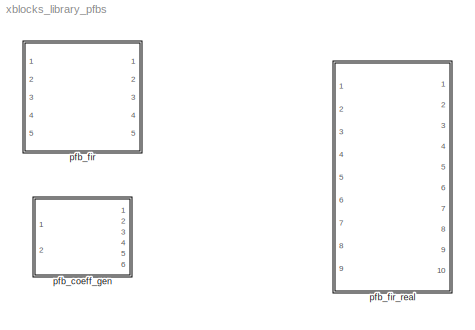
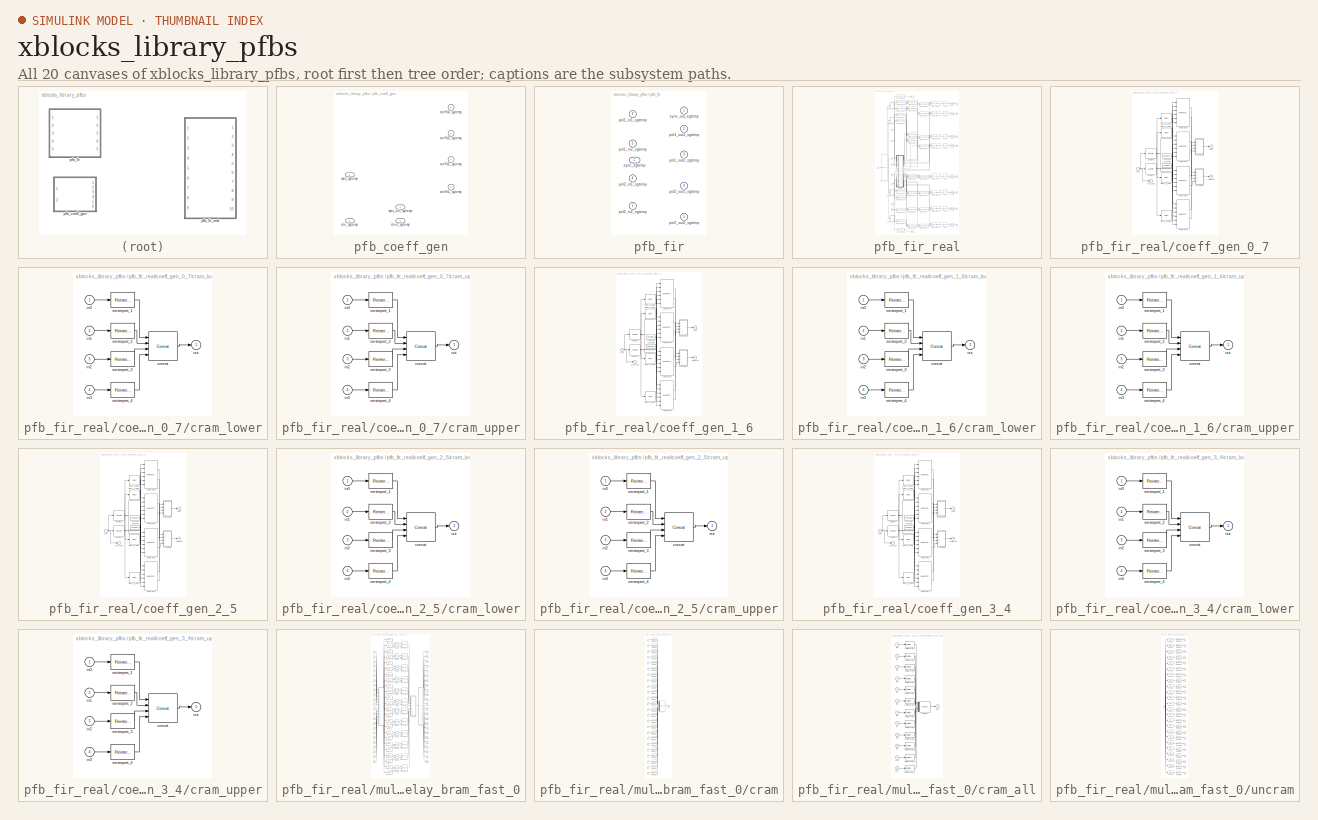
[diagram: thumbnail index - all 20 canvases of the model, root first then tree order]
MODEL xblocks_library_pfbs
KIND library
BLOCK [SubSystem] pfb_coeff_gen
  AttributesFormatString = PFBSize=6, n_inputs=0, taps=4
  FunctionWithSeparateData = off
  MaskCallbackString = ||||||||
  MaskEnableString = on,on,on,on,on,on,on,on,on
  MaskHideContents = off
  MaskIconFrame = on
  MaskIconOpaque = on
  MaskIconRotate = none
  MaskIconUnits = autoscale
  MaskInitialization = config.source = str2func('pfb_coeff_gen_init_xblock');\nconfig.toplevel = gcb;\nconfig.depend = get_dependlist('pfb_coeff_gen');\nset_param(gcb,'LinkStatus','inactive');\nxBlock(config, {config.toplevel, ...\n    PFBSize, ...\n    CoeffBitWidth, ...\n    TotalTaps, ...\n    CoeffDistMem, ...\n    WindowType, ...\n    bram_latency, ...\n    n_inputs, ...\n    nput, ...\n    fwidth});
  MaskPortRotate = default
  MaskPromptString = Size of PFB: (2^? pnts)|Bitwidth of Coefficients:|Total Number of Taps:|Implement Coeff Gen in Distributed Memory|Windowing Function: |BRAM Latency|Number of Simultaneous Inputs: (2^?)|This is input number:|Bin Width (normal=1)
  MaskSelfModifiable = on
  MaskStyleString = edit,edit,edit,edit,edit,edit,edit,edit,edit
  MaskToolTipString = on,on,on,on,on,on,on,on,on
  MaskTunableValueString = on,on,on,on,on,on,on,on,on
  MaskType = pfb_coeff_gen
  MaskValueString = 6|8|4|0|hamming|2|0|0|1
  MaskVariables = PFBSize=@1;CoeffBitWidth=@2;TotalTaps=@3;CoeffDistMem=@4;WindowType=&5;bram_latency=@6;n_inputs=@7;nput=@8;fwidth=@9;
  MaskVisibilityString = on,on,on,on,on,on,on,on,on
  MinAlgLoopOccurrences = off
  Opaque = off
  Ports = [2, 6]
  PropExecContextOutsideSubsystem = off
  RTWSystemCode = Auto
  RequestExecContextInheritance = off
  SID = 5
  UserData = DataTag0
  UserDataPersistent = on
BLOCK [Outport] pfb_coeff_gen/coeffs1_sgtemp
  IconDisplay = Port number
  Port = 3
  SID = 23
BLOCK [Outport] pfb_coeff_gen/coeffs2_sgtemp
  IconDisplay = Port number
  Port = 4
  SID = 26
BLOCK [Outport] pfb_coeff_gen/coeffs3_sgtemp
  IconDisplay = Port number
  Port = 5
  SID = 29
BLOCK [Outport] pfb_coeff_gen/coeffs4_sgtemp
  IconDisplay = Port number
  Port = 6
  SID = 32
BLOCK [Inport] pfb_coeff_gen/din_sgtemp
  IconDisplay = Port number
  OutDataType = sfix(16)
  OutScaling = 2^0
  SID = 1
BLOCK [Outport] pfb_coeff_gen/dout_sgtemp
  IconDisplay = Port number
  OutDataType = sfix(16)
  OutScaling = 2^0
  SID = 16
BLOCK [Outport] pfb_coeff_gen/sync_out_sgtemp
  IconDisplay = Port number
  OutDataType = sfix(16)
  OutScaling = 2^0
  Port = 2
  SID = 17
BLOCK [Inport] pfb_coeff_gen/sync_sgtemp
  IconDisplay = Port number
  OutDataType = sfix(16)
  OutScaling = 2^0
  Port = 2
  SID = 2
BLOCK [SubSystem] pfb_fir
  AttributesFormatString = taps=2, add_latency=1
  FunctionWithSeparateData = off
  MaskCallbackString = |%num_taps = eval(get_param(gcb, 'TotalTaps'));\n%old_vec = eval(get_param(gcb, 'mult_spec'));\n\n%vec = 2.*ones(1,num_taps);\n%old_size = length(old_vec);\n\n%if(old_size <= num_taps), \n%   new_size = old_size;\n%else, \n%    new_size = num_taps;\n%end\n\n%for n = 1:new_size, vec(n) = old_vec(n); end\n%set_param(gcb, 'mult_spec', mat2str(vec));||||||||||||%num_taps = eval(get_param(gcb, 'TotalTa...<+988ch>
  MaskEnableString = on,on,on,on,on,on,on,on,on,on,on,on,on,on,on,off
  MaskHelp = eval('xlWeb(''http://casper.berkeley.edu/wiki/Pfb_fir'')')
  MaskHideContents = off
  MaskIconFrame = on
  MaskIconOpaque = on
  MaskIconRotate = none
  MaskIconUnits = autoscale
  MaskInitialization = config.source = str2func('pfb_fir_init_xblock');\nconfig.toplevel = gcb;\nconfig.depend = get_dependlist('pfb_fir');\nset_param(gcb,'LinkStatus','inactive');\nxBlock(config,{config.toplevel, ...\n    'PFBSize', PFBSize, ...\n    'TotalTaps', TotalTaps, ...\n    'WindowType', WindowType, ...\n    'n_inputs', n_inputs, ...\n    'MakeBiplex', MakeBiplex, ...\n    'BitWidthIn', BitWidthIn, ...\n    'B...<+358ch>
  MaskPortRotate = default
  MaskPromptString = Size of PFB: (2^? pnts)|Total Number of Taps:|Windowing Function: |Number of Simultaneous Inputs: (2^?)|Make Biplex|Input Bitwidth:|Output Bitwidth:|Coefficient Bitwidth:|Use Distributed Memory for Coeffs|Add Latency|Mult Latency|BRAM Latency|Quantization Behavior|Bin Width Scaling (normal=1)|Specify multiplier use (behavioral if not specified)|Multiplier specification (0=core, 1=embedded, 2=behav...<+22ch>
  MaskSelfModifiable = on
  MaskStyleString = edit,edit,popup(bartlett|barthannwin|blackman|blackmanharris|bohamwin|chebwin|flattopwin|gausswin|hamming|hann|kaiser|nuttallwin|parzenwin|rectwin|tukeywin|triang|userwindow),edit,checkbox,edit,edit,edit,checkbox,edit,edit,edit,popup(Truncate|Round  (unbiased: +/- Inf)|Round  (unbiased: Even Values)),edit,checkbox,edit
  MaskToolTipString = on,on,on,on,on,on,on,on,on,on,on,on,on,on,on,on
  MaskTunableValueString = on,on,on,on,on,on,on,on,on,on,on,on,on,on,on,on
  MaskType = pfb_fir
  MaskValueString = 5|2|hamming|1|on|8|18|18|off|1|2|2|Round  (unbiased: +/- Inf)|1|off|[2                                      2]
  MaskVariables = PFBSize=@1;TotalTaps=@2;WindowType=&3;n_inputs=@4;MakeBiplex=@5;BitWidthIn=@6;BitWidthOut=@7;CoeffBitWidth=@8;CoeffDistMem=@9;add_latency=@10;mult_latency=@11;bram_latency=@12;quantization=&13;fwidth=@14;specify_mult=&15;mult_spec=@16;
  MaskVisibilityString = on,on,on,on,on,on,on,on,on,on,on,on,on,on,on,on
  MinAlgLoopOccurrences = off
  Opaque = off
  Ports = [5, 5]
  PropExecContextOutsideSubsystem = off
  RTWSystemCode = Auto
  RequestExecContextInheritance = off
  SID = 6
  UserData = DataTag1
  UserDataPersistent = on
BLOCK [Inport] pfb_fir/pol1_in1_sgtemp
  IconDisplay = Port number
  Port = 2
  SID = 1695
BLOCK [Inport] pfb_fir/pol1_in2_sgtemp
  IconDisplay = Port number
  Port = 3
  SID = 1800
BLOCK [Outport] pfb_fir/pol1_out1_sgtemp
  IconDisplay = Port number
  Port = 2
  SID = 2594
BLOCK [Outport] pfb_fir/pol1_out2_sgtemp
  IconDisplay = Port number
  Port = 3
  SID = 2698
BLOCK [Inport] pfb_fir/pol2_in1_sgtemp
  IconDisplay = Port number
  Port = 4
  SID = 2247
BLOCK [Inport] pfb_fir/pol2_in2_sgtemp
  IconDisplay = Port number
  Port = 5
  SID = 2420
BLOCK [Outport] pfb_fir/pol2_out1_sgtemp
  IconDisplay = Port number
  Port = 4
  SID = 2802
BLOCK [Outport] pfb_fir/pol2_out2_sgtemp
  IconDisplay = Port number
  Port = 5
  SID = 2906
BLOCK [Outport] pfb_fir/sync_out_sgtemp
  IconDisplay = Port number
  SID = 2593
BLOCK [Inport] pfb_fir/sync_sgtemp
  IconDisplay = Port number
  SID = 1
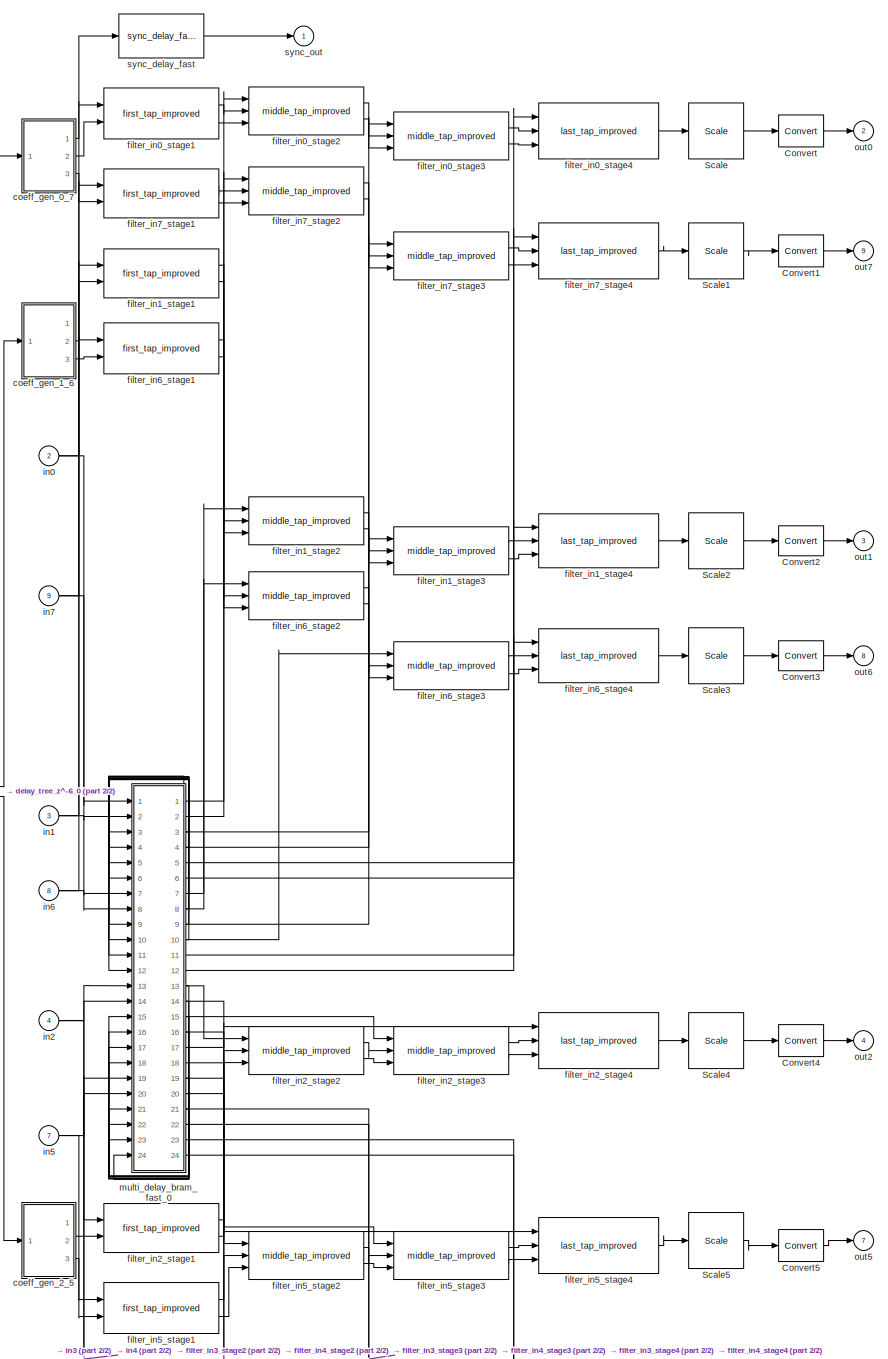
[diagram: pfb_fir_real - part 1/2, most of the canvas]
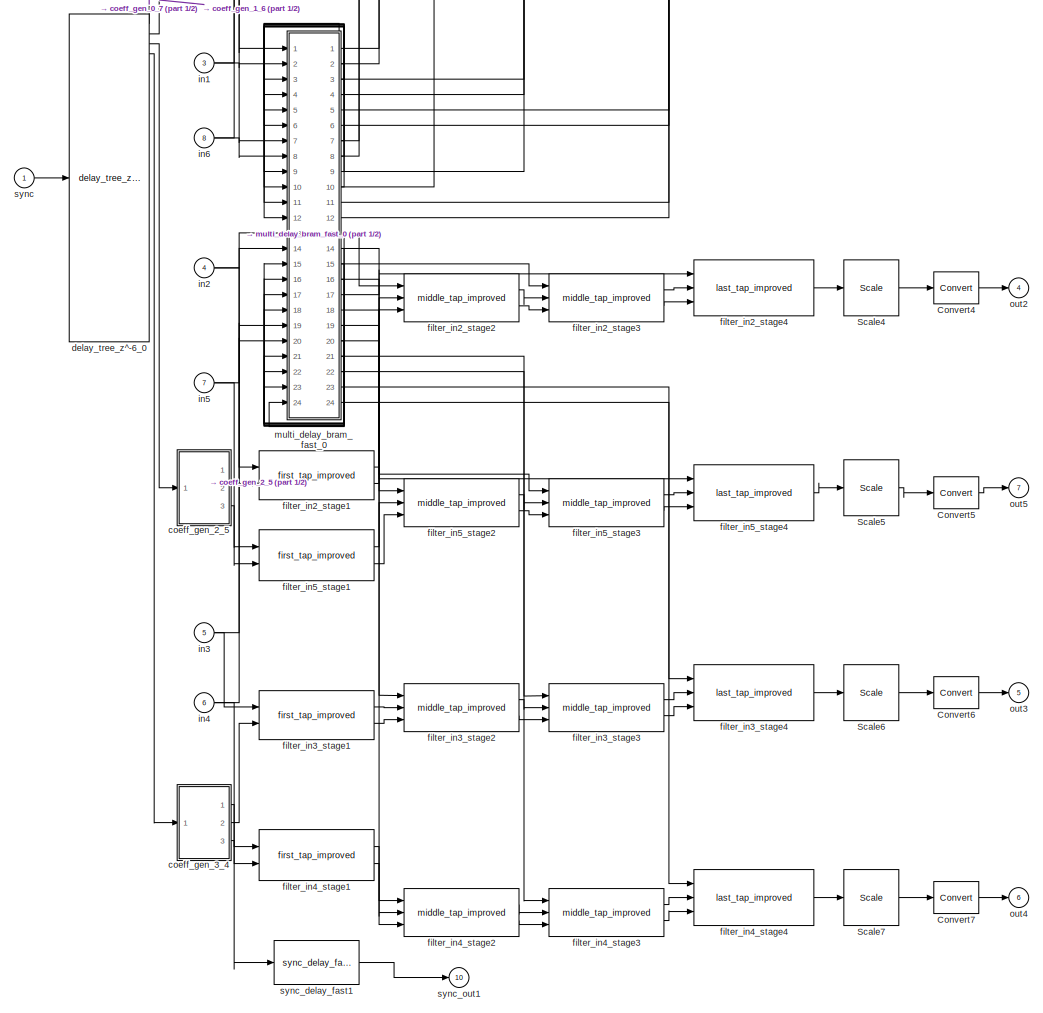
[diagram: pfb_fir_real - part 2/2, full width, bottom band]
BLOCK [SubSystem] pfb_fir_real
  FunctionWithSeparateData = off
  MaskCallbackString = ||||||||||||||||
  MaskEnableString = on,on,on,on,on,on,on,on,on,on,on,on,on,on,on,on,on
  MaskHideContents = off
  MaskIconFrame = on
  MaskIconOpaque = on
  MaskIconRotate = none
  MaskIconUnits = autoscale
  MaskInitialization = global drawing_parameters;\n% drawing_parameters.pfb_size=pfb_size;\n% drawing_parameters.n_sim_inputs=n_sim_inputs;\n% drawing_parameters.n_taps=n_taps;\n% drawing_parameters.data_n_bits=data_n_bits;\n% drawing_parameters.data_bin_pt=data_bin_pt;\n% drawing_parameters.coeff_n_bits=coeff_n_bits;\n% drawing_parameters.coeff_bin_pt=coeff_n_bits-1;\n% drawing_parameters.window_fn=window_fn;\n% drawin...<+646ch>
  MaskPortRotate = default
  MaskPromptString = PFB Size (2^?)|# Simultaneous Inputs (2^?); Max=6|# Taps|Input bit Width|# Coefficient Bits|Output bit width|Window Function|Channel Width|Downscale at end (2^?)|Delay at end?|Use cheap Sync hardware?|Autoplacement Mode?|Optimize parameters for auto-placement? (settings below here ignored)|Register Coefficient Brams?|Register Delay Brams?|Register Delay Counters? (0 or 1)|Pack delays cross-input?
  MaskSelfModifiable = on
  MaskStyleString = edit,edit,edit,edit,edit,edit,popup(bartlett|barthannwin|blackman|blackmanharris|bohamwin|chebwin|flattopwin|gausswin|hamming|hann|kaiser|nuttallwin|parzenwin|rectwin|tukeywin|triang),edit,edit,checkbox,checkbox,popup('Attached to ADC0'|'Attached to ADC1'|'Attached to both ADC0 and ADC1 (interleaved)'),checkbox,checkbox,checkbox,checkbox,checkbox
  MaskToolTipString = on,on,on,on,on,on,on,on,on,on,on,on,on,on,on,on,on
  MaskTunableValueString = on,on,on,on,on,on,on,on,on,on,on,on,on,on,on,on,on
  MaskType = pfb_coeff_gen_dual
  MaskValueString = 14|3|4|18|18|18|hamming|1|1|off|off|'Attached to ADC0'|off|off|off|off|on
  MaskVariables = pfb_size=@1;n_sim_inputs=@2;n_taps=@3;data_n_bits=@4;coeff_n_bits=@5;output_bit_width=@6;window_fn=&7;bin_width=@8;end_scale_val=@9;endDelay=@10;cheap_sync=@11;autoplace_mode=&12;autoplace_optimize=@13;bram_latency_coeff=@14;bram_latency_delay=@15;register_counter=@16;pack_delays=@17;
  MaskVisibilityString = on,on,on,on,on,on,on,on,on,on,on,off,off,on,on,on,on
  MinAlgLoopOccurrences = off
  Opaque = off
  Ports = [9, 10]
  PropExecContextOutsideSubsystem = off
  RTWSystemCode = Auto
  RequestExecContextInheritance = off
  SID = 35
  UserData = DataTag2
  UserDataPersistent = on
BLOCK [Reference] pfb_fir_real/Convert  REF=xbsIndex_r4/Convert
  Ports = [1, 1]
  SID = 1502
  SourceBlock = xbsIndex_r4/Convert
  SourceType = Xilinx Type Converter Block
  arith_type = Signed  (2's comp)
  bin_pt = 17
  block_type = convert
  dbl_ovrd = off
  en = off
  exp_bits = 8
  float_type = Single
  fraction_bits = 24
  gui_display_data_type = Fixed-point
  has_advanced_control = 0
  infoedit = Hardware notes: rounding and saturating require hardware resources; truncating and wrapping do not.
  latency = 0
  n_bits = 18
  overflow = Wrap
  pipeline = off
  quantization = Truncate
  sg_icon_stat = 45,32,1,1,white,blue,0,edca21da,right,,[ ],[ ]
  sg_mask_display = fprintf('','COMMENT: begin icon graphics');\npatch([0 45 45 0 0 ],[0 0 32 32 0 ],[0.77 0.82 0.91 ]);\nplot([0 45 45 0 0 ],[0 0 32 32 0 ]);\npatch([13.1 18.88 22.88 26.88 30.88 22.88 17.1 13.1 ],[20.44 20.44 24.44 20.44 24.44 24.44 24.44 20.44 ],[1 1 1 ]);\npatch([17.1 22.88 18.88 13.1 17.1 ],[16.44 16.44 20.44 20.44 16.44 ],[0.931 0.946 0.973 ]);\npatch([13.1 18.88 22.88 17.1 13.1 ],[12.44 12.44 1...<+314ch>  <repeated x6 — deduplicated; at blocks: Convert, Convert1, Convert4, Convert5, Convert6, Convert7>
  sggui_pos = -1,-1,-1,-1
  xl_area = [0,0,0,0,0,0,0]
  xl_use_area = off
BLOCK [Reference] pfb_fir_real/Convert1  REF=xbsIndex_r4/Convert
  Ports = [1, 1]
  SID = 1503
  SourceBlock = xbsIndex_r4/Convert
  SourceType = Xilinx Type Converter Block
  arith_type = Signed  (2's comp)
  bin_pt = 17
  block_type = convert
  dbl_ovrd = off
  en = off
  exp_bits = 8
  float_type = Single
  fraction_bits = 24
  gui_display_data_type = Fixed-point
  has_advanced_control = 0
  infoedit = Hardware notes: rounding and saturating require hardware resources; truncating and wrapping do not.
  latency = 0
  n_bits = 18
  overflow = Wrap
  pipeline = off
  quantization = Truncate
  sg_icon_stat = 45,32,1,1,white,blue,0,edca21da,right,,[ ],[ ]
  sggui_pos = -1,-1,-1,-1
  xl_area = [0,0,0,0,0,0,0]
  xl_use_area = off
BLOCK [Reference] pfb_fir_real/Convert2  REF=xbsIndex_r4/Convert
  Ports = [1, 1]
  SID = 1553
  SourceBlock = xbsIndex_r4/Convert
  SourceType = Xilinx Type Converter Block
  arith_type = Signed  (2's comp)
  bin_pt = 17
  block_type = convert
  dbl_ovrd = off
  en = off
  exp_bits = 8
  float_type = Single
  fraction_bits = 24
  gui_display_data_type = Fixed-point
  has_advanced_control = 0
  infoedit = Hardware notes: rounding and saturating require hardware resources; truncating and wrapping do not.
  latency = 0
  n_bits = 18
  overflow = Wrap
  pipeline = off
  quantization = Truncate
  sg_icon_stat = 45,30,1,1,white,blue,0,edca21da,right,,[ ],[ ]
  sg_mask_display = fprintf('','COMMENT: begin icon graphics');\npatch([0 45 45 0 0 ],[0 0 30 30 0 ],[0.77 0.82 0.91 ]);\nplot([0 45 45 0 0 ],[0 0 30 30 0 ]);\npatch([13.1 18.88 22.88 26.88 30.88 22.88 17.1 13.1 ],[19.44 19.44 23.44 19.44 23.44 23.44 23.44 19.44 ],[1 1 1 ]);\npatch([17.1 22.88 18.88 13.1 17.1 ],[15.44 15.44 19.44 19.44 15.44 ],[0.931 0.946 0.973 ]);\npatch([13.1 18.88 22.88 17.1 13.1 ],[11.44 11.44 1...<+314ch>
  sggui_pos = -1,-1,-1,-1
  xl_area = [0,0,0,0,0,0,0]
  xl_use_area = off
BLOCK [Reference] pfb_fir_real/Convert3  REF=xbsIndex_r4/Convert
  Ports = [1, 1]
  SID = 1554
  SourceBlock = xbsIndex_r4/Convert
  SourceType = Xilinx Type Converter Block
  arith_type = Signed  (2's comp)
  bin_pt = 17
  block_type = convert
  dbl_ovrd = off
  en = off
  exp_bits = 8
  float_type = Single
  fraction_bits = 24
  gui_display_data_type = Fixed-point
  has_advanced_control = 0
  infoedit = Hardware notes: rounding and saturating require hardware resources; truncating and wrapping do not.
  latency = 0
  n_bits = 18
  overflow = Wrap
  pipeline = off
  quantization = Truncate
  sg_icon_stat = 45,30,1,1,white,blue,0,edca21da,right,,[ ],[ ]
  sg_mask_display = fprintf('','COMMENT: begin icon graphics');\npatch([0 45 45 0 0 ],[0 0 30 30 0 ],[0.77 0.82 0.91 ]);\nplot([0 45 45 0 0 ],[0 0 30 30 0 ]);\npatch([13.1 18.88 22.88 26.88 30.88 22.88 17.1 13.1 ],[19.44 19.44 23.44 19.44 23.44 23.44 23.44 19.44 ],[1 1 1 ]);\npatch([17.1 22.88 18.88 13.1 17.1 ],[15.44 15.44 19.44 19.44 15.44 ],[0.931 0.946 0.973 ]);\npatch([13.1 18.88 22.88 17.1 13.1 ],[11.44 11.44 1...<+314ch>
  sggui_pos = -1,-1,-1,-1
  xl_area = [0,0,0,0,0,0,0]
  xl_use_area = off
BLOCK [Reference] pfb_fir_real/Convert4  REF=xbsIndex_r4/Convert
  Ports = [1, 1]
  SID = 1604
  SourceBlock = xbsIndex_r4/Convert
  SourceType = Xilinx Type Converter Block
  arith_type = Signed  (2's comp)
  bin_pt = 17
  block_type = convert
  dbl_ovrd = off
  en = off
  exp_bits = 8
  float_type = Single
  fraction_bits = 24
  gui_display_data_type = Fixed-point
  has_advanced_control = 0
  infoedit = Hardware notes: rounding and saturating require hardware resources; truncating and wrapping do not.
  latency = 0
  n_bits = 18
  overflow = Wrap
  pipeline = off
  quantization = Truncate
  sg_icon_stat = 45,32,1,1,white,blue,0,edca21da,right,,[ ],[ ]
  sggui_pos = -1,-1,-1,-1
  xl_area = [0,0,0,0,0,0,0]
  xl_use_area = off
BLOCK [Reference] pfb_fir_real/Convert5  REF=xbsIndex_r4/Convert
  Ports = [1, 1]
  SID = 1605
  SourceBlock = xbsIndex_r4/Convert
  SourceType = Xilinx Type Converter Block
  arith_type = Signed  (2's comp)
  bin_pt = 17
  block_type = convert
  dbl_ovrd = off
  en = off
  exp_bits = 8
  float_type = Single
  fraction_bits = 24
  gui_display_data_type = Fixed-point
  has_advanced_control = 0
  infoedit = Hardware notes: rounding and saturating require hardware resources; truncating and wrapping do not.
  latency = 0
  n_bits = 18
  overflow = Wrap
  pipeline = off
  quantization = Truncate
  sg_icon_stat = 45,32,1,1,white,blue,0,edca21da,right,,[ ],[ ]
  sggui_pos = -1,-1,-1,-1
  xl_area = [0,0,0,0,0,0,0]
  xl_use_area = off
BLOCK [Reference] pfb_fir_real/Convert6  REF=xbsIndex_r4/Convert
  Ports = [1, 1]
  SID = 1655
  SourceBlock = xbsIndex_r4/Convert
  SourceType = Xilinx Type Converter Block
  arith_type = Signed  (2's comp)
  bin_pt = 17
  block_type = convert
  dbl_ovrd = off
  en = off
  exp_bits = 8
  float_type = Single
  fraction_bits = 24
  gui_display_data_type = Fixed-point
  has_advanced_control = 0
  infoedit = Hardware notes: rounding and saturating require hardware resources; truncating and wrapping do not.
  latency = 0
  n_bits = 18
  overflow = Wrap
  pipeline = off
  quantization = Truncate
  sg_icon_stat = 45,32,1,1,white,blue,0,edca21da,right,,[ ],[ ]
  sggui_pos = -1,-1,-1,-1
  xl_area = [0,0,0,0,0,0,0]
  xl_use_area = off
BLOCK [Reference] pfb_fir_real/Convert7  REF=xbsIndex_r4/Convert
  Ports = [1, 1]
  SID = 1656
  SourceBlock = xbsIndex_r4/Convert
  SourceType = Xilinx Type Converter Block
  arith_type = Signed  (2's comp)
  bin_pt = 17
  block_type = convert
  dbl_ovrd = off
  en = off
  exp_bits = 8
  float_type = Single
  fraction_bits = 24
  gui_display_data_type = Fixed-point
  has_advanced_control = 0
  infoedit = Hardware notes: rounding and saturating require hardware resources; truncating and wrapping do not.
  latency = 0
  n_bits = 18
  overflow = Wrap
  pipeline = off
  quantization = Truncate
  sg_icon_stat = 45,32,1,1,white,blue,0,edca21da,right,,[ ],[ ]
  sggui_pos = -1,-1,-1,-1
  xl_area = [0,0,0,0,0,0,0]
  xl_use_area = off
BLOCK [Reference] pfb_fir_real/Scale  REF=xbsIndex_r4/Scale
  Ports = [1, 1]
  SID = 1500
  SourceBlock = xbsIndex_r4/Scale
  SourceType = Xilinx Input Scaler Block
  block_type = scale
  dbl_ovrd = off
  has_advanced_control = 0
  infoedit = Scales input by a power of two by adjusting the binary point position.<br><br>Hardware notes: In hardware this block costs nothing.
  scale_factor = -1
  sg_icon_stat = 55,56,1,1,white,blue,0,315b7d78,right,,[ ],[ ]
  sg_mask_display = fprintf('','COMMENT: begin icon graphics');\npatch([0 55 55 0 0 ],[0 0 56 56 0 ],[0.77 0.82 0.91 ]);\nplot([0 55 55 0 0 ],[0 0 56 56 0 ]);\npatch([11.425 21.54 28.54 35.54 42.54 28.54 18.425 11.425 ],[35.77 35.77 42.77 35.77 42.77 42.77 42.77 35.77 ],[1 1 1 ]);\npatch([18.425 28.54 21.54 11.425 18.425 ],[28.77 28.77 35.77 35.77 28.77 ],[0.931 0.946 0.973 ]);\npatch([11.425 21.54 28.54 18.425 11.42...<+350ch>  <repeated x8 — deduplicated; at blocks: Scale, Scale1, Scale2, Scale3, Scale4, Scale5, Scale6, Scale7>
  sggui_pos = -1,-1,-1,-1
BLOCK [Reference] pfb_fir_real/Scale1  REF=xbsIndex_r4/Scale
  Ports = [1, 1]
  SID = 1501
  SourceBlock = xbsIndex_r4/Scale
  SourceType = Xilinx Input Scaler Block
  block_type = scale
  dbl_ovrd = off
  has_advanced_control = 0
  infoedit = Scales input by a power of two by adjusting the binary point position.<br><br>Hardware notes: In hardware this block costs nothing.
  scale_factor = -1
  sg_icon_stat = 55,56,1,1,white,blue,0,315b7d78,right,,[ ],[ ]
  sggui_pos = -1,-1,-1,-1
BLOCK [Reference] pfb_fir_real/Scale2  REF=xbsIndex_r4/Scale
  Ports = [1, 1]
  SID = 1551
  SourceBlock = xbsIndex_r4/Scale
  SourceType = Xilinx Input Scaler Block
  block_type = scale
  dbl_ovrd = off
  has_advanced_control = 0
  infoedit = Scales input by a power of two by adjusting the binary point position.<br><br>Hardware notes: In hardware this block costs nothing.
  scale_factor = -1
  sg_icon_stat = 55,56,1,1,white,blue,0,315b7d78,right,,[ ],[ ]
  sggui_pos = -1,-1,-1,-1
BLOCK [Reference] pfb_fir_real/Scale3  REF=xbsIndex_r4/Scale
  Ports = [1, 1]
  SID = 1552
  SourceBlock = xbsIndex_r4/Scale
  SourceType = Xilinx Input Scaler Block
  block_type = scale
  dbl_ovrd = off
  has_advanced_control = 0
  infoedit = Scales input by a power of two by adjusting the binary point position.<br><br>Hardware notes: In hardware this block costs nothing.
  scale_factor = -1
  sg_icon_stat = 55,56,1,1,white,blue,0,315b7d78,right,,[ ],[ ]
  sggui_pos = -1,-1,-1,-1
BLOCK [Reference] pfb_fir_real/Scale4  REF=xbsIndex_r4/Scale
  Ports = [1, 1]
  SID = 1602
  SourceBlock = xbsIndex_r4/Scale
  SourceType = Xilinx Input Scaler Block
  block_type = scale
  dbl_ovrd = off
  has_advanced_control = 0
  infoedit = Scales input by a power of two by adjusting the binary point position.<br><br>Hardware notes: In hardware this block costs nothing.
  scale_factor = -1
  sg_icon_stat = 55,56,1,1,white,blue,0,315b7d78,right,,[ ],[ ]
  sggui_pos = -1,-1,-1,-1
BLOCK [Reference] pfb_fir_real/Scale5  REF=xbsIndex_r4/Scale
  Ports = [1, 1]
  SID = 1603
  SourceBlock = xbsIndex_r4/Scale
  SourceType = Xilinx Input Scaler Block
  block_type = scale
  dbl_ovrd = off
  has_advanced_control = 0
  infoedit = Scales input by a power of two by adjusting the binary point position.<br><br>Hardware notes: In hardware this block costs nothing.
  scale_factor = -1
  sg_icon_stat = 55,56,1,1,white,blue,0,315b7d78,right,,[ ],[ ]
  sggui_pos = -1,-1,-1,-1
BLOCK [Reference] pfb_fir_real/Scale6  REF=xbsIndex_r4/Scale
  Ports = [1, 1]
  SID = 1653
  SourceBlock = xbsIndex_r4/Scale
  SourceType = Xilinx Input Scaler Block
  block_type = scale
  dbl_ovrd = off
  has_advanced_control = 0
  infoedit = Scales input by a power of two by adjusting the binary point position.<br><br>Hardware notes: In hardware this block costs nothing.
  scale_factor = -1
  sg_icon_stat = 55,56,1,1,white,blue,0,315b7d78,right,,[ ],[ ]
  sggui_pos = -1,-1,-1,-1
BLOCK [Reference] pfb_fir_real/Scale7  REF=xbsIndex_r4/Scale
  Ports = [1, 1]
  SID = 1654
  SourceBlock = xbsIndex_r4/Scale
  SourceType = Xilinx Input Scaler Block
  block_type = scale
  dbl_ovrd = off
  has_advanced_control = 0
  infoedit = Scales input by a power of two by adjusting the binary point position.<br><br>Hardware notes: In hardware this block costs nothing.
  scale_factor = -1
  sg_icon_stat = 55,56,1,1,white,blue,0,315b7d78,right,,[ ],[ ]
  sggui_pos = -1,-1,-1,-1
BLOCK [SubSystem] pfb_fir_real/coeff_gen_0_7
  FunctionWithSeparateData = off
  MaskHideContents = off
  MinAlgLoopOccurrences = off
  Opaque = off
  Ports = [1, 3]
  PropExecContextOutsideSubsystem = off
  RTWSystemCode = Auto
  RequestExecContextInheritance = off
  SID = 1204
BLOCK [Reference] pfb_fir_real/coeff_gen_0_7/Counter0  REF=xbsIndex_r4/Counter
  Ports = [1, 1]
  SID = 1211
  SourceBlock = xbsIndex_r4/Counter
  SourceType = Xilinx Counter Block
  arith_type = Unsigned
  bin_pt = 0
  block_type = counter
  cnt_by_val = 1
  cnt_to = Inf
  cnt_type = Free Running
  dbl_ovrd = off
  en = off
  explicit_period = on
  has_advanced_control = 0
  implementation = Fabric
  infoedit = Hardware notes: Free running counters are the least expensive in hardware.  A count limited counter is implemented by combining a counter with a comparator.
  load_pin = off
  n_bits = 11
  operation = Up
  period = 1
  rst = on
  sg_icon_stat = 60,60,1,1,white,blue,0,803eba70,right,,[ ],[ ]
  sg_mask_display = fprintf('','COMMENT: begin icon graphics');\npatch([0 60 60 0 0 ],[0 0 60 60 0 ],[0.77 0.82 0.91 ]);\nplot([0 60 60 0 0 ],[0 0 60 60 0 ]);\npatch([12.2 23.76 31.76 39.76 47.76 31.76 20.2 12.2 ],[38.88 38.88 46.88 38.88 46.88 46.88 46.88 38.88 ],[1 1 1 ]);\npatch([20.2 31.76 23.76 12.2 20.2 ],[30.88 30.88 38.88 38.88 30.88 ],[0.931 0.946 0.973 ]);\npatch([12.2 23.76 31.76 20.2 12.2 ],[22.88 22.88 3...<+379ch>  <repeated x8 — deduplicated; at blocks: Counter0, Counter1>
  sggui_pos = -1,-1,-1,-1
  start_count = 8
  use_behavioral_HDL = off
  xl_area = [0,0,0,0,0,0,0]
  xl_use_area = off
BLOCK [Reference] pfb_fir_real/coeff_gen_0_7/Counter1  REF=xbsIndex_r4/Counter
  Ports = [1, 1]
  SID = 1212
  SourceBlock = xbsIndex_r4/Counter
  SourceType = Xilinx Counter Block
  arith_type = Unsigned
  bin_pt = 0
  block_type = counter
  cnt_by_val = 1
  cnt_to = Inf
  cnt_type = Free Running
  dbl_ovrd = off
  en = off
  explicit_period = on
  has_advanced_control = 0
  implementation = Fabric
  infoedit = Hardware notes: Free running counters are the least expensive in hardware.  A count limited counter is implemented by combining a counter with a comparator.
  load_pin = off
  n_bits = 11
  operation = Down
  period = 1
  rst = on
  sg_icon_stat = 60,60,1,1,white,blue,0,d47ba05d,right,,[ ],[ ]
  sggui_pos = -1,-1,-1,-1
  start_count = 2039
  use_behavioral_HDL = off
  xl_area = [0,0,0,0,0,0,0]
  xl_use_area = off
BLOCK [Outport] pfb_fir_real/coeff_gen_0_7/coeff
  IconDisplay = Port number
  Port = 2
  SID = 1207
BLOCK [Reference] pfb_fir_real/coeff_gen_0_7/coeff_ram_1  REF=xbsIndex_r4/Dual Port RAM
  Ports = [6, 2]
  SID = 1214
  SourceBlock = xbsIndex_r4/Dual Port RAM
  SourceType = Xilinx Dual Port Random Access Memory Block
  block_type = dpram
  dbl_ovrd = off
  depth = 2048
  distributed_mem = Block RAM
  en_a = off
  en_b = off
  has_advanced_control = 0
  initVector = [-1.22072174986674e-006 -2.07573634838521e-005 -4.03037029782619e-005 -5.98598996980381e-005 -7.94261132606548e-005 -9.90025034347064e-005 -0.000118589230138382 -0.00013818645343805 -0.000157794333546782 -0.000177413030822893 -0.000197042705768457 -0.000216683519027889 -0.000236335631386401 -0.00025599920376858 -0.000275674397236896 -0.000295361372990216 -0.000315060292362373 -0.00033477131682061 ...<+40833ch>
  init_a = 0
  init_b = 0
  latency = 2
  optimize = Area
  rst_a = off
  rst_b = off
  sg_icon_stat = 75,165,6,2,white,blue,0,28af736d,right,,[ ],[ ]
  sg_mask_display = fprintf('','COMMENT: begin icon graphics');\npatch([0 75 75 0 0 ],[0 0 165 165 0 ],[0.77 0.82 0.91 ]);\nplot([0 75 75 0 0 ],[0 0 165 165 0 ]);\npatch([14.75 29.2 39.2 49.2 59.2 39.2 24.75 14.75 ],[93.1 93.1 103.1 93.1 103.1 103.1 103.1 93.1 ],[1 1 1 ]);\npatch([24.75 39.2 29.2 14.75 24.75 ],[83.1 83.1 93.1 93.1 83.1 ],[0.931 0.946 0.973 ]);\npatch([14.75 29.2 39.2 24.75 14.75 ],[73.1 73.1 83.1 83....<+615ch>  <repeated x16 — deduplicated; at blocks: coeff_ram_1, coeff_ram_2, coeff_ram_3, coeff_ram_4>
  sggui_pos = -1,-1,-1,-1
  use_rpm = on
  write_mode_A = No Read On Write
  write_mode_B = No Read On Write
  xl_area = [0,0,0,0,0,0,0]
  xl_use_area = off
BLOCK [Reference] pfb_fir_real/coeff_gen_0_7/coeff_ram_2  REF=xbsIndex_r4/Dual Port RAM
  Ports = [6, 2]
  SID = 1216
  SourceBlock = xbsIndex_r4/Dual Port RAM
  SourceType = Xilinx Dual Port Random Access Memory Block
  block_type = dpram
  dbl_ovrd = off
  depth = 2048
  distributed_mem = Block RAM
  en_a = off
  en_b = off
  has_advanced_control = 0
  initVector = [1.64803315783465e-005 0.000280485521810809 0.000545093027402636 0.00081030310745065 0.00107611601953105 0.00134253201969671 0.00160955136247522 0.00187717430086683 0.00214540108634176 0.00241423196883855 0.00268366719676137 0.00295370701697797 0.00322435167481777 0.00349560141406919 0.00376745647697767 0.00403991710424374 0.00431298353502034 0.00458665600691093 0.00486093475596747 0.0051358200166...<+36585ch>
  init_a = 0
  init_b = 0
  latency = 2
  optimize = Area
  rst_a = off
  rst_b = off
  sg_icon_stat = 75,165,6,2,white,blue,0,28af736d,right,,[ ],[ ]
  sggui_pos = -1,-1,-1,-1
  use_rpm = on
  write_mode_A = No Read On Write
  write_mode_B = No Read On Write
  xl_area = [0,0,0,0,0,0,0]
  xl_use_area = off
BLOCK [Reference] pfb_fir_real/coeff_gen_0_7/coeff_ram_3  REF=xbsIndex_r4/Dual Port RAM
  Ports = [6, 2]
  SID = 1218
  SourceBlock = xbsIndex_r4/Dual Port RAM
  SourceType = Xilinx Dual Port Random Access Memory Block
  block_type = dpram
  dbl_ovrd = off
  depth = 2048
  distributed_mem = Block RAM
  en_a = off
  en_b = off
  has_advanced_control = 0
  initVector = [0.999999997939492 0.999999404513317 0.999997756108682 0.999995052729556 0.999991294382447 0.999986481076405 0.99998061282302 0.999973689636421 0.999965711533277 0.999956678532798 0.999946590656734 0.999935447929374 0.999923250377545 0.999909998030619 0.999895690920501 0.999880329081641 0.999863912551025 0.999846441368179 0.999827915575169 0.9998083352166 0.999787700339613 0.999766010993892 0.9997...<+36578ch>
  init_a = 0
  init_b = 0
  latency = 2
  optimize = Area
  rst_a = off
  rst_b = off
  sg_icon_stat = 75,165,6,2,white,blue,0,28af736d,right,,[ ],[ ]
  sggui_pos = -1,-1,-1,-1
  use_rpm = on
  write_mode_A = No Read On Write
  write_mode_B = No Read On Write
  xl_area = [0,0,0,0,0,0,0]
  xl_use_area = off
BLOCK [Reference] pfb_fir_real/coeff_gen_0_7/coeff_ram_4  REF=xbsIndex_r4/Dual Port RAM
  Ports = [6, 2]
  SID = 1220
  SourceBlock = xbsIndex_r4/Dual Port RAM
  SourceType = Xilinx Dual Port Random Access Memory Block
  block_type = dpram
  dbl_ovrd = off
  depth = 2048
  distributed_mem = Block RAM
  en_a = off
  en_b = off
  has_advanced_control = 0
  initVector = [-1.64779798652932e-005 -0.000279805876911002 -0.000542532014217755 -0.000804656655620616 -0.00106618006646648 -0.00132710251361138 -0.00158742426541843 -0.00184714559175581 -0.00210626676399397 -0.00236478805500397 -0.00262270973915464 -0.0028800320923106 -0.00313675539183012 -0.00339287991656244 -0.00364840594684571 -0.00390333376450485 -0.00415766365284889 -0.00441139589666884 -0.00466453078223...<+40816ch>
  init_a = 0
  init_b = 0
  latency = 2
  optimize = Area
  rst_a = off
  rst_b = off
  sg_icon_stat = 75,165,6,2,white,blue,0,28af736d,right,,[ ],[ ]
  sggui_pos = -1,-1,-1,-1
  use_rpm = on
  write_mode_A = No Read On Write
  write_mode_B = No Read On Write
  xl_area = [0,0,0,0,0,0,0]
  xl_use_area = off
BLOCK [Outport] pfb_fir_real/coeff_gen_0_7/coeff_rev
  IconDisplay = Port number
  Port = 3
  SID = 1208
BLOCK [Reference] pfb_fir_real/coeff_gen_0_7/const_din  REF=xbsIndex_r4/Constant
  Ports = [0, 1]
  SID = 1210
  SourceBlock = xbsIndex_r4/Constant
  SourceType = Xilinx Constant Block Block
  arith_type = Signed (2's comp)
  bin_pt = 17
  block_type = constant
  carry = CIN
  const = 0
  dbl_ovrd = off
  dsp48_infoedit = The use of this block for DSP48 instructions is deprecated.  Please use the Opmode block.
  equ = P=C
  exp_width = 8
  explicit_period = on
  frac_width = 24
  gui_display_data_type = Fixed-point
  has_advanced_control = 0
  inp1 = P
  inp2 = PCIN>>17
  n_bits = 18
  opr = +
  opselect = C
  period = 1
  preci_type = Single
  sg_icon_stat = 55,26,0,1,white,blue,0,bf4ddd8b,right,,[ ],[ ]
  sg_mask_display = fprintf('','COMMENT: begin icon graphics');\npatch([0 55 55 0 0 ],[0 0 26 26 0 ],[0.77 0.82 0.91 ]);\nplot([0 55 55 0 0 ],[0 0 26 26 0 ]);\npatch([20.325 24.66 27.66 30.66 33.66 27.66 23.325 20.325 ],[16.33 16.33 19.33 16.33 19.33 19.33 19.33 16.33 ],[1 1 1 ]);\npatch([23.325 27.66 24.66 20.325 23.325 ],[13.33 13.33 16.33 16.33 13.33 ],[0.931 0.946 0.973 ]);\npatch([20.325 24.66 27.66 23.325 20.32...<+333ch>  <repeated x8 — deduplicated; at blocks: const_din, const_we>
  sggui_pos = -1,-1,-1,-1
BLOCK [Reference] pfb_fir_real/coeff_gen_0_7/const_we  REF=xbsIndex_r4/Constant
  Ports = [0, 1]
  SID = 1209
  SourceBlock = xbsIndex_r4/Constant
  SourceType = Xilinx Constant Block Block
  arith_type = Boolean
  bin_pt = 14
  block_type = constant
  carry = CIN
  const = 0
  dbl_ovrd = off
  dsp48_infoedit = The use of this block for DSP48 instructions is deprecated.  Please use the Opmode block.
  equ = P=C
  exp_width = 8
  explicit_period = on
  frac_width = 24
  gui_display_data_type = Fixed-point
  has_advanced_control = 0
  inp1 = P
  inp2 = PCIN>>17
  n_bits = 16
  opr = +
  opselect = C
  period = 1
  preci_type = Single
  sg_icon_stat = 55,26,0,1,white,blue,0,bf4ddd8b,right,,[ ],[ ]
  sggui_pos = -1,-1,-1,-1
BLOCK [SubSystem] pfb_fir_real/coeff_gen_0_7/cram_lower
  FunctionWithSeparateData = off
  MaskHideContents = off
  MinAlgLoopOccurrences = off
  Opaque = off
  Ports = [4, 1]
  PropExecContextOutsideSubsystem = off
  RTWSystemCode = Auto
  RequestExecContextInheritance = off
  SID = 1232
BLOCK [Reference] pfb_fir_real/coeff_gen_0_7/cram_lower/concat  REF=xbsIndex_r4/Concat
  Ports = [4, 1]
  SID = 1242
  SourceBlock = xbsIndex_r4/Concat
  SourceType = Xilinx Bus Concatenator Block
  block_type = concat
  dbl_ovrd = off
  has_advanced_control = 0
  infoedit = Concatenates two or more inputs.  Output will be cast to an unsigned value with the binary point at zero.
  num_inputs = 4
  sg_icon_stat = 60,61,4,1,white,blue,0,47d3d416,right,,[ ],[ ]
  sg_mask_display = fprintf('','COMMENT: begin icon graphics');\npatch([0 60 60 0 0 ],[0 0 61 61 0 ],[0.77 0.82 0.91 ]);\nplot([0 60 60 0 0 ],[0 0 61 61 0 ]);\npatch([12.2 23.76 31.76 39.76 47.76 31.76 20.2 12.2 ],[38.88 38.88 46.88 38.88 46.88 46.88 46.88 38.88 ],[1 1 1 ]);\npatch([20.2 31.76 23.76 12.2 20.2 ],[30.88 30.88 38.88 38.88 30.88 ],[0.931 0.946 0.973 ]);\npatch([12.2 23.76 31.76 20.2 12.2 ],[22.88 22.88 3...<+421ch>  <repeated x8 — deduplicated; at blocks: concat>
  sggui_pos = -1,-1,-1,-1
BLOCK [Inport] pfb_fir_real/coeff_gen_0_7/cram_lower/in0
  IconDisplay = Port number
  SID = 1233
BLOCK [Inport] pfb_fir_real/coeff_gen_0_7/cram_lower/in1
  IconDisplay = Port number
  Port = 2
  SID = 1234
BLOCK [Inport] pfb_fir_real/coeff_gen_0_7/cram_lower/in2
  IconDisplay = Port number
  Port = 3
  SID = 1235
BLOCK [Inport] pfb_fir_real/coeff_gen_0_7/cram_lower/in3
  IconDisplay = Port number
  Port = 4
  SID = 1236
BLOCK [Outport] pfb_fir_real/coeff_gen_0_7/cram_lower/out
  IconDisplay = Port number
  SID = 1237
BLOCK [Reference] pfb_fir_real/coeff_gen_0_7/cram_lower/reinterpret_1  REF=xbsIndex_r4/Reinterpret
  Ports = [1, 1]
  SID = 1238
  SourceBlock = xbsIndex_r4/Reinterpret
  SourceType = Xilinx Type Reinterpreter Block
  arith_type = Unsigned
  bin_pt = 0
  block_type = reinterpret
  force_arith_type = on
  force_bin_pt = on
  has_advanced_control = 0
  infoedit = Changes signal type without altering the binary representation.   You can change the signal between signed and unsigned, and relocate the binary point.<br><br>Hardware notes: In hardware this block costs nothing.<br><br>Example:  Suppose the input is 6 bits wide, signed, with 2 fractional bits, and the output is forced to unsigned with 0 fractional bits.  Then an input of -2.0 (1110.00 in binary 2...<+58ch>  <repeated x92 — deduplicated; at blocks: reinterpret_1, reinterpret_2, reinterpret_3, reinterpret_4, reinterpret_10, reinterpret_11, reinterpret_12, reinterpret_13, reinterpret_14, reinterpret_15, reinterpret_16, reinterpret_17, reinterpret_18, reinterpret_19, reinterpret_20, reinterpret_21, +32 more>
  sg_icon_stat = 50,32,1,1,white,blue,0,6b04d0b0,right,,[ ],[ ]
  sg_mask_display = fprintf('','COMMENT: begin icon graphics');\npatch([0 50 50 0 0 ],[0 0 32 32 0 ],[0.77 0.82 0.91 ]);\nplot([0 50 50 0 0 ],[0 0 32 32 0 ]);\npatch([16.1 21.88 25.88 29.88 33.88 25.88 20.1 16.1 ],[20.44 20.44 24.44 20.44 24.44 24.44 24.44 20.44 ],[1 1 1 ]);\npatch([20.1 25.88 21.88 16.1 20.1 ],[16.44 16.44 20.44 20.44 16.44 ],[0.931 0.946 0.973 ]);\npatch([16.1 21.88 25.88 20.1 16.1 ],[12.44 12.44 1...<+306ch>  <repeated x92 — deduplicated; at blocks: reinterpret_1, reinterpret_2, reinterpret_3, reinterpret_4, reinterpret_10, reinterpret_11, reinterpret_12, reinterpret_13, reinterpret_14, reinterpret_15, reinterpret_16, reinterpret_17, reinterpret_18, reinterpret_19, reinterpret_20, reinterpret_21, +32 more>
  sggui_pos = -1,-1,-1,-1
BLOCK [Reference] pfb_fir_real/coeff_gen_0_7/cram_lower/reinterpret_2  REF=xbsIndex_r4/Reinterpret
  Ports = [1, 1]
  SID = 1239
  SourceBlock = xbsIndex_r4/Reinterpret
  SourceType = Xilinx Type Reinterpreter Block
  arith_type = Unsigned
  bin_pt = 0
  block_type = reinterpret
  force_arith_type = on
  force_bin_pt = on
  has_advanced_control = 0
  sg_icon_stat = 50,32,1,1,white,blue,0,6b04d0b0,right,,[ ],[ ]
  sggui_pos = -1,-1,-1,-1
BLOCK [Reference] pfb_fir_real/coeff_gen_0_7/cram_lower/reinterpret_3  REF=xbsIndex_r4/Reinterpret
  Ports = [1, 1]
  SID = 1240
  SourceBlock = xbsIndex_r4/Reinterpret
  SourceType = Xilinx Type Reinterpreter Block
  arith_type = Unsigned
  bin_pt = 0
  block_type = reinterpret
  force_arith_type = on
  force_bin_pt = on
  has_advanced_control = 0
  sg_icon_stat = 50,32,1,1,white,blue,0,6b04d0b0,right,,[ ],[ ]
  sggui_pos = -1,-1,-1,-1
BLOCK [Reference] pfb_fir_real/coeff_gen_0_7/cram_lower/reinterpret_4  REF=xbsIndex_r4/Reinterpret
  Ports = [1, 1]
  SID = 1241
  SourceBlock = xbsIndex_r4/Reinterpret
  SourceType = Xilinx Type Reinterpreter Block
  arith_type = Unsigned
  bin_pt = 0
  block_type = reinterpret
  force_arith_type = on
  force_bin_pt = on
  has_advanced_control = 0
  sg_icon_stat = 50,32,1,1,white,blue,0,6b04d0b0,right,,[ ],[ ]
  sggui_pos = -1,-1,-1,-1
BLOCK [SubSystem] pfb_fir_real/coeff_gen_0_7/cram_upper
  FunctionWithSeparateData = off
  MaskHideContents = off
  MinAlgLoopOccurrences = off
  Opaque = off
  Ports = [4, 1]
  PropExecContextOutsideSubsystem = off
  RTWSystemCode = Auto
  RequestExecContextInheritance = off
  SID = 1221
BLOCK [Reference] pfb_fir_real/coeff_gen_0_7/cram_upper/concat  REF=xbsIndex_r4/Concat
  Ports = [4, 1]
  SID = 1231
  SourceBlock = xbsIndex_r4/Concat
  SourceType = Xilinx Bus Concatenator Block
  block_type = concat
  dbl_ovrd = off
  has_advanced_control = 0
  infoedit = Concatenates two or more inputs.  Output will be cast to an unsigned value with the binary point at zero.
  num_inputs = 4
  sg_icon_stat = 60,61,4,1,white,blue,0,47d3d416,right,,[ ],[ ]
  sggui_pos = -1,-1,-1,-1
BLOCK [Inport] pfb_fir_real/coeff_gen_0_7/cram_upper/in0
  IconDisplay = Port number
  SID = 1222
BLOCK [Inport] pfb_fir_real/coeff_gen_0_7/cram_upper/in1
  IconDisplay = Port number
  Port = 2
  SID = 1223
BLOCK [Inport] pfb_fir_real/coeff_gen_0_7/cram_upper/in2
  IconDisplay = Port number
  Port = 3
  SID = 1224
BLOCK [Inport] pfb_fir_real/coeff_gen_0_7/cram_upper/in3
  IconDisplay = Port number
  Port = 4
  SID = 1225
BLOCK [Outport] pfb_fir_real/coeff_gen_0_7/cram_upper/out
  IconDisplay = Port number
  SID = 1226
BLOCK [Reference] pfb_fir_real/coeff_gen_0_7/cram_upper/reinterpret_1  REF=xbsIndex_r4/Reinterpret
  Ports = [1, 1]
  SID = 1227
  SourceBlock = xbsIndex_r4/Reinterpret
  SourceType = Xilinx Type Reinterpreter Block
  arith_type = Unsigned
  bin_pt = 0
  block_type = reinterpret
  force_arith_type = on
  force_bin_pt = on
  has_advanced_control = 0
  sg_icon_stat = 50,32,1,1,white,blue,0,6b04d0b0,right,,[ ],[ ]
  sggui_pos = -1,-1,-1,-1
BLOCK [Reference] pfb_fir_real/coeff_gen_0_7/cram_upper/reinterpret_2  REF=xbsIndex_r4/Reinterpret
  Ports = [1, 1]
  SID = 1228
  SourceBlock = xbsIndex_r4/Reinterpret
  SourceType = Xilinx Type Reinterpreter Block
  arith_type = Unsigned
  bin_pt = 0
  block_type = reinterpret
  force_arith_type = on
  force_bin_pt = on
  has_advanced_control = 0
  sg_icon_stat = 50,32,1,1,white,blue,0,6b04d0b0,right,,[ ],[ ]
  sggui_pos = -1,-1,-1,-1
BLOCK [Reference] pfb_fir_real/coeff_gen_0_7/cram_upper/reinterpret_3  REF=xbsIndex_r4/Reinterpret
  Ports = [1, 1]
  SID = 1229
  SourceBlock = xbsIndex_r4/Reinterpret
  SourceType = Xilinx Type Reinterpreter Block
  arith_type = Unsigned
  bin_pt = 0
  block_type = reinterpret
  force_arith_type = on
  force_bin_pt = on
  has_advanced_control = 0
  sg_icon_stat = 50,32,1,1,white,blue,0,6b04d0b0,right,,[ ],[ ]
  sggui_pos = -1,-1,-1,-1
BLOCK [Reference] pfb_fir_real/coeff_gen_0_7/cram_upper/reinterpret_4  REF=xbsIndex_r4/Reinterpret
  Ports = [1, 1]
  SID = 1230
  SourceBlock = xbsIndex_r4/Reinterpret
  SourceType = Xilinx Type Reinterpreter Block
  arith_type = Unsigned
  bin_pt = 0
  block_type = reinterpret
  force_arith_type = on
  force_bin_pt = on
  has_advanced_control = 0
  sg_icon_stat = 50,32,1,1,white,blue,0,6b04d0b0,right,,[ ],[ ]
  sggui_pos = -1,-1,-1,-1
BLOCK [Reference] pfb_fir_real/coeff_gen_0_7/delay_a_addr1  REF=xbsIndex_r4/Delay
  Ports = [1, 1]
  SID = 1213
  SourceBlock = xbsIndex_r4/Delay
  SourceType = Xilinx Delay Block
  block_type = delay
  dbl_ovrd = off
  en = off
  has_advanced_control = 0
  infoedit = Hardware notes: A delay line is a chain, each link of which is an SRL16 followed by a flip-flop.
  infoeditControl = Selection of Reset will increase slice count due to use of real FFs and instead of SRLs
  latency = 2
  reg_retiming = off
  rst = off
  sg_icon_stat = 60,56,1,1,white,blue,0,85ce9542,right,,[ ],[ ]
  sg_mask_display = fprintf('','COMMENT: begin icon graphics');\npatch([0 60 60 0 0 ],[0 0 56 56 0 ],[0.77 0.82 0.91 ]);\nplot([0 60 60 0 0 ],[0 0 56 56 0 ]);\npatch([12.2 23.76 31.76 39.76 47.76 31.76 20.2 12.2 ],[36.88 36.88 44.88 36.88 44.88 44.88 44.88 36.88 ],[1 1 1 ]);\npatch([20.2 31.76 23.76 12.2 20.2 ],[28.88 28.88 36.88 36.88 28.88 ],[0.931 0.946 0.973 ]);\npatch([12.2 23.76 31.76 20.2 12.2 ],[20.88 20.88 2...<+320ch>  <repeated x16 — deduplicated; at blocks: delay_a_addr1, delay_a_addr2, delay_b_addr3, delay_b_addr4>
  sggui_pos = -1,-1,-1,-1
  xl_area = [0,0,0,0,0,0,0]
  xl_use_area = off
BLOCK [Reference] pfb_fir_real/coeff_gen_0_7/delay_a_addr2  REF=xbsIndex_r4/Delay
  Ports = [1, 1]
  SID = 1215
  SourceBlock = xbsIndex_r4/Delay
  SourceType = Xilinx Delay Block
  block_type = delay
  dbl_ovrd = off
  en = off
  has_advanced_control = 0
  infoedit = Hardware notes: A delay line is a chain, each link of which is an SRL16 followed by a flip-flop.
  infoeditControl = Selection of Reset will increase slice count due to use of real FFs and instead of SRLs
  latency = 1
  reg_retiming = off
  rst = off
  sg_icon_stat = 60,56,1,1,white,blue,0,07b98262,right,,[ ],[ ]
  sggui_pos = -1,-1,-1,-1
  xl_area = [0,0,0,0,0,0,0]
  xl_use_area = off
BLOCK [Reference] pfb_fir_real/coeff_gen_0_7/delay_b_addr3  REF=xbsIndex_r4/Delay
  Ports = [1, 1]
  SID = 1217
  SourceBlock = xbsIndex_r4/Delay
  SourceType = Xilinx Delay Block
  block_type = delay
  dbl_ovrd = off
  en = off
  has_advanced_control = 0
  infoedit = Hardware notes: A delay line is a chain, each link of which is an SRL16 followed by a flip-flop.
  infoeditControl = Selection of Reset will increase slice count due to use of real FFs and instead of SRLs
  latency = 1
  reg_retiming = off
  rst = off
  sg_icon_stat = 60,56,1,1,white,blue,0,07b98262,right,,[ ],[ ]
  sggui_pos = -1,-1,-1,-1
  xl_area = [0,0,0,0,0,0,0]
  xl_use_area = off
BLOCK [Reference] pfb_fir_real/coeff_gen_0_7/delay_b_addr4  REF=xbsIndex_r4/Delay
  Ports = [1, 1]
  SID = 1219
  SourceBlock = xbsIndex_r4/Delay
  SourceType = Xilinx Delay Block
  block_type = delay
  dbl_ovrd = off
  en = off
  has_advanced_control = 0
  infoedit = Hardware notes: A delay line is a chain, each link of which is an SRL16 followed by a flip-flop.
  infoeditControl = Selection of Reset will increase slice count due to use of real FFs and instead of SRLs
  latency = 2
  reg_retiming = off
  rst = off
  sg_icon_stat = 60,56,1,1,white,blue,0,85ce9542,right,,[ ],[ ]
  sggui_pos = -1,-1,-1,-1
  xl_area = [0,0,0,0,0,0,0]
  xl_use_area = off
BLOCK [Inport] pfb_fir_real/coeff_gen_0_7/sync
  IconDisplay = Port number
  SID = 1205
BLOCK [Outport] pfb_fir_real/coeff_gen_0_7/sync_out
  IconDisplay = Port number
  SID = 1206
BLOCK [SubSystem] pfb_fir_real/coeff_gen_1_6
  FunctionWithSeparateData = off
  MaskHideContents = off
  MinAlgLoopOccurrences = off
  Opaque = off
  Ports = [1, 3]
  PropExecContextOutsideSubsystem = off
  RTWSystemCode = Auto
  RequestExecContextInheritance = off
  SID = 1504
BLOCK [Reference] pfb_fir_real/coeff_gen_1_6/Counter0  REF=xbsIndex_r4/Counter
  Ports = [1, 1]
  SID = 1511
  SourceBlock = xbsIndex_r4/Counter
  SourceType = Xilinx Counter Block
  arith_type = Unsigned
  bin_pt = 0
  block_type = counter
  cnt_by_val = 1
  cnt_to = Inf
  cnt_type = Free Running
  dbl_ovrd = off
  en = off
  explicit_period = on
  has_advanced_control = 0
  implementation = Fabric
  infoedit = Hardware notes: Free running counters are the least expensive in hardware.  A count limited counter is implemented by combining a counter with a comparator.
  load_pin = off
  n_bits = 11
  operation = Up
  period = 1
  rst = on
  sg_icon_stat = 60,60,1,1,white,blue,0,803eba70,right,,[ ],[ ]
  sggui_pos = -1,-1,-1,-1
  start_count = 8
  use_behavioral_HDL = off
  xl_area = [0,0,0,0,0,0,0]
  xl_use_area = off
BLOCK [Reference] pfb_fir_real/coeff_gen_1_6/Counter1  REF=xbsIndex_r4/Counter
  Ports = [1, 1]
  SID = 1512
  SourceBlock = xbsIndex_r4/Counter
  SourceType = Xilinx Counter Block
  arith_type = Unsigned
  bin_pt = 0
  block_type = counter
  cnt_by_val = 1
  cnt_to = Inf
  cnt_type = Free Running
  dbl_ovrd = off
  en = off
  explicit_period = on
  has_advanced_control = 0
  implementation = Fabric
  infoedit = Hardware notes: Free running counters are the least expensive in hardware.  A count limited counter is implemented by combining a counter with a comparator.
  load_pin = off
  n_bits = 11
  operation = Down
  period = 1
  rst = on
  sg_icon_stat = 60,60,1,1,white,blue,0,d47ba05d,right,,[ ],[ ]
  sggui_pos = -1,-1,-1,-1
  start_count = 2039
  use_behavioral_HDL = off
  xl_area = [0,0,0,0,0,0,0]
  xl_use_area = off
BLOCK [Outport] pfb_fir_real/coeff_gen_1_6/coeff
  IconDisplay = Port number
  Port = 2
  SID = 1507
BLOCK [Reference] pfb_fir_real/coeff_gen_1_6/coeff_ram_1  REF=xbsIndex_r4/Dual Port RAM
  Ports = [6, 2]
  SID = 1514
  SourceBlock = xbsIndex_r4/Dual Port RAM
  SourceType = Xilinx Dual Port Random Access Memory Block
  block_type = dpram
  dbl_ovrd = off
  depth = 2048
  distributed_mem = Block RAM
  en_a = off
  en_b = off
  has_advanced_control = 0
  initVector = [-3.66227706703549e-006 -2.32001223055732e-005 -4.27476852292724e-005 -6.23051253222115e-005 -8.1872602220841e-005 -0.000101450275712516 -0.000121038305734028 -0.000140636852370183 -0.00016024607585228 -0.000179866136556684 -0.000199497195003349 -0.000219139411854352 -0.000238792947912406 -0.000258457964119436 -0.000278134621555034 -0.000297823081435025 -0.00031752350510998 -0.000337236054063722 -...<+40811ch>
  init_a = 0
  init_b = 0
  latency = 2
  optimize = Area
  rst_a = off
  rst_b = off
  sg_icon_stat = 75,165,6,2,white,blue,0,28af736d,right,,[ ],[ ]
  sggui_pos = -1,-1,-1,-1
  use_rpm = on
  write_mode_A = No Read On Write
  write_mode_B = No Read On Write
  xl_area = [0,0,0,0,0,0,0]
  xl_use_area = off
BLOCK [Reference] pfb_fir_real/coeff_gen_1_6/coeff_ram_2  REF=xbsIndex_r4/Dual Port RAM
  Ports = [6, 2]
  SID = 1516
  SourceBlock = xbsIndex_r4/Dual Port RAM
  SourceType = Xilinx Dual Port Random Access Memory Block
  block_type = dpram
  dbl_ovrd = off
  depth = 2048
  distributed_mem = Block RAM
  en_a = off
  en_b = off
  has_advanced_control = 0
  initVector = [4.94480501293789e-005 0.000313528515560473 0.000578211328821063 0.000843496748818215 0.00110938503293764 0.00137587643704166 0.00164297121546728 0.00191066962102343 0.00217897190498901 0.00244787831711094 0.00271738910560136 0.00298750451713606 0.00325822479685175 0.0035295501883441 0.00380148093366576 0.00407401727332372 0.00434715944627736 0.00462090768993652 0.00489526224015883 0.0051702233312...<+36580ch>
  init_a = 0
  init_b = 0
  latency = 2
  optimize = Area
  rst_a = off
  rst_b = off
  sg_icon_stat = 75,165,6,2,white,blue,0,28af736d,right,,[ ],[ ]
  sggui_pos = -1,-1,-1,-1
  use_rpm = on
  write_mode_A = No Read On Write
  write_mode_B = No Read On Write
  xl_area = [0,0,0,0,0,0,0]
  xl_use_area = off
BLOCK [Reference] pfb_fir_real/coeff_gen_1_6/coeff_ram_3  REF=xbsIndex_r4/Dual Port RAM
  Ports = [6, 2]
  SID = 1518
  SourceBlock = xbsIndex_r4/Dual Port RAM
  SourceType = Xilinx Dual Port Random Access Memory Block
  block_type = dpram
  dbl_ovrd = off
  depth = 2048
  distributed_mem = Block RAM
  en_a = off
  en_b = off
  has_advanced_control = 0
  initVector = [0.999999981455428 0.999999256156816 0.9999974758801 0.999994640629567 0.999990750412045 0.9999858052369 0.999979805116038 0.999972750063907 0.999964640097494 0.999955475236325 0.999945255502468 0.99993398092053 0.999921651517657 0.999908267323534 0.999893828370388 0.999878334692983 0.999861786328625 0.999844183317156 0.99982552570096 0.999805813524958 0.99978504683661 0.999763225685917 0.99974035...<+36563ch>
  init_a = 0
  init_b = 0
  latency = 2
  optimize = Area
  rst_a = off
  rst_b = off
  sg_icon_stat = 75,165,6,2,white,blue,0,28af736d,right,,[ ],[ ]
  sggui_pos = -1,-1,-1,-1
  use_rpm = on
  write_mode_A = No Read On Write
  write_mode_B = No Read On Write
  xl_area = [0,0,0,0,0,0,0]
  xl_use_area = off
BLOCK [Reference] pfb_fir_real/coeff_gen_1_6/coeff_ram_4  REF=xbsIndex_r4/Dual Port RAM
  Ports = [6, 2]
  SID = 1520
  SourceBlock = xbsIndex_r4/Dual Port RAM
  SourceType = Xilinx Dual Port Random Access Memory Block
  block_type = dpram
  dbl_ovrd = off
  depth = 2048
  distributed_mem = Block RAM
  en_a = off
  en_b = off
  has_advanced_control = 0
  initVector = [-4.94268847123748e-005 -0.000312679547413951 -0.000575330483273145 -0.000837379956314323 -0.00109882823207295 -0.00135967557759355 -0.00161992226142772 -0.00187956855363133 -0.0021386147257626 -0.00239706105087993 -0.0026549078035392 -0.00291215525979204 -0.00316880369718303 -0.00342485339474766 -0.00368030463301021 -0.00393515769398109 -0.00418941286115467 -0.00444307041950728 -0.004696130655494...<+40850ch>
  init_a = 0
  init_b = 0
  latency = 2
  optimize = Area
  rst_a = off
  rst_b = off
  sg_icon_stat = 75,165,6,2,white,blue,0,28af736d,right,,[ ],[ ]
  sggui_pos = -1,-1,-1,-1
  use_rpm = on
  write_mode_A = No Read On Write
  write_mode_B = No Read On Write
  xl_area = [0,0,0,0,0,0,0]
  xl_use_area = off
BLOCK [Outport] pfb_fir_real/coeff_gen_1_6/coeff_rev
  IconDisplay = Port number
  Port = 3
  SID = 1508
BLOCK [Reference] pfb_fir_real/coeff_gen_1_6/const_din  REF=xbsIndex_r4/Constant
  Ports = [0, 1]
  SID = 1510
  SourceBlock = xbsIndex_r4/Constant
  SourceType = Xilinx Constant Block Block
  arith_type = Signed (2's comp)
  bin_pt = 17
  block_type = constant
  carry = CIN
  const = 0
  dbl_ovrd = off
  dsp48_infoedit = The use of this block for DSP48 instructions is deprecated.  Please use the Opmode block.
  equ = P=C
  exp_width = 8
  explicit_period = on
  frac_width = 24
  gui_display_data_type = Fixed-point
  has_advanced_control = 0
  inp1 = P
  inp2 = PCIN>>17
  n_bits = 18
  opr = +
  opselect = C
  period = 1
  preci_type = Single
  sg_icon_stat = 55,26,0,1,white,blue,0,bf4ddd8b,right,,[ ],[ ]
  sggui_pos = -1,-1,-1,-1
BLOCK [Reference] pfb_fir_real/coeff_gen_1_6/const_we  REF=xbsIndex_r4/Constant
  Ports = [0, 1]
  SID = 1509
  SourceBlock = xbsIndex_r4/Constant
  SourceType = Xilinx Constant Block Block
  arith_type = Boolean
  bin_pt = 14
  block_type = constant
  carry = CIN
  const = 0
  dbl_ovrd = off
  dsp48_infoedit = The use of this block for DSP48 instructions is deprecated.  Please use the Opmode block.
  equ = P=C
  exp_width = 8
  explicit_period = on
  frac_width = 24
  gui_display_data_type = Fixed-point
  has_advanced_control = 0
  inp1 = P
  inp2 = PCIN>>17
  n_bits = 16
  opr = +
  opselect = C
  period = 1
  preci_type = Single
  sg_icon_stat = 55,26,0,1,white,blue,0,bf4ddd8b,right,,[ ],[ ]
  sggui_pos = -1,-1,-1,-1
BLOCK [SubSystem] pfb_fir_real/coeff_gen_1_6/cram_lower
  FunctionWithSeparateData = off
  MaskHideContents = off
  MinAlgLoopOccurrences = off
  Opaque = off
  Ports = [4, 1]
  PropExecContextOutsideSubsystem = off
  RTWSystemCode = Auto
  RequestExecContextInheritance = off
  SID = 1532
BLOCK [Reference] pfb_fir_real/coeff_gen_1_6/cram_lower/concat  REF=xbsIndex_r4/Concat
  Ports = [4, 1]
  SID = 1542
  SourceBlock = xbsIndex_r4/Concat
  SourceType = Xilinx Bus Concatenator Block
  block_type = concat
  dbl_ovrd = off
  has_advanced_control = 0
  infoedit = Concatenates two or more inputs.  Output will be cast to an unsigned value with the binary point at zero.
  num_inputs = 4
  sg_icon_stat = 60,61,4,1,white,blue,0,47d3d416,right,,[ ],[ ]
  sggui_pos = -1,-1,-1,-1
BLOCK [Inport] pfb_fir_real/coeff_gen_1_6/cram_lower/in0
  IconDisplay = Port number
  SID = 1533
BLOCK [Inport] pfb_fir_real/coeff_gen_1_6/cram_lower/in1
  IconDisplay = Port number
  Port = 2
  SID = 1534
BLOCK [Inport] pfb_fir_real/coeff_gen_1_6/cram_lower/in2
  IconDisplay = Port number
  Port = 3
  SID = 1535
BLOCK [Inport] pfb_fir_real/coeff_gen_1_6/cram_lower/in3
  IconDisplay = Port number
  Port = 4
  SID = 1536
BLOCK [Outport] pfb_fir_real/coeff_gen_1_6/cram_lower/out
  IconDisplay = Port number
  SID = 1537
BLOCK [Reference] pfb_fir_real/coeff_gen_1_6/cram_lower/reinterpret_1  REF=xbsIndex_r4/Reinterpret
  Ports = [1, 1]
  SID = 1538
  SourceBlock = xbsIndex_r4/Reinterpret
  SourceType = Xilinx Type Reinterpreter Block
  arith_type = Unsigned
  bin_pt = 0
  block_type = reinterpret
  force_arith_type = on
  force_bin_pt = on
  has_advanced_control = 0
  sg_icon_stat = 50,32,1,1,white,blue,0,6b04d0b0,right,,[ ],[ ]
  sggui_pos = -1,-1,-1,-1
BLOCK [Reference] pfb_fir_real/coeff_gen_1_6/cram_lower/reinterpret_2  REF=xbsIndex_r4/Reinterpret
  Ports = [1, 1]
  SID = 1539
  SourceBlock = xbsIndex_r4/Reinterpret
  SourceType = Xilinx Type Reinterpreter Block
  arith_type = Unsigned
  bin_pt = 0
  block_type = reinterpret
  force_arith_type = on
  force_bin_pt = on
  has_advanced_control = 0
  sg_icon_stat = 50,32,1,1,white,blue,0,6b04d0b0,right,,[ ],[ ]
  sggui_pos = -1,-1,-1,-1
BLOCK [Reference] pfb_fir_real/coeff_gen_1_6/cram_lower/reinterpret_3  REF=xbsIndex_r4/Reinterpret
  Ports = [1, 1]
  SID = 1540
  SourceBlock = xbsIndex_r4/Reinterpret
  SourceType = Xilinx Type Reinterpreter Block
  arith_type = Unsigned
  bin_pt = 0
  block_type = reinterpret
  force_arith_type = on
  force_bin_pt = on
  has_advanced_control = 0
  sg_icon_stat = 50,32,1,1,white,blue,0,6b04d0b0,right,,[ ],[ ]
  sggui_pos = -1,-1,-1,-1
BLOCK [Reference] pfb_fir_real/coeff_gen_1_6/cram_lower/reinterpret_4  REF=xbsIndex_r4/Reinterpret
  Ports = [1, 1]
  SID = 1541
  SourceBlock = xbsIndex_r4/Reinterpret
  SourceType = Xilinx Type Reinterpreter Block
  arith_type = Unsigned
  bin_pt = 0
  block_type = reinterpret
  force_arith_type = on
  force_bin_pt = on
  has_advanced_control = 0
  sg_icon_stat = 50,32,1,1,white,blue,0,6b04d0b0,right,,[ ],[ ]
  sggui_pos = -1,-1,-1,-1
BLOCK [SubSystem] pfb_fir_real/coeff_gen_1_6/cram_upper
  FunctionWithSeparateData = off
  MaskHideContents = off
  MinAlgLoopOccurrences = off
  Opaque = off
  Ports = [4, 1]
  PropExecContextOutsideSubsystem = off
  RTWSystemCode = Auto
  RequestExecContextInheritance = off
  SID = 1521
BLOCK [Reference] pfb_fir_real/coeff_gen_1_6/cram_upper/concat  REF=xbsIndex_r4/Concat
  Ports = [4, 1]
  SID = 1531
  SourceBlock = xbsIndex_r4/Concat
  SourceType = Xilinx Bus Concatenator Block
  block_type = concat
  dbl_ovrd = off
  has_advanced_control = 0
  infoedit = Concatenates two or more inputs.  Output will be cast to an unsigned value with the binary point at zero.
  num_inputs = 4
  sg_icon_stat = 60,61,4,1,white,blue,0,47d3d416,right,,[ ],[ ]
  sggui_pos = -1,-1,-1,-1
BLOCK [Inport] pfb_fir_real/coeff_gen_1_6/cram_upper/in0
  IconDisplay = Port number
  SID = 1522
BLOCK [Inport] pfb_fir_real/coeff_gen_1_6/cram_upper/in1
  IconDisplay = Port number
  Port = 2
  SID = 1523
BLOCK [Inport] pfb_fir_real/coeff_gen_1_6/cram_upper/in2
  IconDisplay = Port number
  Port = 3
  SID = 1524
BLOCK [Inport] pfb_fir_real/coeff_gen_1_6/cram_upper/in3
  IconDisplay = Port number
  Port = 4
  SID = 1525
BLOCK [Outport] pfb_fir_real/coeff_gen_1_6/cram_upper/out
  IconDisplay = Port number
  SID = 1526
BLOCK [Reference] pfb_fir_real/coeff_gen_1_6/cram_upper/reinterpret_1  REF=xbsIndex_r4/Reinterpret
  Ports = [1, 1]
  SID = 1527
  SourceBlock = xbsIndex_r4/Reinterpret
  SourceType = Xilinx Type Reinterpreter Block
  arith_type = Unsigned
  bin_pt = 0
  block_type = reinterpret
  force_arith_type = on
  force_bin_pt = on
  has_advanced_control = 0
  sg_icon_stat = 50,32,1,1,white,blue,0,6b04d0b0,right,,[ ],[ ]
  sggui_pos = -1,-1,-1,-1
BLOCK [Reference] pfb_fir_real/coeff_gen_1_6/cram_upper/reinterpret_2  REF=xbsIndex_r4/Reinterpret
  Ports = [1, 1]
  SID = 1528
  SourceBlock = xbsIndex_r4/Reinterpret
  SourceType = Xilinx Type Reinterpreter Block
  arith_type = Unsigned
  bin_pt = 0
  block_type = reinterpret
  force_arith_type = on
  force_bin_pt = on
  has_advanced_control = 0
  sg_icon_stat = 50,32,1,1,white,blue,0,6b04d0b0,right,,[ ],[ ]
  sggui_pos = -1,-1,-1,-1
BLOCK [Reference] pfb_fir_real/coeff_gen_1_6/cram_upper/reinterpret_3  REF=xbsIndex_r4/Reinterpret
  Ports = [1, 1]
  SID = 1529
  SourceBlock = xbsIndex_r4/Reinterpret
  SourceType = Xilinx Type Reinterpreter Block
  arith_type = Unsigned
  bin_pt = 0
  block_type = reinterpret
  force_arith_type = on
  force_bin_pt = on
  has_advanced_control = 0
  sg_icon_stat = 50,32,1,1,white,blue,0,6b04d0b0,right,,[ ],[ ]
  sggui_pos = -1,-1,-1,-1
BLOCK [Reference] pfb_fir_real/coeff_gen_1_6/cram_upper/reinterpret_4  REF=xbsIndex_r4/Reinterpret
  Ports = [1, 1]
  SID = 1530
  SourceBlock = xbsIndex_r4/Reinterpret
  SourceType = Xilinx Type Reinterpreter Block
  arith_type = Unsigned
  bin_pt = 0
  block_type = reinterpret
  force_arith_type = on
  force_bin_pt = on
  has_advanced_control = 0
  sg_icon_stat = 50,32,1,1,white,blue,0,6b04d0b0,right,,[ ],[ ]
  sggui_pos = -1,-1,-1,-1
BLOCK [Reference] pfb_fir_real/coeff_gen_1_6/delay_a_addr1  REF=xbsIndex_r4/Delay
  Ports = [1, 1]
  SID = 1513
  SourceBlock = xbsIndex_r4/Delay
  SourceType = Xilinx Delay Block
  block_type = delay
  dbl_ovrd = off
  en = off
  has_advanced_control = 0
  infoedit = Hardware notes: A delay line is a chain, each link of which is an SRL16 followed by a flip-flop.
  infoeditControl = Selection of Reset will increase slice count due to use of real FFs and instead of SRLs
  latency = 2
  reg_retiming = off
  rst = off
  sg_icon_stat = 60,56,1,1,white,blue,0,85ce9542,right,,[ ],[ ]
  sggui_pos = -1,-1,-1,-1
  xl_area = [0,0,0,0,0,0,0]
  xl_use_area = off
BLOCK [Reference] pfb_fir_real/coeff_gen_1_6/delay_a_addr2  REF=xbsIndex_r4/Delay
  Ports = [1, 1]
  SID = 1515
  SourceBlock = xbsIndex_r4/Delay
  SourceType = Xilinx Delay Block
  block_type = delay
  dbl_ovrd = off
  en = off
  has_advanced_control = 0
  infoedit = Hardware notes: A delay line is a chain, each link of which is an SRL16 followed by a flip-flop.
  infoeditControl = Selection of Reset will increase slice count due to use of real FFs and instead of SRLs
  latency = 1
  reg_retiming = off
  rst = off
  sg_icon_stat = 60,56,1,1,white,blue,0,07b98262,right,,[ ],[ ]
  sggui_pos = -1,-1,-1,-1
  xl_area = [0,0,0,0,0,0,0]
  xl_use_area = off
BLOCK [Reference] pfb_fir_real/coeff_gen_1_6/delay_b_addr3  REF=xbsIndex_r4/Delay
  Ports = [1, 1]
  SID = 1517
  SourceBlock = xbsIndex_r4/Delay
  SourceType = Xilinx Delay Block
  block_type = delay
  dbl_ovrd = off
  en = off
  has_advanced_control = 0
  infoedit = Hardware notes: A delay line is a chain, each link of which is an SRL16 followed by a flip-flop.
  infoeditControl = Selection of Reset will increase slice count due to use of real FFs and instead of SRLs
  latency = 1
  reg_retiming = off
  rst = off
  sg_icon_stat = 60,56,1,1,white,blue,0,07b98262,right,,[ ],[ ]
  sggui_pos = -1,-1,-1,-1
  xl_area = [0,0,0,0,0,0,0]
  xl_use_area = off
BLOCK [Reference] pfb_fir_real/coeff_gen_1_6/delay_b_addr4  REF=xbsIndex_r4/Delay
  Ports = [1, 1]
  SID = 1519
  SourceBlock = xbsIndex_r4/Delay
  SourceType = Xilinx Delay Block
  block_type = delay
  dbl_ovrd = off
  en = off
  has_advanced_control = 0
  infoedit = Hardware notes: A delay line is a chain, each link of which is an SRL16 followed by a flip-flop.
  infoeditControl = Selection of Reset will increase slice count due to use of real FFs and instead of SRLs
  latency = 2
  reg_retiming = off
  rst = off
  sg_icon_stat = 60,56,1,1,white,blue,0,85ce9542,right,,[ ],[ ]
  sggui_pos = -1,-1,-1,-1
  xl_area = [0,0,0,0,0,0,0]
  xl_use_area = off
BLOCK [Inport] pfb_fir_real/coeff_gen_1_6/sync
  IconDisplay = Port number
  SID = 1505
BLOCK [Outport] pfb_fir_real/coeff_gen_1_6/sync_out
  IconDisplay = Port number
  SID = 1506
BLOCK [SubSystem] pfb_fir_real/coeff_gen_2_5
  FunctionWithSeparateData = off
  MaskHideContents = off
  MinAlgLoopOccurrences = off
  Opaque = off
  Ports = [1, 3]
  PropExecContextOutsideSubsystem = off
  RTWSystemCode = Auto
  RequestExecContextInheritance = off
  SID = 1555
BLOCK [Reference] pfb_fir_real/coeff_gen_2_5/Counter0  REF=xbsIndex_r4/Counter
  Ports = [1, 1]
  SID = 1562
  SourceBlock = xbsIndex_r4/Counter
  SourceType = Xilinx Counter Block
  arith_type = Unsigned
  bin_pt = 0
  block_type = counter
  cnt_by_val = 1
  cnt_to = Inf
  cnt_type = Free Running
  dbl_ovrd = off
  en = off
  explicit_period = on
  has_advanced_control = 0
  implementation = Fabric
  infoedit = Hardware notes: Free running counters are the least expensive in hardware.  A count limited counter is implemented by combining a counter with a comparator.
  load_pin = off
  n_bits = 11
  operation = Up
  period = 1
  rst = on
  sg_icon_stat = 60,60,1,1,white,blue,0,803eba70,right,,[ ],[ ]
  sggui_pos = -1,-1,-1,-1
  start_count = 8
  use_behavioral_HDL = off
  xl_area = [0,0,0,0,0,0,0]
  xl_use_area = off
BLOCK [Reference] pfb_fir_real/coeff_gen_2_5/Counter1  REF=xbsIndex_r4/Counter
  Ports = [1, 1]
  SID = 1563
  SourceBlock = xbsIndex_r4/Counter
  SourceType = Xilinx Counter Block
  arith_type = Unsigned
  bin_pt = 0
  block_type = counter
  cnt_by_val = 1
  cnt_to = Inf
  cnt_type = Free Running
  dbl_ovrd = off
  en = off
  explicit_period = on
  has_advanced_control = 0
  implementation = Fabric
  infoedit = Hardware notes: Free running counters are the least expensive in hardware.  A count limited counter is implemented by combining a counter with a comparator.
  load_pin = off
  n_bits = 11
  operation = Down
  period = 1
  rst = on
  sg_icon_stat = 60,60,1,1,white,blue,0,d47ba05d,right,,[ ],[ ]
  sggui_pos = -1,-1,-1,-1
  start_count = 2039
  use_behavioral_HDL = off
  xl_area = [0,0,0,0,0,0,0]
  xl_use_area = off
BLOCK [Outport] pfb_fir_real/coeff_gen_2_5/coeff
  IconDisplay = Port number
  Port = 2
  SID = 1558
BLOCK [Reference] pfb_fir_real/coeff_gen_2_5/coeff_ram_1  REF=xbsIndex_r4/Dual Port RAM
  Ports = [6, 2]
  SID = 1565
  SourceBlock = xbsIndex_r4/Dual Port RAM
  SourceType = Xilinx Dual Port Random Access Memory Block
  block_type = dpram
  dbl_ovrd = off
  depth = 2048
  distributed_mem = Block RAM
  en_a = off
  en_b = off
  has_advanced_control = 0
  initVector = [-6.10398173328886e-006 -2.56430329659389e-005 -4.51918218108684e-005 -6.47505077712803e-005 -8.43192505025907e-005 -0.000103898209810904 -0.0001234875456516 -0.00014308741812786 -0.000162697987489193 -0.000182319414130015 -0.000201951858588117 -0.000221595481543235 -0.000241250443815573 -0.000260916906364325 -0.000280595030286193 -0.000300284976813948 -0.000319986907314889 -0.000339700983289403 -...<+40834ch>
  init_a = 0
  init_b = 0
  latency = 2
  optimize = Area
  rst_a = off
  rst_b = off
  sg_icon_stat = 75,165,6,2,white,blue,0,28af736d,right,,[ ],[ ]
  sggui_pos = -1,-1,-1,-1
  use_rpm = on
  write_mode_A = No Read On Write
  write_mode_B = No Read On Write
  xl_area = [0,0,0,0,0,0,0]
  xl_use_area = off
BLOCK [Reference] pfb_fir_real/coeff_gen_2_5/coeff_ram_2  REF=xbsIndex_r4/Dual Port RAM
  Ports = [6, 2]
  SID = 1567
  SourceBlock = xbsIndex_r4/Dual Port RAM
  SourceType = Xilinx Dual Port Random Access Memory Block
  block_type = dpram
  dbl_ovrd = off
  depth = 2048
  distributed_mem = Block RAM
  en_a = off
  en_b = off
  has_advanced_control = 0
  initVector = [8.2425176298039e-005 0.000346580920996844 0.000611339045971773 0.000876699809939644 0.00114266347009586 0.00140923028211242 0.00167640050013522 0.00194417437678206 0.00221255216314068 0.00248153410876598 0.00275112046167846 0.00302131146836145 0.00329210737375914 0.00356350842127465 0.00383551485276733 0.00410812690855085 0.00438134482739122 0.00465516884650415 0.00492959920155314 0.0052046361266...<+36576ch>
  init_a = 0
  init_b = 0
  latency = 2
  optimize = Area
  rst_a = off
  rst_b = off
  sg_icon_stat = 75,165,6,2,white,blue,0,28af736d,right,,[ ],[ ]
  sggui_pos = -1,-1,-1,-1
  use_rpm = on
  write_mode_A = No Read On Write
  write_mode_B = No Read On Write
  xl_area = [0,0,0,0,0,0,0]
  xl_use_area = off
BLOCK [Reference] pfb_fir_real/coeff_gen_2_5/coeff_ram_3  REF=xbsIndex_r4/Dual Port RAM
  Ports = [6, 2]
  SID = 1569
  SourceBlock = xbsIndex_r4/Dual Port RAM
  SourceType = Xilinx Dual Port Random Access Memory Block
  block_type = dpram
  dbl_ovrd = off
  depth = 2048
  distributed_mem = Block RAM
  en_a = off
  en_b = off
  has_advanced_control = 0
  initVector = [0.999999948487301 0.999999091316278 0.999997179167548 0.999994212045717 0.999990189957927 0.999985112913864 0.999978980925751 0.999971794008354 0.999963552178976 0.999954255457463 0.999943903866198 0.999932497430106 0.999920036176651 0.999906520135836 0.999891949340204 0.999876323824838 0.99985964362736 0.999841908787931 0.99982311934925 0.999803275356557 0.99978237685763 0.999760423902786 0.9997...<+36560ch>
  init_a = 0
  init_b = 0
  latency = 2
  optimize = Area
  rst_a = off
  rst_b = off
  sg_icon_stat = 75,165,6,2,white,blue,0,28af736d,right,,[ ],[ ]
  sggui_pos = -1,-1,-1,-1
  use_rpm = on
  write_mode_A = No Read On Write
  write_mode_B = No Read On Write
  xl_area = [0,0,0,0,0,0,0]
  xl_use_area = off
BLOCK [Reference] pfb_fir_real/coeff_gen_2_5/coeff_ram_4  REF=xbsIndex_r4/Dual Port RAM
  Ports = [6, 2]
  SID = 1571
  SourceBlock = xbsIndex_r4/Dual Port RAM
  SourceType = Xilinx Dual Port Random Access Memory Block
  block_type = dpram
  dbl_ovrd = off
  depth = 2048
  distributed_mem = Block RAM
  en_a = off
  en_b = off
  has_advanced_control = 0
  initVector = [-8.23663834738738e-005 -0.000345543815932974 -0.000608119554470142 -0.000870093863298557 -0.00113146700814244 -0.00139223925623502 -0.00165241087631585 -0.00191198213862873 -0.00217095331491971 -0.00242932467843424 -0.00268709650391557 -0.00294426906760185 -0.00320084264722418 -0.00345681752200444 -0.00371219397265263 -0.00396697228136477 -0.0042211527318208 -0.00447473560918188 -0.00472772120008...<+40829ch>
  init_a = 0
  init_b = 0
  latency = 2
  optimize = Area
  rst_a = off
  rst_b = off
  sg_icon_stat = 75,165,6,2,white,blue,0,28af736d,right,,[ ],[ ]
  sggui_pos = -1,-1,-1,-1
  use_rpm = on
  write_mode_A = No Read On Write
  write_mode_B = No Read On Write
  xl_area = [0,0,0,0,0,0,0]
  xl_use_area = off
BLOCK [Outport] pfb_fir_real/coeff_gen_2_5/coeff_rev
  IconDisplay = Port number
  Port = 3
  SID = 1559
BLOCK [Reference] pfb_fir_real/coeff_gen_2_5/const_din  REF=xbsIndex_r4/Constant
  Ports = [0, 1]
  SID = 1561
  SourceBlock = xbsIndex_r4/Constant
  SourceType = Xilinx Constant Block Block
  arith_type = Signed (2's comp)
  bin_pt = 17
  block_type = constant
  carry = CIN
  const = 0
  dbl_ovrd = off
  dsp48_infoedit = The use of this block for DSP48 instructions is deprecated.  Please use the Opmode block.
  equ = P=C
  exp_width = 8
  explicit_period = on
  frac_width = 24
  gui_display_data_type = Fixed-point
  has_advanced_control = 0
  inp1 = P
  inp2 = PCIN>>17
  n_bits = 18
  opr = +
  opselect = C
  period = 1
  preci_type = Single
  sg_icon_stat = 55,26,0,1,white,blue,0,bf4ddd8b,right,,[ ],[ ]
  sggui_pos = -1,-1,-1,-1
BLOCK [Reference] pfb_fir_real/coeff_gen_2_5/const_we  REF=xbsIndex_r4/Constant
  Ports = [0, 1]
  SID = 1560
  SourceBlock = xbsIndex_r4/Constant
  SourceType = Xilinx Constant Block Block
  arith_type = Boolean
  bin_pt = 14
  block_type = constant
  carry = CIN
  const = 0
  dbl_ovrd = off
  dsp48_infoedit = The use of this block for DSP48 instructions is deprecated.  Please use the Opmode block.
  equ = P=C
  exp_width = 8
  explicit_period = on
  frac_width = 24
  gui_display_data_type = Fixed-point
  has_advanced_control = 0
  inp1 = P
  inp2 = PCIN>>17
  n_bits = 16
  opr = +
  opselect = C
  period = 1
  preci_type = Single
  sg_icon_stat = 55,26,0,1,white,blue,0,bf4ddd8b,right,,[ ],[ ]
  sggui_pos = -1,-1,-1,-1
BLOCK [SubSystem] pfb_fir_real/coeff_gen_2_5/cram_lower
  FunctionWithSeparateData = off
  MaskHideContents = off
  MinAlgLoopOccurrences = off
  Opaque = off
  Ports = [4, 1]
  PropExecContextOutsideSubsystem = off
  RTWSystemCode = Auto
  RequestExecContextInheritance = off
  SID = 1583
BLOCK [Reference] pfb_fir_real/coeff_gen_2_5/cram_lower/concat  REF=xbsIndex_r4/Concat
  Ports = [4, 1]
  SID = 1593
  SourceBlock = xbsIndex_r4/Concat
  SourceType = Xilinx Bus Concatenator Block
  block_type = concat
  dbl_ovrd = off
  has_advanced_control = 0
  infoedit = Concatenates two or more inputs.  Output will be cast to an unsigned value with the binary point at zero.
  num_inputs = 4
  sg_icon_stat = 60,61,4,1,white,blue,0,47d3d416,right,,[ ],[ ]
  sggui_pos = -1,-1,-1,-1
BLOCK [Inport] pfb_fir_real/coeff_gen_2_5/cram_lower/in0
  IconDisplay = Port number
  SID = 1584
BLOCK [Inport] pfb_fir_real/coeff_gen_2_5/cram_lower/in1
  IconDisplay = Port number
  Port = 2
  SID = 1585
BLOCK [Inport] pfb_fir_real/coeff_gen_2_5/cram_lower/in2
  IconDisplay = Port number
  Port = 3
  SID = 1586
BLOCK [Inport] pfb_fir_real/coeff_gen_2_5/cram_lower/in3
  IconDisplay = Port number
  Port = 4
  SID = 1587
BLOCK [Outport] pfb_fir_real/coeff_gen_2_5/cram_lower/out
  IconDisplay = Port number
  SID = 1588
BLOCK [Reference] pfb_fir_real/coeff_gen_2_5/cram_lower/reinterpret_1  REF=xbsIndex_r4/Reinterpret
  Ports = [1, 1]
  SID = 1589
  SourceBlock = xbsIndex_r4/Reinterpret
  SourceType = Xilinx Type Reinterpreter Block
  arith_type = Unsigned
  bin_pt = 0
  block_type = reinterpret
  force_arith_type = on
  force_bin_pt = on
  has_advanced_control = 0
  sg_icon_stat = 50,32,1,1,white,blue,0,6b04d0b0,right,,[ ],[ ]
  sggui_pos = -1,-1,-1,-1
BLOCK [Reference] pfb_fir_real/coeff_gen_2_5/cram_lower/reinterpret_2  REF=xbsIndex_r4/Reinterpret
  Ports = [1, 1]
  SID = 1590
  SourceBlock = xbsIndex_r4/Reinterpret
  SourceType = Xilinx Type Reinterpreter Block
  arith_type = Unsigned
  bin_pt = 0
  block_type = reinterpret
  force_arith_type = on
  force_bin_pt = on
  has_advanced_control = 0
  sg_icon_stat = 50,32,1,1,white,blue,0,6b04d0b0,right,,[ ],[ ]
  sggui_pos = -1,-1,-1,-1
BLOCK [Reference] pfb_fir_real/coeff_gen_2_5/cram_lower/reinterpret_3  REF=xbsIndex_r4/Reinterpret
  Ports = [1, 1]
  SID = 1591
  SourceBlock = xbsIndex_r4/Reinterpret
  SourceType = Xilinx Type Reinterpreter Block
  arith_type = Unsigned
  bin_pt = 0
  block_type = reinterpret
  force_arith_type = on
  force_bin_pt = on
  has_advanced_control = 0
  sg_icon_stat = 50,32,1,1,white,blue,0,6b04d0b0,right,,[ ],[ ]
  sggui_pos = -1,-1,-1,-1
BLOCK [Reference] pfb_fir_real/coeff_gen_2_5/cram_lower/reinterpret_4  REF=xbsIndex_r4/Reinterpret
  Ports = [1, 1]
  SID = 1592
  SourceBlock = xbsIndex_r4/Reinterpret
  SourceType = Xilinx Type Reinterpreter Block
  arith_type = Unsigned
  bin_pt = 0
  block_type = reinterpret
  force_arith_type = on
  force_bin_pt = on
  has_advanced_control = 0
  sg_icon_stat = 50,32,1,1,white,blue,0,6b04d0b0,right,,[ ],[ ]
  sggui_pos = -1,-1,-1,-1
BLOCK [SubSystem] pfb_fir_real/coeff_gen_2_5/cram_upper
  FunctionWithSeparateData = off
  MaskHideContents = off
  MinAlgLoopOccurrences = off
  Opaque = off
  Ports = [4, 1]
  PropExecContextOutsideSubsystem = off
  RTWSystemCode = Auto
  RequestExecContextInheritance = off
  SID = 1572
BLOCK [Reference] pfb_fir_real/coeff_gen_2_5/cram_upper/concat  REF=xbsIndex_r4/Concat
  Ports = [4, 1]
  SID = 1582
  SourceBlock = xbsIndex_r4/Concat
  SourceType = Xilinx Bus Concatenator Block
  block_type = concat
  dbl_ovrd = off
  has_advanced_control = 0
  infoedit = Concatenates two or more inputs.  Output will be cast to an unsigned value with the binary point at zero.
  num_inputs = 4
  sg_icon_stat = 60,61,4,1,white,blue,0,47d3d416,right,,[ ],[ ]
  sggui_pos = -1,-1,-1,-1
BLOCK [Inport] pfb_fir_real/coeff_gen_2_5/cram_upper/in0
  IconDisplay = Port number
  SID = 1573
BLOCK [Inport] pfb_fir_real/coeff_gen_2_5/cram_upper/in1
  IconDisplay = Port number
  Port = 2
  SID = 1574
BLOCK [Inport] pfb_fir_real/coeff_gen_2_5/cram_upper/in2
  IconDisplay = Port number
  Port = 3
  SID = 1575
BLOCK [Inport] pfb_fir_real/coeff_gen_2_5/cram_upper/in3
  IconDisplay = Port number
  Port = 4
  SID = 1576
BLOCK [Outport] pfb_fir_real/coeff_gen_2_5/cram_upper/out
  IconDisplay = Port number
  SID = 1577
BLOCK [Reference] pfb_fir_real/coeff_gen_2_5/cram_upper/reinterpret_1  REF=xbsIndex_r4/Reinterpret
  Ports = [1, 1]
  SID = 1578
  SourceBlock = xbsIndex_r4/Reinterpret
  SourceType = Xilinx Type Reinterpreter Block
  arith_type = Unsigned
  bin_pt = 0
  block_type = reinterpret
  force_arith_type = on
  force_bin_pt = on
  has_advanced_control = 0
  sg_icon_stat = 50,32,1,1,white,blue,0,6b04d0b0,right,,[ ],[ ]
  sggui_pos = -1,-1,-1,-1
BLOCK [Reference] pfb_fir_real/coeff_gen_2_5/cram_upper/reinterpret_2  REF=xbsIndex_r4/Reinterpret
  Ports = [1, 1]
  SID = 1579
  SourceBlock = xbsIndex_r4/Reinterpret
  SourceType = Xilinx Type Reinterpreter Block
  arith_type = Unsigned
  bin_pt = 0
  block_type = reinterpret
  force_arith_type = on
  force_bin_pt = on
  has_advanced_control = 0
  sg_icon_stat = 50,32,1,1,white,blue,0,6b04d0b0,right,,[ ],[ ]
  sggui_pos = -1,-1,-1,-1
BLOCK [Reference] pfb_fir_real/coeff_gen_2_5/cram_upper/reinterpret_3  REF=xbsIndex_r4/Reinterpret
  Ports = [1, 1]
  SID = 1580
  SourceBlock = xbsIndex_r4/Reinterpret
  SourceType = Xilinx Type Reinterpreter Block
  arith_type = Unsigned
  bin_pt = 0
  block_type = reinterpret
  force_arith_type = on
  force_bin_pt = on
  has_advanced_control = 0
  sg_icon_stat = 50,32,1,1,white,blue,0,6b04d0b0,right,,[ ],[ ]
  sggui_pos = -1,-1,-1,-1
BLOCK [Reference] pfb_fir_real/coeff_gen_2_5/cram_upper/reinterpret_4  REF=xbsIndex_r4/Reinterpret
  Ports = [1, 1]
  SID = 1581
  SourceBlock = xbsIndex_r4/Reinterpret
  SourceType = Xilinx Type Reinterpreter Block
  arith_type = Unsigned
  bin_pt = 0
  block_type = reinterpret
  force_arith_type = on
  force_bin_pt = on
  has_advanced_control = 0
  sg_icon_stat = 50,32,1,1,white,blue,0,6b04d0b0,right,,[ ],[ ]
  sggui_pos = -1,-1,-1,-1
BLOCK [Reference] pfb_fir_real/coeff_gen_2_5/delay_a_addr1  REF=xbsIndex_r4/Delay
  Ports = [1, 1]
  SID = 1564
  SourceBlock = xbsIndex_r4/Delay
  SourceType = Xilinx Delay Block
  block_type = delay
  dbl_ovrd = off
  en = off
  has_advanced_control = 0
  infoedit = Hardware notes: A delay line is a chain, each link of which is an SRL16 followed by a flip-flop.
  infoeditControl = Selection of Reset will increase slice count due to use of real FFs and instead of SRLs
  latency = 2
  reg_retiming = off
  rst = off
  sg_icon_stat = 60,56,1,1,white,blue,0,85ce9542,right,,[ ],[ ]
  sggui_pos = -1,-1,-1,-1
  xl_area = [0,0,0,0,0,0,0]
  xl_use_area = off
BLOCK [Reference] pfb_fir_real/coeff_gen_2_5/delay_a_addr2  REF=xbsIndex_r4/Delay
  Ports = [1, 1]
  SID = 1566
  SourceBlock = xbsIndex_r4/Delay
  SourceType = Xilinx Delay Block
  block_type = delay
  dbl_ovrd = off
  en = off
  has_advanced_control = 0
  infoedit = Hardware notes: A delay line is a chain, each link of which is an SRL16 followed by a flip-flop.
  infoeditControl = Selection of Reset will increase slice count due to use of real FFs and instead of SRLs
  latency = 1
  reg_retiming = off
  rst = off
  sg_icon_stat = 60,56,1,1,white,blue,0,07b98262,right,,[ ],[ ]
  sggui_pos = -1,-1,-1,-1
  xl_area = [0,0,0,0,0,0,0]
  xl_use_area = off
BLOCK [Reference] pfb_fir_real/coeff_gen_2_5/delay_b_addr3  REF=xbsIndex_r4/Delay
  Ports = [1, 1]
  SID = 1568
  SourceBlock = xbsIndex_r4/Delay
  SourceType = Xilinx Delay Block
  block_type = delay
  dbl_ovrd = off
  en = off
  has_advanced_control = 0
  infoedit = Hardware notes: A delay line is a chain, each link of which is an SRL16 followed by a flip-flop.
  infoeditControl = Selection of Reset will increase slice count due to use of real FFs and instead of SRLs
  latency = 1
  reg_retiming = off
  rst = off
  sg_icon_stat = 60,56,1,1,white,blue,0,07b98262,right,,[ ],[ ]
  sggui_pos = -1,-1,-1,-1
  xl_area = [0,0,0,0,0,0,0]
  xl_use_area = off
BLOCK [Reference] pfb_fir_real/coeff_gen_2_5/delay_b_addr4  REF=xbsIndex_r4/Delay
  Ports = [1, 1]
  SID = 1570
  SourceBlock = xbsIndex_r4/Delay
  SourceType = Xilinx Delay Block
  block_type = delay
  dbl_ovrd = off
  en = off
  has_advanced_control = 0
  infoedit = Hardware notes: A delay line is a chain, each link of which is an SRL16 followed by a flip-flop.
  infoeditControl = Selection of Reset will increase slice count due to use of real FFs and instead of SRLs
  latency = 2
  reg_retiming = off
  rst = off
  sg_icon_stat = 60,56,1,1,white,blue,0,85ce9542,right,,[ ],[ ]
  sggui_pos = -1,-1,-1,-1
  xl_area = [0,0,0,0,0,0,0]
  xl_use_area = off
BLOCK [Inport] pfb_fir_real/coeff_gen_2_5/sync
  IconDisplay = Port number
  SID = 1556
BLOCK [Outport] pfb_fir_real/coeff_gen_2_5/sync_out
  IconDisplay = Port number
  SID = 1557
BLOCK [SubSystem] pfb_fir_real/coeff_gen_3_4
  FunctionWithSeparateData = off
  MaskHideContents = off
  MinAlgLoopOccurrences = off
  Opaque = off
  Ports = [1, 3]
  PropExecContextOutsideSubsystem = off
  RTWSystemCode = Auto
  RequestExecContextInheritance = off
  SID = 1606
BLOCK [Reference] pfb_fir_real/coeff_gen_3_4/Counter0  REF=xbsIndex_r4/Counter
  Ports = [1, 1]
  SID = 1613
  SourceBlock = xbsIndex_r4/Counter
  SourceType = Xilinx Counter Block
  arith_type = Unsigned
  bin_pt = 0
  block_type = counter
  cnt_by_val = 1
  cnt_to = Inf
  cnt_type = Free Running
  dbl_ovrd = off
  en = off
  explicit_period = on
  has_advanced_control = 0
  implementation = Fabric
  infoedit = Hardware notes: Free running counters are the least expensive in hardware.  A count limited counter is implemented by combining a counter with a comparator.
  load_pin = off
  n_bits = 11
  operation = Up
  period = 1
  rst = on
  sg_icon_stat = 60,60,1,1,white,blue,0,803eba70,right,,[ ],[ ]
  sggui_pos = -1,-1,-1,-1
  start_count = 8
  use_behavioral_HDL = off
  xl_area = [0,0,0,0,0,0,0]
  xl_use_area = off
BLOCK [Reference] pfb_fir_real/coeff_gen_3_4/Counter1  REF=xbsIndex_r4/Counter
  Ports = [1, 1]
  SID = 1614
  SourceBlock = xbsIndex_r4/Counter
  SourceType = Xilinx Counter Block
  arith_type = Unsigned
  bin_pt = 0
  block_type = counter
  cnt_by_val = 1
  cnt_to = Inf
  cnt_type = Free Running
  dbl_ovrd = off
  en = off
  explicit_period = on
  has_advanced_control = 0
  implementation = Fabric
  infoedit = Hardware notes: Free running counters are the least expensive in hardware.  A count limited counter is implemented by combining a counter with a comparator.
  load_pin = off
  n_bits = 11
  operation = Down
  period = 1
  rst = on
  sg_icon_stat = 60,60,1,1,white,blue,0,d47ba05d,right,,[ ],[ ]
  sggui_pos = -1,-1,-1,-1
  start_count = 2039
  use_behavioral_HDL = off
  xl_area = [0,0,0,0,0,0,0]
  xl_use_area = off
BLOCK [Outport] pfb_fir_real/coeff_gen_3_4/coeff
  IconDisplay = Port number
  Port = 2
  SID = 1609
BLOCK [Reference] pfb_fir_real/coeff_gen_3_4/coeff_ram_1  REF=xbsIndex_r4/Dual Port RAM
  Ports = [6, 2]
  SID = 1616
  SourceBlock = xbsIndex_r4/Dual Port RAM
  SourceType = Xilinx Dual Port Random Access Memory Block
  block_type = dpram
  dbl_ovrd = off
  depth = 2048
  distributed_mem = Block RAM
  en_a = off
  en_b = off
  has_advanced_control = 0
  initVector = [-8.54583605969812e-006 -2.80860957762883e-005 -4.76361130346876e-005 -6.71960473572124e-005 -8.67660584181762e-005 -0.000106346306042421 -0.000125936950203905 -0.000145538151024169 -0.000165150068770924 -0.000184772863856571 -0.00020440669683672 -0.000224051728408771 -0.000243708119410371 -0.000263376030817983 -0.000283055623745407 -0.000302747059442293 -0.000322450499292654 -0.00034216610481343 ...<+40825ch>
  init_a = 0
  init_b = 0
  latency = 2
  optimize = Area
  rst_a = off
  rst_b = off
  sg_icon_stat = 75,165,6,2,white,blue,0,28af736d,right,,[ ],[ ]
  sggui_pos = -1,-1,-1,-1
  use_rpm = on
  write_mode_A = No Read On Write
  write_mode_B = No Read On Write
  xl_area = [0,0,0,0,0,0,0]
  xl_use_area = off
BLOCK [Reference] pfb_fir_real/coeff_gen_3_4/coeff_ram_2  REF=xbsIndex_r4/Dual Port RAM
  Ports = [6, 2]
  SID = 1618
  SourceBlock = xbsIndex_r4/Dual Port RAM
  SourceType = Xilinx Dual Port Random Access Memory Block
  block_type = dpram
  dbl_ovrd = off
  depth = 2048
  distributed_mem = Block RAM
  en_a = off
  en_b = off
  has_advanced_control = 0
  initVector = [0.000115411710594192 0.000379642738627052 0.000644476179358698 0.000909912291315892 0.00117595133150394 0.00144259355540398 0.00170983921697104 0.00197768856863198 0.00224614186128285 0.00251519934428693 0.00278486126547271 0.00305512787113116 0.00332599940601418 0.00359747611333183 0.00386955823475036 0.00414224601039031 0.00441553967882382 0.0046894394770727 0.00496394564060649 0.00523905840333...<+36565ch>
  init_a = 0
  init_b = 0
  latency = 2
  optimize = Area
  rst_a = off
  rst_b = off
  sg_icon_stat = 75,165,6,2,white,blue,0,28af736d,right,,[ ],[ ]
  sggui_pos = -1,-1,-1,-1
  use_rpm = on
  write_mode_A = No Read On Write
  write_mode_B = No Read On Write
  xl_area = [0,0,0,0,0,0,0]
  xl_use_area = off
BLOCK [Reference] pfb_fir_real/coeff_gen_3_4/coeff_ram_3  REF=xbsIndex_r4/Dual Port RAM
  Ports = [6, 2]
  SID = 1620
  SourceBlock = xbsIndex_r4/Dual Port RAM
  SourceType = Xilinx Dual Port Random Access Memory Block
  block_type = dpram
  dbl_ovrd = off
  depth = 2048
  distributed_mem = Block RAM
  en_a = off
  en_b = off
  has_advanced_control = 0
  initVector = [0.999999899035111 0.99999890999171 0.999996865971039 0.99999376697802 0.999989613020114 0.999984404107324 0.999978140252191 0.999970821469798 0.999962447777766 0.999953019196258 0.999942535747975 0.999930997458158 0.99991840435459 0.999904756467591 0.999890053830022 0.999874296477282 0.999857484447312 0.999839617780589 0.999820696520131 0.999800720711494 0.999779690402773 0.999757605644603 0.9997...<+36578ch>
  init_a = 0
  init_b = 0
  latency = 2
  optimize = Area
  rst_a = off
  rst_b = off
  sg_icon_stat = 75,165,6,2,white,blue,0,28af736d,right,,[ ],[ ]
  sggui_pos = -1,-1,-1,-1
  use_rpm = on
  write_mode_A = No Read On Write
  write_mode_B = No Read On Write
  xl_area = [0,0,0,0,0,0,0]
  xl_use_area = off
BLOCK [Reference] pfb_fir_real/coeff_gen_3_4/coeff_ram_4  REF=xbsIndex_r4/Dual Port RAM
  Ports = [6, 2]
  SID = 1622
  SourceBlock = xbsIndex_r4/Dual Port RAM
  SourceType = Xilinx Dual Port Random Access Memory Block
  block_type = dpram
  dbl_ovrd = off
  depth = 2048
  distributed_mem = Block RAM
  en_a = off
  en_b = off
  has_advanced_control = 0
  initVector = [-0.000115296476661136 -0.000378398682982601 -0.000640899228326003 -0.000902798377093523 -0.00116409639519833 -0.00142479355006188 -0.00168489011061186 -0.00194438634728019 -0.00220328253200027 -0.00246157893820494 -0.00271927584082447 -0.00297637351628368 -0.00323287224250033 -0.00348877229888226 -0.00374407396632533 -0.00399877752721138 -0.00425288326540543 -0.00450639146625365 -0.00475930241658...<+40820ch>
  init_a = 0
  init_b = 0
  latency = 2
  optimize = Area
  rst_a = off
  rst_b = off
  sg_icon_stat = 75,165,6,2,white,blue,0,28af736d,right,,[ ],[ ]
  sggui_pos = -1,-1,-1,-1
  use_rpm = on
  write_mode_A = No Read On Write
  write_mode_B = No Read On Write
  xl_area = [0,0,0,0,0,0,0]
  xl_use_area = off
BLOCK [Outport] pfb_fir_real/coeff_gen_3_4/coeff_rev
  IconDisplay = Port number
  Port = 3
  SID = 1610
BLOCK [Reference] pfb_fir_real/coeff_gen_3_4/const_din  REF=xbsIndex_r4/Constant
  Ports = [0, 1]
  SID = 1612
  SourceBlock = xbsIndex_r4/Constant
  SourceType = Xilinx Constant Block Block
  arith_type = Signed (2's comp)
  bin_pt = 17
  block_type = constant
  carry = CIN
  const = 0
  dbl_ovrd = off
  dsp48_infoedit = The use of this block for DSP48 instructions is deprecated.  Please use the Opmode block.
  equ = P=C
  exp_width = 8
  explicit_period = on
  frac_width = 24
  gui_display_data_type = Fixed-point
  has_advanced_control = 0
  inp1 = P
  inp2 = PCIN>>17
  n_bits = 18
  opr = +
  opselect = C
  period = 1
  preci_type = Single
  sg_icon_stat = 55,26,0,1,white,blue,0,bf4ddd8b,right,,[ ],[ ]
  sggui_pos = -1,-1,-1,-1
BLOCK [Reference] pfb_fir_real/coeff_gen_3_4/const_we  REF=xbsIndex_r4/Constant
  Ports = [0, 1]
  SID = 1611
  SourceBlock = xbsIndex_r4/Constant
  SourceType = Xilinx Constant Block Block
  arith_type = Boolean
  bin_pt = 14
  block_type = constant
  carry = CIN
  const = 0
  dbl_ovrd = off
  dsp48_infoedit = The use of this block for DSP48 instructions is deprecated.  Please use the Opmode block.
  equ = P=C
  exp_width = 8
  explicit_period = on
  frac_width = 24
  gui_display_data_type = Fixed-point
  has_advanced_control = 0
  inp1 = P
  inp2 = PCIN>>17
  n_bits = 16
  opr = +
  opselect = C
  period = 1
  preci_type = Single
  sg_icon_stat = 55,26,0,1,white,blue,0,bf4ddd8b,right,,[ ],[ ]
  sggui_pos = -1,-1,-1,-1
BLOCK [SubSystem] pfb_fir_real/coeff_gen_3_4/cram_lower
  FunctionWithSeparateData = off
  MaskHideContents = off
  MinAlgLoopOccurrences = off
  Opaque = off
  Ports = [4, 1]
  PropExecContextOutsideSubsystem = off
  RTWSystemCode = Auto
  RequestExecContextInheritance = off
  SID = 1634
BLOCK [Reference] pfb_fir_real/coeff_gen_3_4/cram_lower/concat  REF=xbsIndex_r4/Concat
  Ports = [4, 1]
  SID = 1644
  SourceBlock = xbsIndex_r4/Concat
  SourceType = Xilinx Bus Concatenator Block
  block_type = concat
  dbl_ovrd = off
  has_advanced_control = 0
  infoedit = Concatenates two or more inputs.  Output will be cast to an unsigned value with the binary point at zero.
  num_inputs = 4
  sg_icon_stat = 60,61,4,1,white,blue,0,47d3d416,right,,[ ],[ ]
  sggui_pos = -1,-1,-1,-1
BLOCK [Inport] pfb_fir_real/coeff_gen_3_4/cram_lower/in0
  IconDisplay = Port number
  SID = 1635
BLOCK [Inport] pfb_fir_real/coeff_gen_3_4/cram_lower/in1
  IconDisplay = Port number
  Port = 2
  SID = 1636
BLOCK [Inport] pfb_fir_real/coeff_gen_3_4/cram_lower/in2
  IconDisplay = Port number
  Port = 3
  SID = 1637
BLOCK [Inport] pfb_fir_real/coeff_gen_3_4/cram_lower/in3
  IconDisplay = Port number
  Port = 4
  SID = 1638
BLOCK [Outport] pfb_fir_real/coeff_gen_3_4/cram_lower/out
  IconDisplay = Port number
  SID = 1639
BLOCK [Reference] pfb_fir_real/coeff_gen_3_4/cram_lower/reinterpret_1  REF=xbsIndex_r4/Reinterpret
  Ports = [1, 1]
  SID = 1640
  SourceBlock = xbsIndex_r4/Reinterpret
  SourceType = Xilinx Type Reinterpreter Block
  arith_type = Unsigned
  bin_pt = 0
  block_type = reinterpret
  force_arith_type = on
  force_bin_pt = on
  has_advanced_control = 0
  sg_icon_stat = 50,32,1,1,white,blue,0,6b04d0b0,right,,[ ],[ ]
  sggui_pos = -1,-1,-1,-1
BLOCK [Reference] pfb_fir_real/coeff_gen_3_4/cram_lower/reinterpret_2  REF=xbsIndex_r4/Reinterpret
  Ports = [1, 1]
  SID = 1641
  SourceBlock = xbsIndex_r4/Reinterpret
  SourceType = Xilinx Type Reinterpreter Block
  arith_type = Unsigned
  bin_pt = 0
  block_type = reinterpret
  force_arith_type = on
  force_bin_pt = on
  has_advanced_control = 0
  sg_icon_stat = 50,32,1,1,white,blue,0,6b04d0b0,right,,[ ],[ ]
  sggui_pos = -1,-1,-1,-1
BLOCK [Reference] pfb_fir_real/coeff_gen_3_4/cram_lower/reinterpret_3  REF=xbsIndex_r4/Reinterpret
  Ports = [1, 1]
  SID = 1642
  SourceBlock = xbsIndex_r4/Reinterpret
  SourceType = Xilinx Type Reinterpreter Block
  arith_type = Unsigned
  bin_pt = 0
  block_type = reinterpret
  force_arith_type = on
  force_bin_pt = on
  has_advanced_control = 0
  sg_icon_stat = 50,32,1,1,white,blue,0,6b04d0b0,right,,[ ],[ ]
  sggui_pos = -1,-1,-1,-1
BLOCK [Reference] pfb_fir_real/coeff_gen_3_4/cram_lower/reinterpret_4  REF=xbsIndex_r4/Reinterpret
  Ports = [1, 1]
  SID = 1643
  SourceBlock = xbsIndex_r4/Reinterpret
  SourceType = Xilinx Type Reinterpreter Block
  arith_type = Unsigned
  bin_pt = 0
  block_type = reinterpret
  force_arith_type = on
  force_bin_pt = on
  has_advanced_control = 0
  sg_icon_stat = 50,32,1,1,white,blue,0,6b04d0b0,right,,[ ],[ ]
  sggui_pos = -1,-1,-1,-1
BLOCK [SubSystem] pfb_fir_real/coeff_gen_3_4/cram_upper
  FunctionWithSeparateData = off
  MaskHideContents = off
  MinAlgLoopOccurrences = off
  Opaque = off
  Ports = [4, 1]
  PropExecContextOutsideSubsystem = off
  RTWSystemCode = Auto
  RequestExecContextInheritance = off
  SID = 1623
BLOCK [Reference] pfb_fir_real/coeff_gen_3_4/cram_upper/concat  REF=xbsIndex_r4/Concat
  Ports = [4, 1]
  SID = 1633
  SourceBlock = xbsIndex_r4/Concat
  SourceType = Xilinx Bus Concatenator Block
  block_type = concat
  dbl_ovrd = off
  has_advanced_control = 0
  infoedit = Concatenates two or more inputs.  Output will be cast to an unsigned value with the binary point at zero.
  num_inputs = 4
  sg_icon_stat = 60,61,4,1,white,blue,0,47d3d416,right,,[ ],[ ]
  sggui_pos = -1,-1,-1,-1
BLOCK [Inport] pfb_fir_real/coeff_gen_3_4/cram_upper/in0
  IconDisplay = Port number
  SID = 1624
BLOCK [Inport] pfb_fir_real/coeff_gen_3_4/cram_upper/in1
  IconDisplay = Port number
  Port = 2
  SID = 1625
BLOCK [Inport] pfb_fir_real/coeff_gen_3_4/cram_upper/in2
  IconDisplay = Port number
  Port = 3
  SID = 1626
BLOCK [Inport] pfb_fir_real/coeff_gen_3_4/cram_upper/in3
  IconDisplay = Port number
  Port = 4
  SID = 1627
BLOCK [Outport] pfb_fir_real/coeff_gen_3_4/cram_upper/out
  IconDisplay = Port number
  SID = 1628
BLOCK [Reference] pfb_fir_real/coeff_gen_3_4/cram_upper/reinterpret_1  REF=xbsIndex_r4/Reinterpret
  Ports = [1, 1]
  SID = 1629
  SourceBlock = xbsIndex_r4/Reinterpret
  SourceType = Xilinx Type Reinterpreter Block
  arith_type = Unsigned
  bin_pt = 0
  block_type = reinterpret
  force_arith_type = on
  force_bin_pt = on
  has_advanced_control = 0
  sg_icon_stat = 50,32,1,1,white,blue,0,6b04d0b0,right,,[ ],[ ]
  sggui_pos = -1,-1,-1,-1
BLOCK [Reference] pfb_fir_real/coeff_gen_3_4/cram_upper/reinterpret_2  REF=xbsIndex_r4/Reinterpret
  Ports = [1, 1]
  SID = 1630
  SourceBlock = xbsIndex_r4/Reinterpret
  SourceType = Xilinx Type Reinterpreter Block
  arith_type = Unsigned
  bin_pt = 0
  block_type = reinterpret
  force_arith_type = on
  force_bin_pt = on
  has_advanced_control = 0
  sg_icon_stat = 50,32,1,1,white,blue,0,6b04d0b0,right,,[ ],[ ]
  sggui_pos = -1,-1,-1,-1
BLOCK [Reference] pfb_fir_real/coeff_gen_3_4/cram_upper/reinterpret_3  REF=xbsIndex_r4/Reinterpret
  Ports = [1, 1]
  SID = 1631
  SourceBlock = xbsIndex_r4/Reinterpret
  SourceType = Xilinx Type Reinterpreter Block
  arith_type = Unsigned
  bin_pt = 0
  block_type = reinterpret
  force_arith_type = on
  force_bin_pt = on
  has_advanced_control = 0
  sg_icon_stat = 50,32,1,1,white,blue,0,6b04d0b0,right,,[ ],[ ]
  sggui_pos = -1,-1,-1,-1
BLOCK [Reference] pfb_fir_real/coeff_gen_3_4/cram_upper/reinterpret_4  REF=xbsIndex_r4/Reinterpret
  Ports = [1, 1]
  SID = 1632
  SourceBlock = xbsIndex_r4/Reinterpret
  SourceType = Xilinx Type Reinterpreter Block
  arith_type = Unsigned
  bin_pt = 0
  block_type = reinterpret
  force_arith_type = on
  force_bin_pt = on
  has_advanced_control = 0
  sg_icon_stat = 50,32,1,1,white,blue,0,6b04d0b0,right,,[ ],[ ]
  sggui_pos = -1,-1,-1,-1
BLOCK [Reference] pfb_fir_real/coeff_gen_3_4/delay_a_addr1  REF=xbsIndex_r4/Delay
  Ports = [1, 1]
  SID = 1615
  SourceBlock = xbsIndex_r4/Delay
  SourceType = Xilinx Delay Block
  block_type = delay
  dbl_ovrd = off
  en = off
  has_advanced_control = 0
  infoedit = Hardware notes: A delay line is a chain, each link of which is an SRL16 followed by a flip-flop.
  infoeditControl = Selection of Reset will increase slice count due to use of real FFs and instead of SRLs
  latency = 2
  reg_retiming = off
  rst = off
  sg_icon_stat = 60,56,1,1,white,blue,0,85ce9542,right,,[ ],[ ]
  sggui_pos = -1,-1,-1,-1
  xl_area = [0,0,0,0,0,0,0]
  xl_use_area = off
BLOCK [Reference] pfb_fir_real/coeff_gen_3_4/delay_a_addr2  REF=xbsIndex_r4/Delay
  Ports = [1, 1]
  SID = 1617
  SourceBlock = xbsIndex_r4/Delay
  SourceType = Xilinx Delay Block
  block_type = delay
  dbl_ovrd = off
  en = off
  has_advanced_control = 0
  infoedit = Hardware notes: A delay line is a chain, each link of which is an SRL16 followed by a flip-flop.
  infoeditControl = Selection of Reset will increase slice count due to use of real FFs and instead of SRLs
  latency = 1
  reg_retiming = off
  rst = off
  sg_icon_stat = 60,56,1,1,white,blue,0,07b98262,right,,[ ],[ ]
  sggui_pos = -1,-1,-1,-1
  xl_area = [0,0,0,0,0,0,0]
  xl_use_area = off
BLOCK [Reference] pfb_fir_real/coeff_gen_3_4/delay_b_addr3  REF=xbsIndex_r4/Delay
  Ports = [1, 1]
  SID = 1619
  SourceBlock = xbsIndex_r4/Delay
  SourceType = Xilinx Delay Block
  block_type = delay
  dbl_ovrd = off
  en = off
  has_advanced_control = 0
  infoedit = Hardware notes: A delay line is a chain, each link of which is an SRL16 followed by a flip-flop.
  infoeditControl = Selection of Reset will increase slice count due to use of real FFs and instead of SRLs
  latency = 1
  reg_retiming = off
  rst = off
  sg_icon_stat = 60,56,1,1,white,blue,0,07b98262,right,,[ ],[ ]
  sggui_pos = -1,-1,-1,-1
  xl_area = [0,0,0,0,0,0,0]
  xl_use_area = off
BLOCK [Reference] pfb_fir_real/coeff_gen_3_4/delay_b_addr4  REF=xbsIndex_r4/Delay
  Ports = [1, 1]
  SID = 1621
  SourceBlock = xbsIndex_r4/Delay
  SourceType = Xilinx Delay Block
  block_type = delay
  dbl_ovrd = off
  en = off
  has_advanced_control = 0
  infoedit = Hardware notes: A delay line is a chain, each link of which is an SRL16 followed by a flip-flop.
  infoeditControl = Selection of Reset will increase slice count due to use of real FFs and instead of SRLs
  latency = 2
  reg_retiming = off
  rst = off
  sg_icon_stat = 60,56,1,1,white,blue,0,85ce9542,right,,[ ],[ ]
  sggui_pos = -1,-1,-1,-1
  xl_area = [0,0,0,0,0,0,0]
  xl_use_area = off
BLOCK [Inport] pfb_fir_real/coeff_gen_3_4/sync
  IconDisplay = Port number
  SID = 1607
BLOCK [Outport] pfb_fir_real/coeff_gen_3_4/sync_out
  IconDisplay = Port number
  SID = 1608
BLOCK [Reference] pfb_fir_real/delay_tree_z^-6_0  REF=monroe_library/delay_tree_z^-6_0  (lib defined in mdl_6e3ec1066caf, mdl_8e463b7c25be, +1 more)
  FunctionWithSeparateData = off
  Ports = [1, 32]
  RTWMemSecDataConstants = Inherit from model
  RTWMemSecDataInternal = Inherit from model
  RTWMemSecDataParameters = Inherit from model
  RTWMemSecFuncExecute = Inherit from model
  RTWMemSecFuncInitTerm = Inherit from model
  SID = 1203
  ShowPortLabels = FromPortIcon
  SourceBlock = monroe_library/delay_tree_z^-6_0
  SourceType = SubSystem
  SystemSampleTime = -1
BLOCK [Reference] pfb_fir_real/filter_in0_stage1  REF=monroe_library/first_tap_improved  (lib defined in mdl_6e3ec1066caf, mdl_8e463b7c25be, +1 more)
  FunctionWithSeparateData = off
  Ports = [2, 2]
  RTWMemSecDataConstants = Inherit from model
  RTWMemSecDataInternal = Inherit from model
  RTWMemSecDataParameters = Inherit from model
  RTWMemSecFuncExecute = Inherit from model
  RTWMemSecFuncInitTerm = Inherit from model
  SID = 1243
  ShowPortLabels = FromPortIcon
  SourceBlock = monroe_library/first_tap_improved
  SystemSampleTime = -1
  coeff_bit_width = 18
  data_bin_pt = 17
BLOCK [Reference] pfb_fir_real/filter_in0_stage2  REF=monroe_library/middle_tap_improved  (lib defined in mdl_6e3ec1066caf, mdl_8e463b7c25be, +1 more)
  FunctionWithSeparateData = off
  Ports = [3, 2]
  RTWMemSecDataConstants = Inherit from model
  RTWMemSecDataInternal = Inherit from model
  RTWMemSecDataParameters = Inherit from model
  RTWMemSecFuncExecute = Inherit from model
  RTWMemSecFuncInitTerm = Inherit from model
  SID = 1494
  ShowPortLabels = FromPortIcon
  SourceBlock = monroe_library/middle_tap_improved
  SystemSampleTime = -1
  coeff_bit_width = 18
  data_bin_pt = 17
  stage_num = 2
BLOCK [Reference] pfb_fir_real/filter_in0_stage3  REF=monroe_library/middle_tap_improved  (lib defined in mdl_6e3ec1066caf, mdl_8e463b7c25be, +1 more)
  FunctionWithSeparateData = off
  Ports = [3, 2]
  RTWMemSecDataConstants = Inherit from model
  RTWMemSecDataInternal = Inherit from model
  RTWMemSecDataParameters = Inherit from model
  RTWMemSecFuncExecute = Inherit from model
  RTWMemSecFuncInitTerm = Inherit from model
  SID = 1496
  ShowPortLabels = FromPortIcon
  SourceBlock = monroe_library/middle_tap_improved
  SystemSampleTime = -1
  coeff_bit_width = 18
  data_bin_pt = 17
  stage_num = 3
BLOCK [Reference] pfb_fir_real/filter_in0_stage4  REF=monroe_library/last_tap_improved  (lib defined in mdl_6e3ec1066caf, mdl_8e463b7c25be, +1 more)
  FunctionWithSeparateData = off
  Ports = [3, 1]
  RTWMemSecDataConstants = Inherit from model
  RTWMemSecDataInternal = Inherit from model
  RTWMemSecDataParameters = Inherit from model
  RTWMemSecFuncExecute = Inherit from model
  RTWMemSecFuncInitTerm = Inherit from model
  SID = 1498
  ShowPortLabels = FromPortIcon
  SourceBlock = monroe_library/last_tap_improved
  SystemSampleTime = -1
  UserData = DataTag3
  UserDataPersistent = on
  coeff_bin_pt = 17
  data_bin_pt = 17
  stage_num = 4
BLOCK [Reference] pfb_fir_real/filter_in1_stage1  REF=monroe_library/first_tap_improved  (lib defined in mdl_6e3ec1066caf, mdl_8e463b7c25be, +1 more)
  FunctionWithSeparateData = off
  Ports = [2, 2]
  RTWMemSecDataConstants = Inherit from model
  RTWMemSecDataInternal = Inherit from model
  RTWMemSecDataParameters = Inherit from model
  RTWMemSecFuncExecute = Inherit from model
  RTWMemSecFuncInitTerm = Inherit from model
  SID = 1543
  ShowPortLabels = FromPortIcon
  SourceBlock = monroe_library/first_tap_improved
  SystemSampleTime = -1
  coeff_bit_width = 18
  data_bin_pt = 17
BLOCK [Reference] pfb_fir_real/filter_in1_stage2  REF=monroe_library/middle_tap_improved  (lib defined in mdl_6e3ec1066caf, mdl_8e463b7c25be, +1 more)
  FunctionWithSeparateData = off
  Ports = [3, 2]
  RTWMemSecDataConstants = Inherit from model
  RTWMemSecDataInternal = Inherit from model
  RTWMemSecDataParameters = Inherit from model
  RTWMemSecFuncExecute = Inherit from model
  RTWMemSecFuncInitTerm = Inherit from model
  SID = 1545
  ShowPortLabels = FromPortIcon
  SourceBlock = monroe_library/middle_tap_improved
  SystemSampleTime = -1
  coeff_bit_width = 18
  data_bin_pt = 17
  stage_num = 2
BLOCK [Reference] pfb_fir_real/filter_in1_stage3  REF=monroe_library/middle_tap_improved  (lib defined in mdl_6e3ec1066caf, mdl_8e463b7c25be, +1 more)
  FunctionWithSeparateData = off
  Ports = [3, 2]
  RTWMemSecDataConstants = Inherit from model
  RTWMemSecDataInternal = Inherit from model
  RTWMemSecDataParameters = Inherit from model
  RTWMemSecFuncExecute = Inherit from model
  RTWMemSecFuncInitTerm = Inherit from model
  SID = 1547
  ShowPortLabels = FromPortIcon
  SourceBlock = monroe_library/middle_tap_improved
  SystemSampleTime = -1
  coeff_bit_width = 18
  data_bin_pt = 17
  stage_num = 3
BLOCK [Reference] pfb_fir_real/filter_in1_stage4  REF=monroe_library/last_tap_improved  (lib defined in mdl_6e3ec1066caf, mdl_8e463b7c25be, +1 more)
  FunctionWithSeparateData = off
  Ports = [3, 1]
  RTWMemSecDataConstants = Inherit from model
  RTWMemSecDataInternal = Inherit from model
  RTWMemSecDataParameters = Inherit from model
  RTWMemSecFuncExecute = Inherit from model
  RTWMemSecFuncInitTerm = Inherit from model
  SID = 1549
  ShowPortLabels = FromPortIcon
  SourceBlock = monroe_library/last_tap_improved
  SystemSampleTime = -1
  UserData = DataTag4
  UserDataPersistent = on
  coeff_bin_pt = 17
  data_bin_pt = 17
  stage_num = 4
BLOCK [Reference] pfb_fir_real/filter_in2_stage1  REF=monroe_library/first_tap_improved  (lib defined in mdl_6e3ec1066caf, mdl_8e463b7c25be, +1 more)
  FunctionWithSeparateData = off
  Ports = [2, 2]
  RTWMemSecDataConstants = Inherit from model
  RTWMemSecDataInternal = Inherit from model
  RTWMemSecDataParameters = Inherit from model
  RTWMemSecFuncExecute = Inherit from model
  RTWMemSecFuncInitTerm = Inherit from model
  SID = 1594
  ShowPortLabels = FromPortIcon
  SourceBlock = monroe_library/first_tap_improved
  SystemSampleTime = -1
  coeff_bit_width = 18
  data_bin_pt = 17
BLOCK [Reference] pfb_fir_real/filter_in2_stage2  REF=monroe_library/middle_tap_improved  (lib defined in mdl_6e3ec1066caf, mdl_8e463b7c25be, +1 more)
  FunctionWithSeparateData = off
  Ports = [3, 2]
  RTWMemSecDataConstants = Inherit from model
  RTWMemSecDataInternal = Inherit from model
  RTWMemSecDataParameters = Inherit from model
  RTWMemSecFuncExecute = Inherit from model
  RTWMemSecFuncInitTerm = Inherit from model
  SID = 1596
  ShowPortLabels = FromPortIcon
  SourceBlock = monroe_library/middle_tap_improved
  SystemSampleTime = -1
  coeff_bit_width = 18
  data_bin_pt = 17
  stage_num = 2
BLOCK [Reference] pfb_fir_real/filter_in2_stage3  REF=monroe_library/middle_tap_improved  (lib defined in mdl_6e3ec1066caf, mdl_8e463b7c25be, +1 more)
  FunctionWithSeparateData = off
  Ports = [3, 2]
  RTWMemSecDataConstants = Inherit from model
  RTWMemSecDataInternal = Inherit from model
  RTWMemSecDataParameters = Inherit from model
  RTWMemSecFuncExecute = Inherit from model
  RTWMemSecFuncInitTerm = Inherit from model
  SID = 1598
  ShowPortLabels = FromPortIcon
  SourceBlock = monroe_library/middle_tap_improved
  SystemSampleTime = -1
  coeff_bit_width = 18
  data_bin_pt = 17
  stage_num = 3
BLOCK [Reference] pfb_fir_real/filter_in2_stage4  REF=monroe_library/last_tap_improved  (lib defined in mdl_6e3ec1066caf, mdl_8e463b7c25be, +1 more)
  FunctionWithSeparateData = off
  Ports = [3, 1]
  RTWMemSecDataConstants = Inherit from model
  RTWMemSecDataInternal = Inherit from model
  RTWMemSecDataParameters = Inherit from model
  RTWMemSecFuncExecute = Inherit from model
  RTWMemSecFuncInitTerm = Inherit from model
  SID = 1600
  ShowPortLabels = FromPortIcon
  SourceBlock = monroe_library/last_tap_improved
  SystemSampleTime = -1
  UserData = DataTag5
  UserDataPersistent = on
  coeff_bin_pt = 17
  data_bin_pt = 17
  stage_num = 4
BLOCK [Reference] pfb_fir_real/filter_in3_stage1  REF=monroe_library/first_tap_improved  (lib defined in mdl_6e3ec1066caf, mdl_8e463b7c25be, +1 more)
  FunctionWithSeparateData = off
  Ports = [2, 2]
  RTWMemSecDataConstants = Inherit from model
  RTWMemSecDataInternal = Inherit from model
  RTWMemSecDataParameters = Inherit from model
  RTWMemSecFuncExecute = Inherit from model
  RTWMemSecFuncInitTerm = Inherit from model
  SID = 1645
  ShowPortLabels = FromPortIcon
  SourceBlock = monroe_library/first_tap_improved
  SystemSampleTime = -1
  coeff_bit_width = 18
  data_bin_pt = 17
BLOCK [Reference] pfb_fir_real/filter_in3_stage2  REF=monroe_library/middle_tap_improved  (lib defined in mdl_6e3ec1066caf, mdl_8e463b7c25be, +1 more)
  FunctionWithSeparateData = off
  Ports = [3, 2]
  RTWMemSecDataConstants = Inherit from model
  RTWMemSecDataInternal = Inherit from model
  RTWMemSecDataParameters = Inherit from model
  RTWMemSecFuncExecute = Inherit from model
  RTWMemSecFuncInitTerm = Inherit from model
  SID = 1647
  ShowPortLabels = FromPortIcon
  SourceBlock = monroe_library/middle_tap_improved
  SystemSampleTime = -1
  coeff_bit_width = 18
  data_bin_pt = 17
  stage_num = 2
BLOCK [Reference] pfb_fir_real/filter_in3_stage3  REF=monroe_library/middle_tap_improved  (lib defined in mdl_6e3ec1066caf, mdl_8e463b7c25be, +1 more)
  FunctionWithSeparateData = off
  Ports = [3, 2]
  RTWMemSecDataConstants = Inherit from model
  RTWMemSecDataInternal = Inherit from model
  RTWMemSecDataParameters = Inherit from model
  RTWMemSecFuncExecute = Inherit from model
  RTWMemSecFuncInitTerm = Inherit from model
  SID = 1649
  ShowPortLabels = FromPortIcon
  SourceBlock = monroe_library/middle_tap_improved
  SystemSampleTime = -1
  coeff_bit_width = 18
  data_bin_pt = 17
  stage_num = 3
BLOCK [Reference] pfb_fir_real/filter_in3_stage4  REF=monroe_library/last_tap_improved  (lib defined in mdl_6e3ec1066caf, mdl_8e463b7c25be, +1 more)
  FunctionWithSeparateData = off
  Ports = [3, 1]
  RTWMemSecDataConstants = Inherit from model
  RTWMemSecDataInternal = Inherit from model
  RTWMemSecDataParameters = Inherit from model
  RTWMemSecFuncExecute = Inherit from model
  RTWMemSecFuncInitTerm = Inherit from model
  SID = 1651
  ShowPortLabels = FromPortIcon
  SourceBlock = monroe_library/last_tap_improved
  SystemSampleTime = -1
  UserData = DataTag6
  UserDataPersistent = on
  coeff_bin_pt = 17
  data_bin_pt = 17
  stage_num = 4
BLOCK [Reference] pfb_fir_real/filter_in4_stage1  REF=monroe_library/first_tap_improved  (lib defined in mdl_6e3ec1066caf, mdl_8e463b7c25be, +1 more)
  FunctionWithSeparateData = off
  Ports = [2, 2]
  RTWMemSecDataConstants = Inherit from model
  RTWMemSecDataInternal = Inherit from model
  RTWMemSecDataParameters = Inherit from model
  RTWMemSecFuncExecute = Inherit from model
  RTWMemSecFuncInitTerm = Inherit from model
  SID = 1646
  ShowPortLabels = FromPortIcon
  SourceBlock = monroe_library/first_tap_improved
  SystemSampleTime = -1
  coeff_bit_width = 18
  data_bin_pt = 17
BLOCK [Reference] pfb_fir_real/filter_in4_stage2  REF=monroe_library/middle_tap_improved  (lib defined in mdl_6e3ec1066caf, mdl_8e463b7c25be, +1 more)
  FunctionWithSeparateData = off
  Ports = [3, 2]
  RTWMemSecDataConstants = Inherit from model
  RTWMemSecDataInternal = Inherit from model
  RTWMemSecDataParameters = Inherit from model
  RTWMemSecFuncExecute = Inherit from model
  RTWMemSecFuncInitTerm = Inherit from model
  SID = 1648
  ShowPortLabels = FromPortIcon
  SourceBlock = monroe_library/middle_tap_improved
  SystemSampleTime = -1
  coeff_bit_width = 18
  data_bin_pt = 17
  stage_num = 2
BLOCK [Reference] pfb_fir_real/filter_in4_stage3  REF=monroe_library/middle_tap_improved  (lib defined in mdl_6e3ec1066caf, mdl_8e463b7c25be, +1 more)
  FunctionWithSeparateData = off
  Ports = [3, 2]
  RTWMemSecDataConstants = Inherit from model
  RTWMemSecDataInternal = Inherit from model
  RTWMemSecDataParameters = Inherit from model
  RTWMemSecFuncExecute = Inherit from model
  RTWMemSecFuncInitTerm = Inherit from model
  SID = 1650
  ShowPortLabels = FromPortIcon
  SourceBlock = monroe_library/middle_tap_improved
  SystemSampleTime = -1
  coeff_bit_width = 18
  data_bin_pt = 17
  stage_num = 3
BLOCK [Reference] pfb_fir_real/filter_in4_stage4  REF=monroe_library/last_tap_improved  (lib defined in mdl_6e3ec1066caf, mdl_8e463b7c25be, +1 more)
  FunctionWithSeparateData = off
  Ports = [3, 1]
  RTWMemSecDataConstants = Inherit from model
  RTWMemSecDataInternal = Inherit from model
  RTWMemSecDataParameters = Inherit from model
  RTWMemSecFuncExecute = Inherit from model
  RTWMemSecFuncInitTerm = Inherit from model
  SID = 1652
  ShowPortLabels = FromPortIcon
  SourceBlock = monroe_library/last_tap_improved
  SystemSampleTime = -1
  UserData = DataTag7
  UserDataPersistent = on
  coeff_bin_pt = 17
  data_bin_pt = 17
  stage_num = 4
BLOCK [Reference] pfb_fir_real/filter_in5_stage1  REF=monroe_library/first_tap_improved  (lib defined in mdl_6e3ec1066caf, mdl_8e463b7c25be, +1 more)
  FunctionWithSeparateData = off
  Ports = [2, 2]
  RTWMemSecDataConstants = Inherit from model
  RTWMemSecDataInternal = Inherit from model
  RTWMemSecDataParameters = Inherit from model
  RTWMemSecFuncExecute = Inherit from model
  RTWMemSecFuncInitTerm = Inherit from model
  SID = 1595
  ShowPortLabels = FromPortIcon
  SourceBlock = monroe_library/first_tap_improved
  SystemSampleTime = -1
  coeff_bit_width = 18
  data_bin_pt = 17
BLOCK [Reference] pfb_fir_real/filter_in5_stage2  REF=monroe_library/middle_tap_improved  (lib defined in mdl_6e3ec1066caf, mdl_8e463b7c25be, +1 more)
  FunctionWithSeparateData = off
  Ports = [3, 2]
  RTWMemSecDataConstants = Inherit from model
  RTWMemSecDataInternal = Inherit from model
  RTWMemSecDataParameters = Inherit from model
  RTWMemSecFuncExecute = Inherit from model
  RTWMemSecFuncInitTerm = Inherit from model
  SID = 1597
  ShowPortLabels = FromPortIcon
  SourceBlock = monroe_library/middle_tap_improved
  SystemSampleTime = -1
  coeff_bit_width = 18
  data_bin_pt = 17
  stage_num = 2
BLOCK [Reference] pfb_fir_real/filter_in5_stage3  REF=monroe_library/middle_tap_improved  (lib defined in mdl_6e3ec1066caf, mdl_8e463b7c25be, +1 more)
  FunctionWithSeparateData = off
  Ports = [3, 2]
  RTWMemSecDataConstants = Inherit from model
  RTWMemSecDataInternal = Inherit from model
  RTWMemSecDataParameters = Inherit from model
  RTWMemSecFuncExecute = Inherit from model
  RTWMemSecFuncInitTerm = Inherit from model
  SID = 1599
  ShowPortLabels = FromPortIcon
  SourceBlock = monroe_library/middle_tap_improved
  SystemSampleTime = -1
  coeff_bit_width = 18
  data_bin_pt = 17
  stage_num = 3
BLOCK [Reference] pfb_fir_real/filter_in5_stage4  REF=monroe_library/last_tap_improved  (lib defined in mdl_6e3ec1066caf, mdl_8e463b7c25be, +1 more)
  FunctionWithSeparateData = off
  Ports = [3, 1]
  RTWMemSecDataConstants = Inherit from model
  RTWMemSecDataInternal = Inherit from model
  RTWMemSecDataParameters = Inherit from model
  RTWMemSecFuncExecute = Inherit from model
  RTWMemSecFuncInitTerm = Inherit from model
  SID = 1601
  ShowPortLabels = FromPortIcon
  SourceBlock = monroe_library/last_tap_improved
  SystemSampleTime = -1
  UserData = DataTag8
  UserDataPersistent = on
  coeff_bin_pt = 17
  data_bin_pt = 17
  stage_num = 4
BLOCK [Reference] pfb_fir_real/filter_in6_stage1  REF=monroe_library/first_tap_improved  (lib defined in mdl_6e3ec1066caf, mdl_8e463b7c25be, +1 more)
  FunctionWithSeparateData = off
  Ports = [2, 2]
  RTWMemSecDataConstants = Inherit from model
  RTWMemSecDataInternal = Inherit from model
  RTWMemSecDataParameters = Inherit from model
  RTWMemSecFuncExecute = Inherit from model
  RTWMemSecFuncInitTerm = Inherit from model
  SID = 1544
  ShowPortLabels = FromPortIcon
  SourceBlock = monroe_library/first_tap_improved
  SystemSampleTime = -1
  coeff_bit_width = 18
  data_bin_pt = 17
BLOCK [Reference] pfb_fir_real/filter_in6_stage2  REF=monroe_library/middle_tap_improved  (lib defined in mdl_6e3ec1066caf, mdl_8e463b7c25be, +1 more)
  FunctionWithSeparateData = off
  Ports = [3, 2]
  RTWMemSecDataConstants = Inherit from model
  RTWMemSecDataInternal = Inherit from model
  RTWMemSecDataParameters = Inherit from model
  RTWMemSecFuncExecute = Inherit from model
  RTWMemSecFuncInitTerm = Inherit from model
  SID = 1546
  ShowPortLabels = FromPortIcon
  SourceBlock = monroe_library/middle_tap_improved
  SystemSampleTime = -1
  coeff_bit_width = 18
  data_bin_pt = 17
  stage_num = 2
BLOCK [Reference] pfb_fir_real/filter_in6_stage3  REF=monroe_library/middle_tap_improved  (lib defined in mdl_6e3ec1066caf, mdl_8e463b7c25be, +1 more)
  FunctionWithSeparateData = off
  Ports = [3, 2]
  RTWMemSecDataConstants = Inherit from model
  RTWMemSecDataInternal = Inherit from model
  RTWMemSecDataParameters = Inherit from model
  RTWMemSecFuncExecute = Inherit from model
  RTWMemSecFuncInitTerm = Inherit from model
  SID = 1548
  ShowPortLabels = FromPortIcon
  SourceBlock = monroe_library/middle_tap_improved
  SystemSampleTime = -1
  coeff_bit_width = 18
  data_bin_pt = 17
  stage_num = 3
BLOCK [Reference] pfb_fir_real/filter_in6_stage4  REF=monroe_library/last_tap_improved  (lib defined in mdl_6e3ec1066caf, mdl_8e463b7c25be, +1 more)
  FunctionWithSeparateData = off
  Ports = [3, 1]
  RTWMemSecDataConstants = Inherit from model
  RTWMemSecDataInternal = Inherit from model
  RTWMemSecDataParameters = Inherit from model
  RTWMemSecFuncExecute = Inherit from model
  RTWMemSecFuncInitTerm = Inherit from model
  SID = 1550
  ShowPortLabels = FromPortIcon
  SourceBlock = monroe_library/last_tap_improved
  SystemSampleTime = -1
  UserData = DataTag9
  UserDataPersistent = on
  coeff_bin_pt = 17
  data_bin_pt = 17
  stage_num = 4
BLOCK [Reference] pfb_fir_real/filter_in7_stage1  REF=monroe_library/first_tap_improved  (lib defined in mdl_6e3ec1066caf, mdl_8e463b7c25be, +1 more)
  FunctionWithSeparateData = off
  Ports = [2, 2]
  RTWMemSecDataConstants = Inherit from model
  RTWMemSecDataInternal = Inherit from model
  RTWMemSecDataParameters = Inherit from model
  RTWMemSecFuncExecute = Inherit from model
  RTWMemSecFuncInitTerm = Inherit from model
  SID = 1244
  ShowPortLabels = FromPortIcon
  SourceBlock = monroe_library/first_tap_improved
  SystemSampleTime = -1
  coeff_bit_width = 18
  data_bin_pt = 17
BLOCK [Reference] pfb_fir_real/filter_in7_stage2  REF=monroe_library/middle_tap_improved  (lib defined in mdl_6e3ec1066caf, mdl_8e463b7c25be, +1 more)
  FunctionWithSeparateData = off
  Ports = [3, 2]
  RTWMemSecDataConstants = Inherit from model
  RTWMemSecDataInternal = Inherit from model
  RTWMemSecDataParameters = Inherit from model
  RTWMemSecFuncExecute = Inherit from model
  RTWMemSecFuncInitTerm = Inherit from model
  SID = 1495
  ShowPortLabels = FromPortIcon
  SourceBlock = monroe_library/middle_tap_improved
  SystemSampleTime = -1
  coeff_bit_width = 18
  data_bin_pt = 17
  stage_num = 2
BLOCK [Reference] pfb_fir_real/filter_in7_stage3  REF=monroe_library/middle_tap_improved  (lib defined in mdl_6e3ec1066caf, mdl_8e463b7c25be, +1 more)
  FunctionWithSeparateData = off
  Ports = [3, 2]
  RTWMemSecDataConstants = Inherit from model
  RTWMemSecDataInternal = Inherit from model
  RTWMemSecDataParameters = Inherit from model
  RTWMemSecFuncExecute = Inherit from model
  RTWMemSecFuncInitTerm = Inherit from model
  SID = 1497
  ShowPortLabels = FromPortIcon
  SourceBlock = monroe_library/middle_tap_improved
  SystemSampleTime = -1
  coeff_bit_width = 18
  data_bin_pt = 17
  stage_num = 3
BLOCK [Reference] pfb_fir_real/filter_in7_stage4  REF=monroe_library/last_tap_improved  (lib defined in mdl_6e3ec1066caf, mdl_8e463b7c25be, +1 more)
  FunctionWithSeparateData = off
  Ports = [3, 1]
  RTWMemSecDataConstants = Inherit from model
  RTWMemSecDataInternal = Inherit from model
  RTWMemSecDataParameters = Inherit from model
  RTWMemSecFuncExecute = Inherit from model
  RTWMemSecFuncInitTerm = Inherit from model
  SID = 1499
  ShowPortLabels = FromPortIcon
  SourceBlock = monroe_library/last_tap_improved
  SystemSampleTime = -1
  UserData = DataTag10
  UserDataPersistent = on
  coeff_bin_pt = 17
  data_bin_pt = 17
  stage_num = 4
BLOCK [Inport] pfb_fir_real/in0
  IconDisplay = Port number
  Port = 2
  SID = 37
BLOCK [Inport] pfb_fir_real/in1
  IconDisplay = Port number
  Port = 3
  SID = 38
BLOCK [Inport] pfb_fir_real/in2
  IconDisplay = Port number
  Port = 4
  SID = 39
BLOCK [Inport] pfb_fir_real/in3
  IconDisplay = Port number
  Port = 5
  SID = 40
BLOCK [Inport] pfb_fir_real/in4
  IconDisplay = Port number
  Port = 6
  SID = 1195
BLOCK [Inport] pfb_fir_real/in5
  IconDisplay = Port number
  Port = 7
  SID = 1197
BLOCK [Inport] pfb_fir_real/in6
  IconDisplay = Port number
  Port = 8
  SID = 1199
BLOCK [Inport] pfb_fir_real/in7
  IconDisplay = Port number
  Port = 9
  SID = 1201
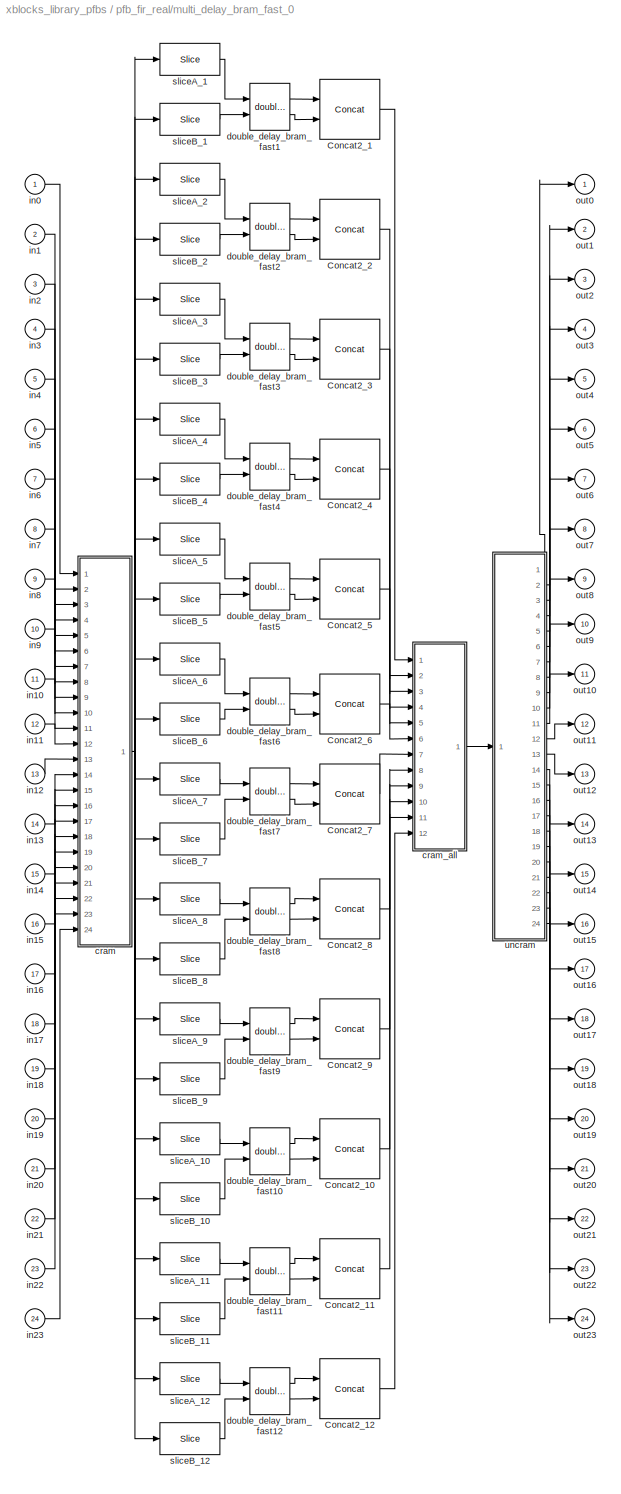
BLOCK [SubSystem] pfb_fir_real/multi_delay_bram_fast_0
  FunctionWithSeparateData = off
  MaskHideContents = off
  MinAlgLoopOccurrences = off
  Opaque = off
  Ports = [24, 24]
  PropExecContextOutsideSubsystem = off
  RTWSystemCode = Auto
  RequestExecContextInheritance = off
  SID = 1245
BLOCK [Reference] pfb_fir_real/multi_delay_bram_fast_0/Concat2_1  REF=xbsIndex_r4/Concat
  Ports = [2, 1]
  SID = 1348
  SourceBlock = xbsIndex_r4/Concat
  SourceType = Xilinx Bus Concatenator Block
  block_type = concat
  dbl_ovrd = off
  has_advanced_control = 0
  infoedit = Concatenates two or more inputs.  Output will be cast to an unsigned value with the binary point at zero.
  num_inputs = 2
  sg_icon_stat = 60,60,2,1,white,blue,0,16398980,right,,[ ],[ ]
  sg_mask_display = fprintf('','COMMENT: begin icon graphics');\npatch([0 60 60 0 0 ],[0 0 60 60 0 ],[0.77 0.82 0.91 ]);\nplot([0 60 60 0 0 ],[0 0 60 60 0 ]);\npatch([12.2 23.76 31.76 39.76 47.76 31.76 20.2 12.2 ],[38.88 38.88 46.88 38.88 46.88 46.88 46.88 38.88 ],[1 1 1 ]);\npatch([20.2 31.76 23.76 12.2 20.2 ],[30.88 30.88 38.88 38.88 30.88 ],[0.931 0.946 0.973 ]);\npatch([12.2 23.76 31.76 20.2 12.2 ],[22.88 22.88 3...<+417ch>  <repeated x12 — deduplicated; at blocks: Concat2_1, Concat2_10, Concat2_11, Concat2_12, Concat2_2, Concat2_3, Concat2_4, Concat2_5, Concat2_6, Concat2_7, Concat2_8, Concat2_9>
  sggui_pos = -1,-1,-1,-1
BLOCK [Reference] pfb_fir_real/multi_delay_bram_fast_0/Concat2_10  REF=xbsIndex_r4/Concat
  Ports = [2, 1]
  SID = 1384
  SourceBlock = xbsIndex_r4/Concat
  SourceType = Xilinx Bus Concatenator Block
  block_type = concat
  dbl_ovrd = off
  has_advanced_control = 0
  infoedit = Concatenates two or more inputs.  Output will be cast to an unsigned value with the binary point at zero.
  num_inputs = 2
  sg_icon_stat = 60,60,2,1,white,blue,0,16398980,right,,[ ],[ ]
  sggui_pos = -1,-1,-1,-1
BLOCK [Reference] pfb_fir_real/multi_delay_bram_fast_0/Concat2_11  REF=xbsIndex_r4/Concat
  Ports = [2, 1]
  SID = 1388
  SourceBlock = xbsIndex_r4/Concat
  SourceType = Xilinx Bus Concatenator Block
  block_type = concat
  dbl_ovrd = off
  has_advanced_control = 0
  infoedit = Concatenates two or more inputs.  Output will be cast to an unsigned value with the binary point at zero.
  num_inputs = 2
  sg_icon_stat = 60,60,2,1,white,blue,0,16398980,right,,[ ],[ ]
  sggui_pos = -1,-1,-1,-1
BLOCK [Reference] pfb_fir_real/multi_delay_bram_fast_0/Concat2_12  REF=xbsIndex_r4/Concat
  Ports = [2, 1]
  SID = 1392
  SourceBlock = xbsIndex_r4/Concat
  SourceType = Xilinx Bus Concatenator Block
  block_type = concat
  dbl_ovrd = off
  has_advanced_control = 0
  infoedit = Concatenates two or more inputs.  Output will be cast to an unsigned value with the binary point at zero.
  num_inputs = 2
  sg_icon_stat = 60,60,2,1,white,blue,0,16398980,right,,[ ],[ ]
  sggui_pos = -1,-1,-1,-1
BLOCK [Reference] pfb_fir_real/multi_delay_bram_fast_0/Concat2_2  REF=xbsIndex_r4/Concat
  Ports = [2, 1]
  SID = 1352
  SourceBlock = xbsIndex_r4/Concat
  SourceType = Xilinx Bus Concatenator Block
  block_type = concat
  dbl_ovrd = off
  has_advanced_control = 0
  infoedit = Concatenates two or more inputs.  Output will be cast to an unsigned value with the binary point at zero.
  num_inputs = 2
  sg_icon_stat = 60,60,2,1,white,blue,0,16398980,right,,[ ],[ ]
  sggui_pos = -1,-1,-1,-1
BLOCK [Reference] pfb_fir_real/multi_delay_bram_fast_0/Concat2_3  REF=xbsIndex_r4/Concat
  Ports = [2, 1]
  SID = 1356
  SourceBlock = xbsIndex_r4/Concat
  SourceType = Xilinx Bus Concatenator Block
  block_type = concat
  dbl_ovrd = off
  has_advanced_control = 0
  infoedit = Concatenates two or more inputs.  Output will be cast to an unsigned value with the binary point at zero.
  num_inputs = 2
  sg_icon_stat = 60,60,2,1,white,blue,0,16398980,right,,[ ],[ ]
  sggui_pos = -1,-1,-1,-1
BLOCK [Reference] pfb_fir_real/multi_delay_bram_fast_0/Concat2_4  REF=xbsIndex_r4/Concat
  Ports = [2, 1]
  SID = 1360
  SourceBlock = xbsIndex_r4/Concat
  SourceType = Xilinx Bus Concatenator Block
  block_type = concat
  dbl_ovrd = off
  has_advanced_control = 0
  infoedit = Concatenates two or more inputs.  Output will be cast to an unsigned value with the binary point at zero.
  num_inputs = 2
  sg_icon_stat = 60,60,2,1,white,blue,0,16398980,right,,[ ],[ ]
  sggui_pos = -1,-1,-1,-1
BLOCK [Reference] pfb_fir_real/multi_delay_bram_fast_0/Concat2_5  REF=xbsIndex_r4/Concat
  Ports = [2, 1]
  SID = 1364
  SourceBlock = xbsIndex_r4/Concat
  SourceType = Xilinx Bus Concatenator Block
  block_type = concat
  dbl_ovrd = off
  has_advanced_control = 0
  infoedit = Concatenates two or more inputs.  Output will be cast to an unsigned value with the binary point at zero.
  num_inputs = 2
  sg_icon_stat = 60,60,2,1,white,blue,0,16398980,right,,[ ],[ ]
  sggui_pos = -1,-1,-1,-1
BLOCK [Reference] pfb_fir_real/multi_delay_bram_fast_0/Concat2_6  REF=xbsIndex_r4/Concat
  Ports = [2, 1]
  SID = 1368
  SourceBlock = xbsIndex_r4/Concat
  SourceType = Xilinx Bus Concatenator Block
  block_type = concat
  dbl_ovrd = off
  has_advanced_control = 0
  infoedit = Concatenates two or more inputs.  Output will be cast to an unsigned value with the binary point at zero.
  num_inputs = 2
  sg_icon_stat = 60,60,2,1,white,blue,0,16398980,right,,[ ],[ ]
  sggui_pos = -1,-1,-1,-1
BLOCK [Reference] pfb_fir_real/multi_delay_bram_fast_0/Concat2_7  REF=xbsIndex_r4/Concat
  Ports = [2, 1]
  SID = 1372
  SourceBlock = xbsIndex_r4/Concat
  SourceType = Xilinx Bus Concatenator Block
  block_type = concat
  dbl_ovrd = off
  has_advanced_control = 0
  infoedit = Concatenates two or more inputs.  Output will be cast to an unsigned value with the binary point at zero.
  num_inputs = 2
  sg_icon_stat = 60,60,2,1,white,blue,0,16398980,right,,[ ],[ ]
  sggui_pos = -1,-1,-1,-1
BLOCK [Reference] pfb_fir_real/multi_delay_bram_fast_0/Concat2_8  REF=xbsIndex_r4/Concat
  Ports = [2, 1]
  SID = 1376
  SourceBlock = xbsIndex_r4/Concat
  SourceType = Xilinx Bus Concatenator Block
  block_type = concat
  dbl_ovrd = off
  has_advanced_control = 0
  infoedit = Concatenates two or more inputs.  Output will be cast to an unsigned value with the binary point at zero.
  num_inputs = 2
  sg_icon_stat = 60,60,2,1,white,blue,0,16398980,right,,[ ],[ ]
  sggui_pos = -1,-1,-1,-1
BLOCK [Reference] pfb_fir_real/multi_delay_bram_fast_0/Concat2_9  REF=xbsIndex_r4/Concat
  Ports = [2, 1]
  SID = 1380
  SourceBlock = xbsIndex_r4/Concat
  SourceType = Xilinx Bus Concatenator Block
  block_type = concat
  dbl_ovrd = off
  has_advanced_control = 0
  infoedit = Concatenates two or more inputs.  Output will be cast to an unsigned value with the binary point at zero.
  num_inputs = 2
  sg_icon_stat = 60,60,2,1,white,blue,0,16398980,right,,[ ],[ ]
  sggui_pos = -1,-1,-1,-1
BLOCK [SubSystem] pfb_fir_real/multi_delay_bram_fast_0/cram
  FunctionWithSeparateData = off
  MaskHideContents = off
  MinAlgLoopOccurrences = off
  Opaque = off
  Ports = [24, 1]
  PropExecContextOutsideSubsystem = off
  RTWSystemCode = Auto
  RequestExecContextInheritance = off
  SID = 1294
BLOCK [Reference] pfb_fir_real/multi_delay_bram_fast_0/cram/concat  REF=xbsIndex_r4/Concat
  Ports = [24, 1]
  SID = 1344
  SourceBlock = xbsIndex_r4/Concat
  SourceType = Xilinx Bus Concatenator Block
  block_type = concat
  dbl_ovrd = off
  has_advanced_control = 0
  infoedit = Concatenates two or more inputs.  Output will be cast to an unsigned value with the binary point at zero.
  num_inputs = 24
  sg_icon_stat = 60,115,24,1,white,blue,0,5c29c17e,right,,[ ],[ ]
  sg_mask_display = fprintf('','COMMENT: begin icon graphics');\npatch([0 60 60 0 0 ],[0 0 115 115 0 ],[0.77 0.82 0.91 ]);\nplot([0 60 60 0 0 ],[0 0 115 115 0 ]);\npatch([12.2 23.76 31.76 39.76 47.76 31.76 20.2 12.2 ],[65.88 65.88 73.88 65.88 73.88 73.88 73.88 65.88 ],[1 1 1 ]);\npatch([20.2 31.76 23.76 12.2 20.2 ],[57.88 57.88 65.88 65.88 57.88 ],[0.931 0.946 0.973 ]);\npatch([12.2 23.76 31.76 20.2 12.2 ],[49.88 49....<+466ch>
  sggui_pos = -1,-1,-1,-1
BLOCK [Inport] pfb_fir_real/multi_delay_bram_fast_0/cram/in0
  IconDisplay = Port number
  SID = 1295
BLOCK [Inport] pfb_fir_real/multi_delay_bram_fast_0/cram/in1
  IconDisplay = Port number
  Port = 2
  SID = 1296
BLOCK [Inport] pfb_fir_real/multi_delay_bram_fast_0/cram/in10
  IconDisplay = Port number
  Port = 11
  SID = 1305
BLOCK [Inport] pfb_fir_real/multi_delay_bram_fast_0/cram/in11
  IconDisplay = Port number
  Port = 12
  SID = 1306
BLOCK [Inport] pfb_fir_real/multi_delay_bram_fast_0/cram/in12
  IconDisplay = Port number
  Port = 13
  SID = 1307
BLOCK [Inport] pfb_fir_real/multi_delay_bram_fast_0/cram/in13
  IconDisplay = Port number
  Port = 14
  SID = 1308
BLOCK [Inport] pfb_fir_real/multi_delay_bram_fast_0/cram/in14
  IconDisplay = Port number
  Port = 15
  SID = 1309
BLOCK [Inport] pfb_fir_real/multi_delay_bram_fast_0/cram/in15
  IconDisplay = Port number
  Port = 16
  SID = 1310
BLOCK [Inport] pfb_fir_real/multi_delay_bram_fast_0/cram/in16
  IconDisplay = Port number
  Port = 17
  SID = 1311
BLOCK [Inport] pfb_fir_real/multi_delay_bram_fast_0/cram/in17
  IconDisplay = Port number
  Port = 18
  SID = 1312
BLOCK [Inport] pfb_fir_real/multi_delay_bram_fast_0/cram/in18
  IconDisplay = Port number
  Port = 19
  SID = 1313
BLOCK [Inport] pfb_fir_real/multi_delay_bram_fast_0/cram/in19
  IconDisplay = Port number
  Port = 20
  SID = 1314
BLOCK [Inport] pfb_fir_real/multi_delay_bram_fast_0/cram/in2
  IconDisplay = Port number
  Port = 3
  SID = 1297
BLOCK [Inport] pfb_fir_real/multi_delay_bram_fast_0/cram/in20
  IconDisplay = Port number
  Port = 21
  SID = 1315
BLOCK [Inport] pfb_fir_real/multi_delay_bram_fast_0/cram/in21
  IconDisplay = Port number
  Port = 22
  SID = 1316
BLOCK [Inport] pfb_fir_real/multi_delay_bram_fast_0/cram/in22
  IconDisplay = Port number
  Port = 23
  SID = 1317
BLOCK [Inport] pfb_fir_real/multi_delay_bram_fast_0/cram/in23
  IconDisplay = Port number
  Port = 24
  SID = 1318
BLOCK [Inport] pfb_fir_real/multi_delay_bram_fast_0/cram/in3
  IconDisplay = Port number
  Port = 4
  SID = 1298
BLOCK [Inport] pfb_fir_real/multi_delay_bram_fast_0/cram/in4
  IconDisplay = Port number
  Port = 5
  SID = 1299
BLOCK [Inport] pfb_fir_real/multi_delay_bram_fast_0/cram/in5
  IconDisplay = Port number
  Port = 6
  SID = 1300
BLOCK [Inport] pfb_fir_real/multi_delay_bram_fast_0/cram/in6
  IconDisplay = Port number
  Port = 7
  SID = 1301
BLOCK [Inport] pfb_fir_real/multi_delay_bram_fast_0/cram/in7
  IconDisplay = Port number
  Port = 8
  SID = 1302
BLOCK [Inport] pfb_fir_real/multi_delay_bram_fast_0/cram/in8
  IconDisplay = Port number
  Port = 9
  SID = 1303
BLOCK [Inport] pfb_fir_real/multi_delay_bram_fast_0/cram/in9
  IconDisplay = Port number
  Port = 10
  SID = 1304
BLOCK [Outport] pfb_fir_real/multi_delay_bram_fast_0/cram/out
  IconDisplay = Port number
  SID = 1319
BLOCK [Reference] pfb_fir_real/multi_delay_bram_fast_0/cram/reinterpret_1  REF=xbsIndex_r4/Reinterpret
  Ports = [1, 1]
  SID = 1320
  SourceBlock = xbsIndex_r4/Reinterpret
  SourceType = Xilinx Type Reinterpreter Block
  arith_type = Unsigned
  bin_pt = 0
  block_type = reinterpret
  force_arith_type = on
  force_bin_pt = on
  has_advanced_control = 0
  sg_icon_stat = 50,32,1,1,white,blue,0,6b04d0b0,right,,[ ],[ ]
  sggui_pos = -1,-1,-1,-1
BLOCK [Reference] pfb_fir_real/multi_delay_bram_fast_0/cram/reinterpret_10  REF=xbsIndex_r4/Reinterpret
  Ports = [1, 1]
  SID = 1329
  SourceBlock = xbsIndex_r4/Reinterpret
  SourceType = Xilinx Type Reinterpreter Block
  arith_type = Unsigned
  bin_pt = 0
  block_type = reinterpret
  force_arith_type = on
  force_bin_pt = on
  has_advanced_control = 0
  sg_icon_stat = 50,32,1,1,white,blue,0,6b04d0b0,right,,[ ],[ ]
  sggui_pos = -1,-1,-1,-1
BLOCK [Reference] pfb_fir_real/multi_delay_bram_fast_0/cram/reinterpret_11  REF=xbsIndex_r4/Reinterpret
  Ports = [1, 1]
  SID = 1330
  SourceBlock = xbsIndex_r4/Reinterpret
  SourceType = Xilinx Type Reinterpreter Block
  arith_type = Unsigned
  bin_pt = 0
  block_type = reinterpret
  force_arith_type = on
  force_bin_pt = on
  has_advanced_control = 0
  sg_icon_stat = 50,32,1,1,white,blue,0,6b04d0b0,right,,[ ],[ ]
  sggui_pos = -1,-1,-1,-1
BLOCK [Reference] pfb_fir_real/multi_delay_bram_fast_0/cram/reinterpret_12  REF=xbsIndex_r4/Reinterpret
  Ports = [1, 1]
  SID = 1331
  SourceBlock = xbsIndex_r4/Reinterpret
  SourceType = Xilinx Type Reinterpreter Block
  arith_type = Unsigned
  bin_pt = 0
  block_type = reinterpret
  force_arith_type = on
  force_bin_pt = on
  has_advanced_control = 0
  sg_icon_stat = 50,32,1,1,white,blue,0,6b04d0b0,right,,[ ],[ ]
  sggui_pos = -1,-1,-1,-1
BLOCK [Reference] pfb_fir_real/multi_delay_bram_fast_0/cram/reinterpret_13  REF=xbsIndex_r4/Reinterpret
  Ports = [1, 1]
  SID = 1332
  SourceBlock = xbsIndex_r4/Reinterpret
  SourceType = Xilinx Type Reinterpreter Block
  arith_type = Unsigned
  bin_pt = 0
  block_type = reinterpret
  force_arith_type = on
  force_bin_pt = on
  has_advanced_control = 0
  sg_icon_stat = 50,32,1,1,white,blue,0,6b04d0b0,right,,[ ],[ ]
  sggui_pos = -1,-1,-1,-1
BLOCK [Reference] pfb_fir_real/multi_delay_bram_fast_0/cram/reinterpret_14  REF=xbsIndex_r4/Reinterpret
  Ports = [1, 1]
  SID = 1333
  SourceBlock = xbsIndex_r4/Reinterpret
  SourceType = Xilinx Type Reinterpreter Block
  arith_type = Unsigned
  bin_pt = 0
  block_type = reinterpret
  force_arith_type = on
  force_bin_pt = on
  has_advanced_control = 0
  sg_icon_stat = 50,32,1,1,white,blue,0,6b04d0b0,right,,[ ],[ ]
  sggui_pos = -1,-1,-1,-1
BLOCK [Reference] pfb_fir_real/multi_delay_bram_fast_0/cram/reinterpret_15  REF=xbsIndex_r4/Reinterpret
  Ports = [1, 1]
  SID = 1334
  SourceBlock = xbsIndex_r4/Reinterpret
  SourceType = Xilinx Type Reinterpreter Block
  arith_type = Unsigned
  bin_pt = 0
  block_type = reinterpret
  force_arith_type = on
  force_bin_pt = on
  has_advanced_control = 0
  sg_icon_stat = 50,32,1,1,white,blue,0,6b04d0b0,right,,[ ],[ ]
  sggui_pos = -1,-1,-1,-1
BLOCK [Reference] pfb_fir_real/multi_delay_bram_fast_0/cram/reinterpret_16  REF=xbsIndex_r4/Reinterpret
  Ports = [1, 1]
  SID = 1335
  SourceBlock = xbsIndex_r4/Reinterpret
  SourceType = Xilinx Type Reinterpreter Block
  arith_type = Unsigned
  bin_pt = 0
  block_type = reinterpret
  force_arith_type = on
  force_bin_pt = on
  has_advanced_control = 0
  sg_icon_stat = 50,32,1,1,white,blue,0,6b04d0b0,right,,[ ],[ ]
  sggui_pos = -1,-1,-1,-1
BLOCK [Reference] pfb_fir_real/multi_delay_bram_fast_0/cram/reinterpret_17  REF=xbsIndex_r4/Reinterpret
  Ports = [1, 1]
  SID = 1336
  SourceBlock = xbsIndex_r4/Reinterpret
  SourceType = Xilinx Type Reinterpreter Block
  arith_type = Unsigned
  bin_pt = 0
  block_type = reinterpret
  force_arith_type = on
  force_bin_pt = on
  has_advanced_control = 0
  sg_icon_stat = 50,32,1,1,white,blue,0,6b04d0b0,right,,[ ],[ ]
  sggui_pos = -1,-1,-1,-1
BLOCK [Reference] pfb_fir_real/multi_delay_bram_fast_0/cram/reinterpret_18  REF=xbsIndex_r4/Reinterpret
  Ports = [1, 1]
  SID = 1337
  SourceBlock = xbsIndex_r4/Reinterpret
  SourceType = Xilinx Type Reinterpreter Block
  arith_type = Unsigned
  bin_pt = 0
  block_type = reinterpret
  force_arith_type = on
  force_bin_pt = on
  has_advanced_control = 0
  sg_icon_stat = 50,32,1,1,white,blue,0,6b04d0b0,right,,[ ],[ ]
  sggui_pos = -1,-1,-1,-1
BLOCK [Reference] pfb_fir_real/multi_delay_bram_fast_0/cram/reinterpret_19  REF=xbsIndex_r4/Reinterpret
  Ports = [1, 1]
  SID = 1338
  SourceBlock = xbsIndex_r4/Reinterpret
  SourceType = Xilinx Type Reinterpreter Block
  arith_type = Unsigned
  bin_pt = 0
  block_type = reinterpret
  force_arith_type = on
  force_bin_pt = on
  has_advanced_control = 0
  sg_icon_stat = 50,32,1,1,white,blue,0,6b04d0b0,right,,[ ],[ ]
  sggui_pos = -1,-1,-1,-1
BLOCK [Reference] pfb_fir_real/multi_delay_bram_fast_0/cram/reinterpret_2  REF=xbsIndex_r4/Reinterpret
  Ports = [1, 1]
  SID = 1321
  SourceBlock = xbsIndex_r4/Reinterpret
  SourceType = Xilinx Type Reinterpreter Block
  arith_type = Unsigned
  bin_pt = 0
  block_type = reinterpret
  force_arith_type = on
  force_bin_pt = on
  has_advanced_control = 0
  sg_icon_stat = 50,32,1,1,white,blue,0,6b04d0b0,right,,[ ],[ ]
  sggui_pos = -1,-1,-1,-1
BLOCK [Reference] pfb_fir_real/multi_delay_bram_fast_0/cram/reinterpret_20  REF=xbsIndex_r4/Reinterpret
  Ports = [1, 1]
  SID = 1339
  SourceBlock = xbsIndex_r4/Reinterpret
  SourceType = Xilinx Type Reinterpreter Block
  arith_type = Unsigned
  bin_pt = 0
  block_type = reinterpret
  force_arith_type = on
  force_bin_pt = on
  has_advanced_control = 0
  sg_icon_stat = 50,32,1,1,white,blue,0,6b04d0b0,right,,[ ],[ ]
  sggui_pos = -1,-1,-1,-1
BLOCK [Reference] pfb_fir_real/multi_delay_bram_fast_0/cram/reinterpret_21  REF=xbsIndex_r4/Reinterpret
  Ports = [1, 1]
  SID = 1340
  SourceBlock = xbsIndex_r4/Reinterpret
  SourceType = Xilinx Type Reinterpreter Block
  arith_type = Unsigned
  bin_pt = 0
  block_type = reinterpret
  force_arith_type = on
  force_bin_pt = on
  has_advanced_control = 0
  sg_icon_stat = 50,32,1,1,white,blue,0,6b04d0b0,right,,[ ],[ ]
  sggui_pos = -1,-1,-1,-1
BLOCK [Reference] pfb_fir_real/multi_delay_bram_fast_0/cram/reinterpret_22  REF=xbsIndex_r4/Reinterpret
  Ports = [1, 1]
  SID = 1341
  SourceBlock = xbsIndex_r4/Reinterpret
  SourceType = Xilinx Type Reinterpreter Block
  arith_type = Unsigned
  bin_pt = 0
  block_type = reinterpret
  force_arith_type = on
  force_bin_pt = on
  has_advanced_control = 0
  sg_icon_stat = 50,32,1,1,white,blue,0,6b04d0b0,right,,[ ],[ ]
  sggui_pos = -1,-1,-1,-1
BLOCK [Reference] pfb_fir_real/multi_delay_bram_fast_0/cram/reinterpret_23  REF=xbsIndex_r4/Reinterpret
  Ports = [1, 1]
  SID = 1342
  SourceBlock = xbsIndex_r4/Reinterpret
  SourceType = Xilinx Type Reinterpreter Block
  arith_type = Unsigned
  bin_pt = 0
  block_type = reinterpret
  force_arith_type = on
  force_bin_pt = on
  has_advanced_control = 0
  sg_icon_stat = 50,32,1,1,white,blue,0,6b04d0b0,right,,[ ],[ ]
  sggui_pos = -1,-1,-1,-1
BLOCK [Reference] pfb_fir_real/multi_delay_bram_fast_0/cram/reinterpret_24  REF=xbsIndex_r4/Reinterpret
  Ports = [1, 1]
  SID = 1343
  SourceBlock = xbsIndex_r4/Reinterpret
  SourceType = Xilinx Type Reinterpreter Block
  arith_type = Unsigned
  bin_pt = 0
  block_type = reinterpret
  force_arith_type = on
  force_bin_pt = on
  has_advanced_control = 0
  sg_icon_stat = 50,32,1,1,white,blue,0,6b04d0b0,right,,[ ],[ ]
  sggui_pos = -1,-1,-1,-1
BLOCK [Reference] pfb_fir_real/multi_delay_bram_fast_0/cram/reinterpret_3  REF=xbsIndex_r4/Reinterpret
  Ports = [1, 1]
  SID = 1322
  SourceBlock = xbsIndex_r4/Reinterpret
  SourceType = Xilinx Type Reinterpreter Block
  arith_type = Unsigned
  bin_pt = 0
  block_type = reinterpret
  force_arith_type = on
  force_bin_pt = on
  has_advanced_control = 0
  sg_icon_stat = 50,32,1,1,white,blue,0,6b04d0b0,right,,[ ],[ ]
  sggui_pos = -1,-1,-1,-1
BLOCK [Reference] pfb_fir_real/multi_delay_bram_fast_0/cram/reinterpret_4  REF=xbsIndex_r4/Reinterpret
  Ports = [1, 1]
  SID = 1323
  SourceBlock = xbsIndex_r4/Reinterpret
  SourceType = Xilinx Type Reinterpreter Block
  arith_type = Unsigned
  bin_pt = 0
  block_type = reinterpret
  force_arith_type = on
  force_bin_pt = on
  has_advanced_control = 0
  sg_icon_stat = 50,32,1,1,white,blue,0,6b04d0b0,right,,[ ],[ ]
  sggui_pos = -1,-1,-1,-1
BLOCK [Reference] pfb_fir_real/multi_delay_bram_fast_0/cram/reinterpret_5  REF=xbsIndex_r4/Reinterpret
  Ports = [1, 1]
  SID = 1324
  SourceBlock = xbsIndex_r4/Reinterpret
  SourceType = Xilinx Type Reinterpreter Block
  arith_type = Unsigned
  bin_pt = 0
  block_type = reinterpret
  force_arith_type = on
  force_bin_pt = on
  has_advanced_control = 0
  sg_icon_stat = 50,32,1,1,white,blue,0,6b04d0b0,right,,[ ],[ ]
  sggui_pos = -1,-1,-1,-1
BLOCK [Reference] pfb_fir_real/multi_delay_bram_fast_0/cram/reinterpret_6  REF=xbsIndex_r4/Reinterpret
  Ports = [1, 1]
  SID = 1325
  SourceBlock = xbsIndex_r4/Reinterpret
  SourceType = Xilinx Type Reinterpreter Block
  arith_type = Unsigned
  bin_pt = 0
  block_type = reinterpret
  force_arith_type = on
  force_bin_pt = on
  has_advanced_control = 0
  sg_icon_stat = 50,32,1,1,white,blue,0,6b04d0b0,right,,[ ],[ ]
  sggui_pos = -1,-1,-1,-1
BLOCK [Reference] pfb_fir_real/multi_delay_bram_fast_0/cram/reinterpret_7  REF=xbsIndex_r4/Reinterpret
  Ports = [1, 1]
  SID = 1326
  SourceBlock = xbsIndex_r4/Reinterpret
  SourceType = Xilinx Type Reinterpreter Block
  arith_type = Unsigned
  bin_pt = 0
  block_type = reinterpret
  force_arith_type = on
  force_bin_pt = on
  has_advanced_control = 0
  sg_icon_stat = 50,32,1,1,white,blue,0,6b04d0b0,right,,[ ],[ ]
  sggui_pos = -1,-1,-1,-1
BLOCK [Reference] pfb_fir_real/multi_delay_bram_fast_0/cram/reinterpret_8  REF=xbsIndex_r4/Reinterpret
  Ports = [1, 1]
  SID = 1327
  SourceBlock = xbsIndex_r4/Reinterpret
  SourceType = Xilinx Type Reinterpreter Block
  arith_type = Unsigned
  bin_pt = 0
  block_type = reinterpret
  force_arith_type = on
  force_bin_pt = on
  has_advanced_control = 0
  sg_icon_stat = 50,32,1,1,white,blue,0,6b04d0b0,right,,[ ],[ ]
  sggui_pos = -1,-1,-1,-1
BLOCK [Reference] pfb_fir_real/multi_delay_bram_fast_0/cram/reinterpret_9  REF=xbsIndex_r4/Reinterpret
  Ports = [1, 1]
  SID = 1328
  SourceBlock = xbsIndex_r4/Reinterpret
  SourceType = Xilinx Type Reinterpreter Block
  arith_type = Unsigned
  bin_pt = 0
  block_type = reinterpret
  force_arith_type = on
  force_bin_pt = on
  has_advanced_control = 0
  sg_icon_stat = 50,32,1,1,white,blue,0,6b04d0b0,right,,[ ],[ ]
  sggui_pos = -1,-1,-1,-1
BLOCK [SubSystem] pfb_fir_real/multi_delay_bram_fast_0/cram_all
  FunctionWithSeparateData = off
  MaskHideContents = off
  MinAlgLoopOccurrences = off
  Opaque = off
  Ports = [12, 1]
  PropExecContextOutsideSubsystem = off
  RTWSystemCode = Auto
  RequestExecContextInheritance = off
  SID = 1393
BLOCK [Reference] pfb_fir_real/multi_delay_bram_fast_0/cram_all/concat  REF=xbsIndex_r4/Concat
  Ports = [12, 1]
  SID = 1419
  SourceBlock = xbsIndex_r4/Concat
  SourceType = Xilinx Bus Concatenator Block
  block_type = concat
  dbl_ovrd = off
  has_advanced_control = 0
  infoedit = Concatenates two or more inputs.  Output will be cast to an unsigned value with the binary point at zero.
  num_inputs = 12
  sg_icon_stat = 60,61,12,1,white,blue,0,33bf8e9c,right,,[ ],[ ]
  sg_mask_display = fprintf('','COMMENT: begin icon graphics');\npatch([0 60 60 0 0 ],[0 0 61 61 0 ],[0.77 0.82 0.91 ]);\nplot([0 60 60 0 0 ],[0 0 61 61 0 ]);\npatch([12.2 23.76 31.76 39.76 47.76 31.76 20.2 12.2 ],[38.88 38.88 46.88 38.88 46.88 46.88 46.88 38.88 ],[1 1 1 ]);\npatch([20.2 31.76 23.76 12.2 20.2 ],[30.88 30.88 38.88 38.88 30.88 ],[0.931 0.946 0.973 ]);\npatch([12.2 23.76 31.76 20.2 12.2 ],[22.88 22.88 3...<+438ch>
  sggui_pos = -1,-1,-1,-1
BLOCK [Inport] pfb_fir_real/multi_delay_bram_fast_0/cram_all/in0
  IconDisplay = Port number
  SID = 1394
BLOCK [Inport] pfb_fir_real/multi_delay_bram_fast_0/cram_all/in1
  IconDisplay = Port number
  Port = 2
  SID = 1395
BLOCK [Inport] pfb_fir_real/multi_delay_bram_fast_0/cram_all/in10
  IconDisplay = Port number
  Port = 11
  SID = 1404
BLOCK [Inport] pfb_fir_real/multi_delay_bram_fast_0/cram_all/in11
  IconDisplay = Port number
  Port = 12
  SID = 1405
BLOCK [Inport] pfb_fir_real/multi_delay_bram_fast_0/cram_all/in2
  IconDisplay = Port number
  Port = 3
  SID = 1396
BLOCK [Inport] pfb_fir_real/multi_delay_bram_fast_0/cram_all/in3
  IconDisplay = Port number
  Port = 4
  SID = 1397
BLOCK [Inport] pfb_fir_real/multi_delay_bram_fast_0/cram_all/in4
  IconDisplay = Port number
  Port = 5
  SID = 1398
BLOCK [Inport] pfb_fir_real/multi_delay_bram_fast_0/cram_all/in5
  IconDisplay = Port number
  Port = 6
  SID = 1399
BLOCK [Inport] pfb_fir_real/multi_delay_bram_fast_0/cram_all/in6
  IconDisplay = Port number
  Port = 7
  SID = 1400
BLOCK [Inport] pfb_fir_real/multi_delay_bram_fast_0/cram_all/in7
  IconDisplay = Port number
  Port = 8
  SID = 1401
BLOCK [Inport] pfb_fir_real/multi_delay_bram_fast_0/cram_all/in8
  IconDisplay = Port number
  Port = 9
  SID = 1402
BLOCK [Inport] pfb_fir_real/multi_delay_bram_fast_0/cram_all/in9
  IconDisplay = Port number
  Port = 10
  SID = 1403
BLOCK [Outport] pfb_fir_real/multi_delay_bram_fast_0/cram_all/out
  IconDisplay = Port number
  SID = 1406
BLOCK [Reference] pfb_fir_real/multi_delay_bram_fast_0/cram_all/reinterpret_1  REF=xbsIndex_r4/Reinterpret
  Ports = [1, 1]
  SID = 1407
  SourceBlock = xbsIndex_r4/Reinterpret
  SourceType = Xilinx Type Reinterpreter Block
  arith_type = Unsigned
  bin_pt = 0
  block_type = reinterpret
  force_arith_type = on
  force_bin_pt = on
  has_advanced_control = 0
  sg_icon_stat = 50,32,1,1,white,blue,0,6b04d0b0,right,,[ ],[ ]
  sggui_pos = -1,-1,-1,-1
BLOCK [Reference] pfb_fir_real/multi_delay_bram_fast_0/cram_all/reinterpret_10  REF=xbsIndex_r4/Reinterpret
  Ports = [1, 1]
  SID = 1416
  SourceBlock = xbsIndex_r4/Reinterpret
  SourceType = Xilinx Type Reinterpreter Block
  arith_type = Unsigned
  bin_pt = 0
  block_type = reinterpret
  force_arith_type = on
  force_bin_pt = on
  has_advanced_control = 0
  sg_icon_stat = 50,32,1,1,white,blue,0,6b04d0b0,right,,[ ],[ ]
  sggui_pos = -1,-1,-1,-1
BLOCK [Reference] pfb_fir_real/multi_delay_bram_fast_0/cram_all/reinterpret_11  REF=xbsIndex_r4/Reinterpret
  Ports = [1, 1]
  SID = 1417
  SourceBlock = xbsIndex_r4/Reinterpret
  SourceType = Xilinx Type Reinterpreter Block
  arith_type = Unsigned
  bin_pt = 0
  block_type = reinterpret
  force_arith_type = on
  force_bin_pt = on
  has_advanced_control = 0
  sg_icon_stat = 50,32,1,1,white,blue,0,6b04d0b0,right,,[ ],[ ]
  sggui_pos = -1,-1,-1,-1
BLOCK [Reference] pfb_fir_real/multi_delay_bram_fast_0/cram_all/reinterpret_12  REF=xbsIndex_r4/Reinterpret
  Ports = [1, 1]
  SID = 1418
  SourceBlock = xbsIndex_r4/Reinterpret
  SourceType = Xilinx Type Reinterpreter Block
  arith_type = Unsigned
  bin_pt = 0
  block_type = reinterpret
  force_arith_type = on
  force_bin_pt = on
  has_advanced_control = 0
  sg_icon_stat = 50,32,1,1,white,blue,0,6b04d0b0,right,,[ ],[ ]
  sggui_pos = -1,-1,-1,-1
BLOCK [Reference] pfb_fir_real/multi_delay_bram_fast_0/cram_all/reinterpret_2  REF=xbsIndex_r4/Reinterpret
  Ports = [1, 1]
  SID = 1408
  SourceBlock = xbsIndex_r4/Reinterpret
  SourceType = Xilinx Type Reinterpreter Block
  arith_type = Unsigned
  bin_pt = 0
  block_type = reinterpret
  force_arith_type = on
  force_bin_pt = on
  has_advanced_control = 0
  sg_icon_stat = 50,32,1,1,white,blue,0,6b04d0b0,right,,[ ],[ ]
  sggui_pos = -1,-1,-1,-1
BLOCK [Reference] pfb_fir_real/multi_delay_bram_fast_0/cram_all/reinterpret_3  REF=xbsIndex_r4/Reinterpret
  Ports = [1, 1]
  SID = 1409
  SourceBlock = xbsIndex_r4/Reinterpret
  SourceType = Xilinx Type Reinterpreter Block
  arith_type = Unsigned
  bin_pt = 0
  block_type = reinterpret
  force_arith_type = on
  force_bin_pt = on
  has_advanced_control = 0
  sg_icon_stat = 50,32,1,1,white,blue,0,6b04d0b0,right,,[ ],[ ]
  sggui_pos = -1,-1,-1,-1
BLOCK [Reference] pfb_fir_real/multi_delay_bram_fast_0/cram_all/reinterpret_4  REF=xbsIndex_r4/Reinterpret
  Ports = [1, 1]
  SID = 1410
  SourceBlock = xbsIndex_r4/Reinterpret
  SourceType = Xilinx Type Reinterpreter Block
  arith_type = Unsigned
  bin_pt = 0
  block_type = reinterpret
  force_arith_type = on
  force_bin_pt = on
  has_advanced_control = 0
  sg_icon_stat = 50,32,1,1,white,blue,0,6b04d0b0,right,,[ ],[ ]
  sggui_pos = -1,-1,-1,-1
BLOCK [Reference] pfb_fir_real/multi_delay_bram_fast_0/cram_all/reinterpret_5  REF=xbsIndex_r4/Reinterpret
  Ports = [1, 1]
  SID = 1411
  SourceBlock = xbsIndex_r4/Reinterpret
  SourceType = Xilinx Type Reinterpreter Block
  arith_type = Unsigned
  bin_pt = 0
  block_type = reinterpret
  force_arith_type = on
  force_bin_pt = on
  has_advanced_control = 0
  sg_icon_stat = 50,32,1,1,white,blue,0,6b04d0b0,right,,[ ],[ ]
  sggui_pos = -1,-1,-1,-1
BLOCK [Reference] pfb_fir_real/multi_delay_bram_fast_0/cram_all/reinterpret_6  REF=xbsIndex_r4/Reinterpret
  Ports = [1, 1]
  SID = 1412
  SourceBlock = xbsIndex_r4/Reinterpret
  SourceType = Xilinx Type Reinterpreter Block
  arith_type = Unsigned
  bin_pt = 0
  block_type = reinterpret
  force_arith_type = on
  force_bin_pt = on
  has_advanced_control = 0
  sg_icon_stat = 50,32,1,1,white,blue,0,6b04d0b0,right,,[ ],[ ]
  sggui_pos = -1,-1,-1,-1
BLOCK [Reference] pfb_fir_real/multi_delay_bram_fast_0/cram_all/reinterpret_7  REF=xbsIndex_r4/Reinterpret
  Ports = [1, 1]
  SID = 1413
  SourceBlock = xbsIndex_r4/Reinterpret
  SourceType = Xilinx Type Reinterpreter Block
  arith_type = Unsigned
  bin_pt = 0
  block_type = reinterpret
  force_arith_type = on
  force_bin_pt = on
  has_advanced_control = 0
  sg_icon_stat = 50,32,1,1,white,blue,0,6b04d0b0,right,,[ ],[ ]
  sggui_pos = -1,-1,-1,-1
BLOCK [Reference] pfb_fir_real/multi_delay_bram_fast_0/cram_all/reinterpret_8  REF=xbsIndex_r4/Reinterpret
  Ports = [1, 1]
  SID = 1414
  SourceBlock = xbsIndex_r4/Reinterpret
  SourceType = Xilinx Type Reinterpreter Block
  arith_type = Unsigned
  bin_pt = 0
  block_type = reinterpret
  force_arith_type = on
  force_bin_pt = on
  has_advanced_control = 0
  sg_icon_stat = 50,32,1,1,white,blue,0,6b04d0b0,right,,[ ],[ ]
  sggui_pos = -1,-1,-1,-1
BLOCK [Reference] pfb_fir_real/multi_delay_bram_fast_0/cram_all/reinterpret_9  REF=xbsIndex_r4/Reinterpret
  Ports = [1, 1]
  SID = 1415
  SourceBlock = xbsIndex_r4/Reinterpret
  SourceType = Xilinx Type Reinterpreter Block
  arith_type = Unsigned
  bin_pt = 0
  block_type = reinterpret
  force_arith_type = on
  force_bin_pt = on
  has_advanced_control = 0
  sg_icon_stat = 50,32,1,1,white,blue,0,6b04d0b0,right,,[ ],[ ]
  sggui_pos = -1,-1,-1,-1
BLOCK [Reference] pfb_fir_real/multi_delay_bram_fast_0/double_delay_bram_fast1  REF=monroe_library/double_delay_bram_fast  (lib defined in mdl_6e3ec1066caf, mdl_8e463b7c25be, +1 more)
  FunctionWithSeparateData = off
  Ports = [2, 2]
  RTWMemSecDataConstants = Inherit from model
  RTWMemSecDataInternal = Inherit from model
  RTWMemSecDataParameters = Inherit from model
  RTWMemSecFuncExecute = Inherit from model
  RTWMemSecFuncInitTerm = Inherit from model
  SID = 1347
  ShowPortLabels = FromPortIcon
  SourceBlock = monroe_library/double_delay_bram_fast
  SystemSampleTime = -1
  bram_latency = 2
  delay_len = 2048
  register_counter = 0
BLOCK [Reference] pfb_fir_real/multi_delay_bram_fast_0/double_delay_bram_fast10  REF=monroe_library/double_delay_bram_fast  (lib defined in mdl_6e3ec1066caf, mdl_8e463b7c25be, +1 more)
  FunctionWithSeparateData = off
  Ports = [2, 2]
  RTWMemSecDataConstants = Inherit from model
  RTWMemSecDataInternal = Inherit from model
  RTWMemSecDataParameters = Inherit from model
  RTWMemSecFuncExecute = Inherit from model
  RTWMemSecFuncInitTerm = Inherit from model
  SID = 1383
  ShowPortLabels = FromPortIcon
  SourceBlock = monroe_library/double_delay_bram_fast
  SystemSampleTime = -1
  bram_latency = 2
  delay_len = 2048
  register_counter = 0
BLOCK [Reference] pfb_fir_real/multi_delay_bram_fast_0/double_delay_bram_fast11  REF=monroe_library/double_delay_bram_fast  (lib defined in mdl_6e3ec1066caf, mdl_8e463b7c25be, +1 more)
  FunctionWithSeparateData = off
  Ports = [2, 2]
  RTWMemSecDataConstants = Inherit from model
  RTWMemSecDataInternal = Inherit from model
  RTWMemSecDataParameters = Inherit from model
  RTWMemSecFuncExecute = Inherit from model
  RTWMemSecFuncInitTerm = Inherit from model
  SID = 1387
  ShowPortLabels = FromPortIcon
  SourceBlock = monroe_library/double_delay_bram_fast
  SystemSampleTime = -1
  bram_latency = 2
  delay_len = 2048
  register_counter = 0
BLOCK [Reference] pfb_fir_real/multi_delay_bram_fast_0/double_delay_bram_fast12  REF=monroe_library/double_delay_bram_fast  (lib defined in mdl_6e3ec1066caf, mdl_8e463b7c25be, +1 more)
  FunctionWithSeparateData = off
  Ports = [2, 2]
  RTWMemSecDataConstants = Inherit from model
  RTWMemSecDataInternal = Inherit from model
  RTWMemSecDataParameters = Inherit from model
  RTWMemSecFuncExecute = Inherit from model
  RTWMemSecFuncInitTerm = Inherit from model
  SID = 1391
  ShowPortLabels = FromPortIcon
  SourceBlock = monroe_library/double_delay_bram_fast
  SystemSampleTime = -1
  bram_latency = 2
  delay_len = 2048
  register_counter = 0
BLOCK [Reference] pfb_fir_real/multi_delay_bram_fast_0/double_delay_bram_fast2  REF=monroe_library/double_delay_bram_fast  (lib defined in mdl_6e3ec1066caf, mdl_8e463b7c25be, +1 more)
  FunctionWithSeparateData = off
  Ports = [2, 2]
  RTWMemSecDataConstants = Inherit from model
  RTWMemSecDataInternal = Inherit from model
  RTWMemSecDataParameters = Inherit from model
  RTWMemSecFuncExecute = Inherit from model
  RTWMemSecFuncInitTerm = Inherit from model
  SID = 1351
  ShowPortLabels = FromPortIcon
  SourceBlock = monroe_library/double_delay_bram_fast
  SystemSampleTime = -1
  bram_latency = 2
  delay_len = 2048
  register_counter = 0
BLOCK [Reference] pfb_fir_real/multi_delay_bram_fast_0/double_delay_bram_fast3  REF=monroe_library/double_delay_bram_fast  (lib defined in mdl_6e3ec1066caf, mdl_8e463b7c25be, +1 more)
  FunctionWithSeparateData = off
  Ports = [2, 2]
  RTWMemSecDataConstants = Inherit from model
  RTWMemSecDataInternal = Inherit from model
  RTWMemSecDataParameters = Inherit from model
  RTWMemSecFuncExecute = Inherit from model
  RTWMemSecFuncInitTerm = Inherit from model
  SID = 1355
  ShowPortLabels = FromPortIcon
  SourceBlock = monroe_library/double_delay_bram_fast
  SystemSampleTime = -1
  bram_latency = 2
  delay_len = 2048
  register_counter = 0
BLOCK [Reference] pfb_fir_real/multi_delay_bram_fast_0/double_delay_bram_fast4  REF=monroe_library/double_delay_bram_fast  (lib defined in mdl_6e3ec1066caf, mdl_8e463b7c25be, +1 more)
  FunctionWithSeparateData = off
  Ports = [2, 2]
  RTWMemSecDataConstants = Inherit from model
  RTWMemSecDataInternal = Inherit from model
  RTWMemSecDataParameters = Inherit from model
  RTWMemSecFuncExecute = Inherit from model
  RTWMemSecFuncInitTerm = Inherit from model
  SID = 1359
  ShowPortLabels = FromPortIcon
  SourceBlock = monroe_library/double_delay_bram_fast
  SystemSampleTime = -1
  bram_latency = 2
  delay_len = 2048
  register_counter = 0
BLOCK [Reference] pfb_fir_real/multi_delay_bram_fast_0/double_delay_bram_fast5  REF=monroe_library/double_delay_bram_fast  (lib defined in mdl_6e3ec1066caf, mdl_8e463b7c25be, +1 more)
  FunctionWithSeparateData = off
  Ports = [2, 2]
  RTWMemSecDataConstants = Inherit from model
  RTWMemSecDataInternal = Inherit from model
  RTWMemSecDataParameters = Inherit from model
  RTWMemSecFuncExecute = Inherit from model
  RTWMemSecFuncInitTerm = Inherit from model
  SID = 1363
  ShowPortLabels = FromPortIcon
  SourceBlock = monroe_library/double_delay_bram_fast
  SystemSampleTime = -1
  bram_latency = 2
  delay_len = 2048
  register_counter = 0
BLOCK [Reference] pfb_fir_real/multi_delay_bram_fast_0/double_delay_bram_fast6  REF=monroe_library/double_delay_bram_fast  (lib defined in mdl_6e3ec1066caf, mdl_8e463b7c25be, +1 more)
  FunctionWithSeparateData = off
  Ports = [2, 2]
  RTWMemSecDataConstants = Inherit from model
  RTWMemSecDataInternal = Inherit from model
  RTWMemSecDataParameters = Inherit from model
  RTWMemSecFuncExecute = Inherit from model
  RTWMemSecFuncInitTerm = Inherit from model
  SID = 1367
  ShowPortLabels = FromPortIcon
  SourceBlock = monroe_library/double_delay_bram_fast
  SystemSampleTime = -1
  bram_latency = 2
  delay_len = 2048
  register_counter = 0
BLOCK [Reference] pfb_fir_real/multi_delay_bram_fast_0/double_delay_bram_fast7  REF=monroe_library/double_delay_bram_fast  (lib defined in mdl_6e3ec1066caf, mdl_8e463b7c25be, +1 more)
  FunctionWithSeparateData = off
  Ports = [2, 2]
  RTWMemSecDataConstants = Inherit from model
  RTWMemSecDataInternal = Inherit from model
  RTWMemSecDataParameters = Inherit from model
  RTWMemSecFuncExecute = Inherit from model
  RTWMemSecFuncInitTerm = Inherit from model
  SID = 1371
  ShowPortLabels = FromPortIcon
  SourceBlock = monroe_library/double_delay_bram_fast
  SystemSampleTime = -1
  bram_latency = 2
  delay_len = 2048
  register_counter = 0
BLOCK [Reference] pfb_fir_real/multi_delay_bram_fast_0/double_delay_bram_fast8  REF=monroe_library/double_delay_bram_fast  (lib defined in mdl_6e3ec1066caf, mdl_8e463b7c25be, +1 more)
  FunctionWithSeparateData = off
  Ports = [2, 2]
  RTWMemSecDataConstants = Inherit from model
  RTWMemSecDataInternal = Inherit from model
  RTWMemSecDataParameters = Inherit from model
  RTWMemSecFuncExecute = Inherit from model
  RTWMemSecFuncInitTerm = Inherit from model
  SID = 1375
  ShowPortLabels = FromPortIcon
  SourceBlock = monroe_library/double_delay_bram_fast
  SystemSampleTime = -1
  bram_latency = 2
  delay_len = 2048
  register_counter = 0
BLOCK [Reference] pfb_fir_real/multi_delay_bram_fast_0/double_delay_bram_fast9  REF=monroe_library/double_delay_bram_fast  (lib defined in mdl_6e3ec1066caf, mdl_8e463b7c25be, +1 more)
  FunctionWithSeparateData = off
  Ports = [2, 2]
  RTWMemSecDataConstants = Inherit from model
  RTWMemSecDataInternal = Inherit from model
  RTWMemSecDataParameters = Inherit from model
  RTWMemSecFuncExecute = Inherit from model
  RTWMemSecFuncInitTerm = Inherit from model
  SID = 1379
  ShowPortLabels = FromPortIcon
  SourceBlock = monroe_library/double_delay_bram_fast
  SystemSampleTime = -1
  bram_latency = 2
  delay_len = 2048
  register_counter = 0
BLOCK [Inport] pfb_fir_real/multi_delay_bram_fast_0/in0
  IconDisplay = Port number
  SID = 1246
BLOCK [Inport] pfb_fir_real/multi_delay_bram_fast_0/in1
  IconDisplay = Port number
  Port = 2
  SID = 1248
BLOCK [Inport] pfb_fir_real/multi_delay_bram_fast_0/in10
  IconDisplay = Port number
  Port = 11
  SID = 1266
BLOCK [Inport] pfb_fir_real/multi_delay_bram_fast_0/in11
  IconDisplay = Port number
  Port = 12
  SID = 1268
BLOCK [Inport] pfb_fir_real/multi_delay_bram_fast_0/in12
  IconDisplay = Port number
  Port = 13
  SID = 1270
BLOCK [Inport] pfb_fir_real/multi_delay_bram_fast_0/in13
  IconDisplay = Port number
  Port = 14
  SID = 1272
BLOCK [Inport] pfb_fir_real/multi_delay_bram_fast_0/in14
  IconDisplay = Port number
  Port = 15
  SID = 1274
BLOCK [Inport] pfb_fir_real/multi_delay_bram_fast_0/in15
  IconDisplay = Port number
  Port = 16
  SID = 1276
BLOCK [Inport] pfb_fir_real/multi_delay_bram_fast_0/in16
  IconDisplay = Port number
  Port = 17
  SID = 1278
BLOCK [Inport] pfb_fir_real/multi_delay_bram_fast_0/in17
  IconDisplay = Port number
  Port = 18
  SID = 1280
BLOCK [Inport] pfb_fir_real/multi_delay_bram_fast_0/in18
  IconDisplay = Port number
  Port = 19
  SID = 1282
BLOCK [Inport] pfb_fir_real/multi_delay_bram_fast_0/in19
  IconDisplay = Port number
  Port = 20
  SID = 1284
BLOCK [Inport] pfb_fir_real/multi_delay_bram_fast_0/in2
  IconDisplay = Port number
  Port = 3
  SID = 1250
BLOCK [Inport] pfb_fir_real/multi_delay_bram_fast_0/in20
  IconDisplay = Port number
  Port = 21
  SID = 1286
BLOCK [Inport] pfb_fir_real/multi_delay_bram_fast_0/in21
  IconDisplay = Port number
  Port = 22
  SID = 1288
BLOCK [Inport] pfb_fir_real/multi_delay_bram_fast_0/in22
  IconDisplay = Port number
  Port = 23
  SID = 1290
BLOCK [Inport] pfb_fir_real/multi_delay_bram_fast_0/in23
  IconDisplay = Port number
  Port = 24
  SID = 1292
BLOCK [Inport] pfb_fir_real/multi_delay_bram_fast_0/in3
  IconDisplay = Port number
  Port = 4
  SID = 1252
BLOCK [Inport] pfb_fir_real/multi_delay_bram_fast_0/in4
  IconDisplay = Port number
  Port = 5
  SID = 1254
BLOCK [Inport] pfb_fir_real/multi_delay_bram_fast_0/in5
  IconDisplay = Port number
  Port = 6
  SID = 1256
BLOCK [Inport] pfb_fir_real/multi_delay_bram_fast_0/in6
  IconDisplay = Port number
  Port = 7
  SID = 1258
BLOCK [Inport] pfb_fir_real/multi_delay_bram_fast_0/in7
  IconDisplay = Port number
  Port = 8
  SID = 1260
BLOCK [Inport] pfb_fir_real/multi_delay_bram_fast_0/in8
  IconDisplay = Port number
  Port = 9
  SID = 1262
BLOCK [Inport] pfb_fir_real/multi_delay_bram_fast_0/in9
  IconDisplay = Port number
  Port = 10
  SID = 1264
BLOCK [Outport] pfb_fir_real/multi_delay_bram_fast_0/out0
  IconDisplay = Port number
  SID = 1247
BLOCK [Outport] pfb_fir_real/multi_delay_bram_fast_0/out1
  IconDisplay = Port number
  Port = 2
  SID = 1249
BLOCK [Outport] pfb_fir_real/multi_delay_bram_fast_0/out10
  IconDisplay = Port number
  Port = 11
  SID = 1267
BLOCK [Outport] pfb_fir_real/multi_delay_bram_fast_0/out11
  IconDisplay = Port number
  Port = 12
  SID = 1269
BLOCK [Outport] pfb_fir_real/multi_delay_bram_fast_0/out12
  IconDisplay = Port number
  Port = 13
  SID = 1271
BLOCK [Outport] pfb_fir_real/multi_delay_bram_fast_0/out13
  IconDisplay = Port number
  Port = 14
  SID = 1273
BLOCK [Outport] pfb_fir_real/multi_delay_bram_fast_0/out14
  IconDisplay = Port number
  Port = 15
  SID = 1275
BLOCK [Outport] pfb_fir_real/multi_delay_bram_fast_0/out15
  IconDisplay = Port number
  Port = 16
  SID = 1277
BLOCK [Outport] pfb_fir_real/multi_delay_bram_fast_0/out16
  IconDisplay = Port number
  Port = 17
  SID = 1279
BLOCK [Outport] pfb_fir_real/multi_delay_bram_fast_0/out17
  IconDisplay = Port number
  Port = 18
  SID = 1281
BLOCK [Outport] pfb_fir_real/multi_delay_bram_fast_0/out18
  IconDisplay = Port number
  Port = 19
  SID = 1283
BLOCK [Outport] pfb_fir_real/multi_delay_bram_fast_0/out19
  IconDisplay = Port number
  Port = 20
  SID = 1285
BLOCK [Outport] pfb_fir_real/multi_delay_bram_fast_0/out2
  IconDisplay = Port number
  Port = 3
  SID = 1251
BLOCK [Outport] pfb_fir_real/multi_delay_bram_fast_0/out20
  IconDisplay = Port number
  Port = 21
  SID = 1287
BLOCK [Outport] pfb_fir_real/multi_delay_bram_fast_0/out21
  IconDisplay = Port number
  Port = 22
  SID = 1289
BLOCK [Outport] pfb_fir_real/multi_delay_bram_fast_0/out22
  IconDisplay = Port number
  Port = 23
  SID = 1291
BLOCK [Outport] pfb_fir_real/multi_delay_bram_fast_0/out23
  IconDisplay = Port number
  Port = 24
  SID = 1293
BLOCK [Outport] pfb_fir_real/multi_delay_bram_fast_0/out3
  IconDisplay = Port number
  Port = 4
  SID = 1253
BLOCK [Outport] pfb_fir_real/multi_delay_bram_fast_0/out4
  IconDisplay = Port number
  Port = 5
  SID = 1255
BLOCK [Outport] pfb_fir_real/multi_delay_bram_fast_0/out5
  IconDisplay = Port number
  Port = 6
  SID = 1257
BLOCK [Outport] pfb_fir_real/multi_delay_bram_fast_0/out6
  IconDisplay = Port number
  Port = 7
  SID = 1259
BLOCK [Outport] pfb_fir_real/multi_delay_bram_fast_0/out7
  IconDisplay = Port number
  Port = 8
  SID = 1261
BLOCK [Outport] pfb_fir_real/multi_delay_bram_fast_0/out8
  IconDisplay = Port number
  Port = 9
  SID = 1263
BLOCK [Outport] pfb_fir_real/multi_delay_bram_fast_0/out9
  IconDisplay = Port number
  Port = 10
  SID = 1265
BLOCK [Reference] pfb_fir_real/multi_delay_bram_fast_0/sliceA_1  REF=xbsIndex_r4/Slice
  Ports = [1, 1]
  SID = 1345
  SourceBlock = xbsIndex_r4/Slice
  SourceType = Xilinx Bit Slice Extractor Block
  base0 = MSB of Input
  base1 = MSB of Input
  bit0 = -0
  bit1 = -0
  block_type = slice
  boolean_output = off
  dbl_ovrd = off
  has_advanced_control = 0
  infoedit = Extracts a given range of bits from each input sample and presents it at the output.  The output type is ordinarily unsigned with binary point at zero, but can be Boolean when the slice is one bit wide.<br><br>Hardware notes: In hardware this block costs nothing.  <repeated x48 — deduplicated; at blocks: sliceA_1, sliceA_10, sliceA_11, sliceA_12, sliceA_2, sliceA_3, sliceA_4, sliceA_5, sliceA_6, sliceA_7, sliceA_8, sliceA_9, sliceB_1, sliceB_10, sliceB_11, sliceB_12, +32 more>
  mode = Upper Bit Location + Width
  nbits = 18
  sg_icon_stat = 60,32,1,1,white,blue,0,1fd851a7,right,,[ ],[ ]
  sg_mask_display = fprintf('','COMMENT: begin icon graphics');\npatch([0 60 60 0 0 ],[0 0 32 32 0 ],[0.77 0.82 0.91 ]);\nplot([0 60 60 0 0 ],[0 0 32 32 0 ]);\npatch([21.1 26.88 30.88 34.88 38.88 30.88 25.1 21.1 ],[20.44 20.44 24.44 20.44 24.44 24.44 24.44 20.44 ],[1 1 1 ]);\npatch([25.1 30.88 26.88 21.1 25.1 ],[16.44 16.44 20.44 20.44 16.44 ],[0.931 0.946 0.973 ]);\npatch([21.1 26.88 30.88 25.1 21.1 ],[12.44 12.44 1...<+315ch>  <repeated x42 — deduplicated; at blocks: sliceA_1, sliceA_10, sliceA_11, sliceA_12, sliceA_2, sliceA_3, sliceA_4, sliceA_5, sliceA_6, sliceA_7, sliceA_8, sliceA_9, sliceB_1, sliceB_10, sliceB_11, sliceB_12, +26 more>
  sggui_pos = -1,-1,-1,-1
BLOCK [Reference] pfb_fir_real/multi_delay_bram_fast_0/sliceA_10  REF=xbsIndex_r4/Slice
  Ports = [1, 1]
  SID = 1381
  SourceBlock = xbsIndex_r4/Slice
  SourceType = Xilinx Bit Slice Extractor Block
  base0 = MSB of Input
  base1 = MSB of Input
  bit0 = -324
  bit1 = -324
  block_type = slice
  boolean_output = off
  dbl_ovrd = off
  has_advanced_control = 0
  mode = Upper Bit Location + Width
  nbits = 18
  sg_icon_stat = 60,32,1,1,white,blue,0,1fd851a7,right,,[ ],[ ]
  sggui_pos = -1,-1,-1,-1
BLOCK [Reference] pfb_fir_real/multi_delay_bram_fast_0/sliceA_11  REF=xbsIndex_r4/Slice
  Ports = [1, 1]
  SID = 1385
  SourceBlock = xbsIndex_r4/Slice
  SourceType = Xilinx Bit Slice Extractor Block
  base0 = MSB of Input
  base1 = MSB of Input
  bit0 = -360
  bit1 = -360
  block_type = slice
  boolean_output = off
  dbl_ovrd = off
  has_advanced_control = 0
  mode = Upper Bit Location + Width
  nbits = 18
  sg_icon_stat = 60,32,1,1,white,blue,0,1fd851a7,right,,[ ],[ ]
  sggui_pos = -1,-1,-1,-1
BLOCK [Reference] pfb_fir_real/multi_delay_bram_fast_0/sliceA_12  REF=xbsIndex_r4/Slice
  Ports = [1, 1]
  SID = 1389
  SourceBlock = xbsIndex_r4/Slice
  SourceType = Xilinx Bit Slice Extractor Block
  base0 = MSB of Input
  base1 = MSB of Input
  bit0 = -396
  bit1 = -396
  block_type = slice
  boolean_output = off
  dbl_ovrd = off
  has_advanced_control = 0
  mode = Upper Bit Location + Width
  nbits = 18
  sg_icon_stat = 60,32,1,1,white,blue,0,1fd851a7,right,,[ ],[ ]
  sggui_pos = -1,-1,-1,-1
BLOCK [Reference] pfb_fir_real/multi_delay_bram_fast_0/sliceA_2  REF=xbsIndex_r4/Slice
  Ports = [1, 1]
  SID = 1349
  SourceBlock = xbsIndex_r4/Slice
  SourceType = Xilinx Bit Slice Extractor Block
  base0 = MSB of Input
  base1 = MSB of Input
  bit0 = -36
  bit1 = -36
  block_type = slice
  boolean_output = off
  dbl_ovrd = off
  has_advanced_control = 0
  mode = Upper Bit Location + Width
  nbits = 18
  sg_icon_stat = 60,32,1,1,white,blue,0,1fd851a7,right,,[ ],[ ]
  sggui_pos = -1,-1,-1,-1
BLOCK [Reference] pfb_fir_real/multi_delay_bram_fast_0/sliceA_3  REF=xbsIndex_r4/Slice
  Ports = [1, 1]
  SID = 1353
  SourceBlock = xbsIndex_r4/Slice
  SourceType = Xilinx Bit Slice Extractor Block
  base0 = MSB of Input
  base1 = MSB of Input
  bit0 = -72
  bit1 = -72
  block_type = slice
  boolean_output = off
  dbl_ovrd = off
  has_advanced_control = 0
  mode = Upper Bit Location + Width
  nbits = 18
  sg_icon_stat = 60,32,1,1,white,blue,0,1fd851a7,right,,[ ],[ ]
  sggui_pos = -1,-1,-1,-1
BLOCK [Reference] pfb_fir_real/multi_delay_bram_fast_0/sliceA_4  REF=xbsIndex_r4/Slice
  Ports = [1, 1]
  SID = 1357
  SourceBlock = xbsIndex_r4/Slice
  SourceType = Xilinx Bit Slice Extractor Block
  base0 = MSB of Input
  base1 = MSB of Input
  bit0 = -108
  bit1 = -108
  block_type = slice
  boolean_output = off
  dbl_ovrd = off
  has_advanced_control = 0
  mode = Upper Bit Location + Width
  nbits = 18
  sg_icon_stat = 60,32,1,1,white,blue,0,1fd851a7,right,,[ ],[ ]
  sggui_pos = -1,-1,-1,-1
BLOCK [Reference] pfb_fir_real/multi_delay_bram_fast_0/sliceA_5  REF=xbsIndex_r4/Slice
  Ports = [1, 1]
  SID = 1361
  SourceBlock = xbsIndex_r4/Slice
  SourceType = Xilinx Bit Slice Extractor Block
  base0 = MSB of Input
  base1 = MSB of Input
  bit0 = -144
  bit1 = -144
  block_type = slice
  boolean_output = off
  dbl_ovrd = off
  has_advanced_control = 0
  mode = Upper Bit Location + Width
  nbits = 18
  sg_icon_stat = 60,32,1,1,white,blue,0,1fd851a7,right,,[ ],[ ]
  sggui_pos = -1,-1,-1,-1
BLOCK [Reference] pfb_fir_real/multi_delay_bram_fast_0/sliceA_6  REF=xbsIndex_r4/Slice
  Ports = [1, 1]
  SID = 1365
  SourceBlock = xbsIndex_r4/Slice
  SourceType = Xilinx Bit Slice Extractor Block
  base0 = MSB of Input
  base1 = MSB of Input
  bit0 = -180
  bit1 = -180
  block_type = slice
  boolean_output = off
  dbl_ovrd = off
  has_advanced_control = 0
  mode = Upper Bit Location + Width
  nbits = 18
  sg_icon_stat = 60,32,1,1,white,blue,0,1fd851a7,right,,[ ],[ ]
  sggui_pos = -1,-1,-1,-1
BLOCK [Reference] pfb_fir_real/multi_delay_bram_fast_0/sliceA_7  REF=xbsIndex_r4/Slice
  Ports = [1, 1]
  SID = 1369
  SourceBlock = xbsIndex_r4/Slice
  SourceType = Xilinx Bit Slice Extractor Block
  base0 = MSB of Input
  base1 = MSB of Input
  bit0 = -216
  bit1 = -216
  block_type = slice
  boolean_output = off
  dbl_ovrd = off
  has_advanced_control = 0
  mode = Upper Bit Location + Width
  nbits = 18
  sg_icon_stat = 60,32,1,1,white,blue,0,1fd851a7,right,,[ ],[ ]
  sggui_pos = -1,-1,-1,-1
BLOCK [Reference] pfb_fir_real/multi_delay_bram_fast_0/sliceA_8  REF=xbsIndex_r4/Slice
  Ports = [1, 1]
  SID = 1373
  SourceBlock = xbsIndex_r4/Slice
  SourceType = Xilinx Bit Slice Extractor Block
  base0 = MSB of Input
  base1 = MSB of Input
  bit0 = -252
  bit1 = -252
  block_type = slice
  boolean_output = off
  dbl_ovrd = off
  has_advanced_control = 0
  mode = Upper Bit Location + Width
  nbits = 18
  sg_icon_stat = 60,32,1,1,white,blue,0,1fd851a7,right,,[ ],[ ]
  sggui_pos = -1,-1,-1,-1
BLOCK [Reference] pfb_fir_real/multi_delay_bram_fast_0/sliceA_9  REF=xbsIndex_r4/Slice
  Ports = [1, 1]
  SID = 1377
  SourceBlock = xbsIndex_r4/Slice
  SourceType = Xilinx Bit Slice Extractor Block
  base0 = MSB of Input
  base1 = MSB of Input
  bit0 = -288
  bit1 = -288
  block_type = slice
  boolean_output = off
  dbl_ovrd = off
  has_advanced_control = 0
  mode = Upper Bit Location + Width
  nbits = 18
  sg_icon_stat = 60,32,1,1,white,blue,0,1fd851a7,right,,[ ],[ ]
  sggui_pos = -1,-1,-1,-1
BLOCK [Reference] pfb_fir_real/multi_delay_bram_fast_0/sliceB_1  REF=xbsIndex_r4/Slice
  Ports = [1, 1]
  SID = 1346
  SourceBlock = xbsIndex_r4/Slice
  SourceType = Xilinx Bit Slice Extractor Block
  base0 = MSB of Input
  base1 = MSB of Input
  bit0 = -18
  bit1 = -18
  block_type = slice
  boolean_output = off
  dbl_ovrd = off
  has_advanced_control = 0
  mode = Upper Bit Location + Width
  nbits = 18
  sg_icon_stat = 60,32,1,1,white,blue,0,1fd851a7,right,,[ ],[ ]
  sggui_pos = -1,-1,-1,-1
BLOCK [Reference] pfb_fir_real/multi_delay_bram_fast_0/sliceB_10  REF=xbsIndex_r4/Slice
  Ports = [1, 1]
  SID = 1382
  SourceBlock = xbsIndex_r4/Slice
  SourceType = Xilinx Bit Slice Extractor Block
  base0 = MSB of Input
  base1 = MSB of Input
  bit0 = -342
  bit1 = -342
  block_type = slice
  boolean_output = off
  dbl_ovrd = off
  has_advanced_control = 0
  mode = Upper Bit Location + Width
  nbits = 18
  sg_icon_stat = 60,32,1,1,white,blue,0,1fd851a7,right,,[ ],[ ]
  sggui_pos = -1,-1,-1,-1
BLOCK [Reference] pfb_fir_real/multi_delay_bram_fast_0/sliceB_11  REF=xbsIndex_r4/Slice
  Ports = [1, 1]
  SID = 1386
  SourceBlock = xbsIndex_r4/Slice
  SourceType = Xilinx Bit Slice Extractor Block
  base0 = MSB of Input
  base1 = MSB of Input
  bit0 = -378
  bit1 = -378
  block_type = slice
  boolean_output = off
  dbl_ovrd = off
  has_advanced_control = 0
  mode = Upper Bit Location + Width
  nbits = 18
  sg_icon_stat = 60,32,1,1,white,blue,0,1fd851a7,right,,[ ],[ ]
  sggui_pos = -1,-1,-1,-1
BLOCK [Reference] pfb_fir_real/multi_delay_bram_fast_0/sliceB_12  REF=xbsIndex_r4/Slice
  Ports = [1, 1]
  SID = 1390
  SourceBlock = xbsIndex_r4/Slice
  SourceType = Xilinx Bit Slice Extractor Block
  base0 = MSB of Input
  base1 = MSB of Input
  bit0 = -414
  bit1 = -414
  block_type = slice
  boolean_output = off
  dbl_ovrd = off
  has_advanced_control = 0
  mode = Upper Bit Location + Width
  nbits = 18
  sg_icon_stat = 60,32,1,1,white,blue,0,1fd851a7,right,,[ ],[ ]
  sggui_pos = -1,-1,-1,-1
BLOCK [Reference] pfb_fir_real/multi_delay_bram_fast_0/sliceB_2  REF=xbsIndex_r4/Slice
  Ports = [1, 1]
  SID = 1350
  SourceBlock = xbsIndex_r4/Slice
  SourceType = Xilinx Bit Slice Extractor Block
  base0 = MSB of Input
  base1 = MSB of Input
  bit0 = -54
  bit1 = -54
  block_type = slice
  boolean_output = off
  dbl_ovrd = off
  has_advanced_control = 0
  mode = Upper Bit Location + Width
  nbits = 18
  sg_icon_stat = 60,32,1,1,white,blue,0,1fd851a7,right,,[ ],[ ]
  sggui_pos = -1,-1,-1,-1
BLOCK [Reference] pfb_fir_real/multi_delay_bram_fast_0/sliceB_3  REF=xbsIndex_r4/Slice
  Ports = [1, 1]
  SID = 1354
  SourceBlock = xbsIndex_r4/Slice
  SourceType = Xilinx Bit Slice Extractor Block
  base0 = MSB of Input
  base1 = MSB of Input
  bit0 = -90
  bit1 = -90
  block_type = slice
  boolean_output = off
  dbl_ovrd = off
  has_advanced_control = 0
  mode = Upper Bit Location + Width
  nbits = 18
  sg_icon_stat = 60,32,1,1,white,blue,0,1fd851a7,right,,[ ],[ ]
  sggui_pos = -1,-1,-1,-1
BLOCK [Reference] pfb_fir_real/multi_delay_bram_fast_0/sliceB_4  REF=xbsIndex_r4/Slice
  Ports = [1, 1]
  SID = 1358
  SourceBlock = xbsIndex_r4/Slice
  SourceType = Xilinx Bit Slice Extractor Block
  base0 = MSB of Input
  base1 = MSB of Input
  bit0 = -126
  bit1 = -126
  block_type = slice
  boolean_output = off
  dbl_ovrd = off
  has_advanced_control = 0
  mode = Upper Bit Location + Width
  nbits = 18
  sg_icon_stat = 60,32,1,1,white,blue,0,1fd851a7,right,,[ ],[ ]
  sggui_pos = -1,-1,-1,-1
BLOCK [Reference] pfb_fir_real/multi_delay_bram_fast_0/sliceB_5  REF=xbsIndex_r4/Slice
  Ports = [1, 1]
  SID = 1362
  SourceBlock = xbsIndex_r4/Slice
  SourceType = Xilinx Bit Slice Extractor Block
  base0 = MSB of Input
  base1 = MSB of Input
  bit0 = -162
  bit1 = -162
  block_type = slice
  boolean_output = off
  dbl_ovrd = off
  has_advanced_control = 0
  mode = Upper Bit Location + Width
  nbits = 18
  sg_icon_stat = 60,32,1,1,white,blue,0,1fd851a7,right,,[ ],[ ]
  sggui_pos = -1,-1,-1,-1
BLOCK [Reference] pfb_fir_real/multi_delay_bram_fast_0/sliceB_6  REF=xbsIndex_r4/Slice
  Ports = [1, 1]
  SID = 1366
  SourceBlock = xbsIndex_r4/Slice
  SourceType = Xilinx Bit Slice Extractor Block
  base0 = MSB of Input
  base1 = MSB of Input
  bit0 = -198
  bit1 = -198
  block_type = slice
  boolean_output = off
  dbl_ovrd = off
  has_advanced_control = 0
  mode = Upper Bit Location + Width
  nbits = 18
  sg_icon_stat = 60,32,1,1,white,blue,0,1fd851a7,right,,[ ],[ ]
  sggui_pos = -1,-1,-1,-1
BLOCK [Reference] pfb_fir_real/multi_delay_bram_fast_0/sliceB_7  REF=xbsIndex_r4/Slice
  Ports = [1, 1]
  SID = 1370
  SourceBlock = xbsIndex_r4/Slice
  SourceType = Xilinx Bit Slice Extractor Block
  base0 = MSB of Input
  base1 = MSB of Input
  bit0 = -234
  bit1 = -234
  block_type = slice
  boolean_output = off
  dbl_ovrd = off
  has_advanced_control = 0
  mode = Upper Bit Location + Width
  nbits = 18
  sg_icon_stat = 60,32,1,1,white,blue,0,1fd851a7,right,,[ ],[ ]
  sggui_pos = -1,-1,-1,-1
BLOCK [Reference] pfb_fir_real/multi_delay_bram_fast_0/sliceB_8  REF=xbsIndex_r4/Slice
  Ports = [1, 1]
  SID = 1374
  SourceBlock = xbsIndex_r4/Slice
  SourceType = Xilinx Bit Slice Extractor Block
  base0 = MSB of Input
  base1 = MSB of Input
  bit0 = -270
  bit1 = -270
  block_type = slice
  boolean_output = off
  dbl_ovrd = off
  has_advanced_control = 0
  mode = Upper Bit Location + Width
  nbits = 18
  sg_icon_stat = 60,32,1,1,white,blue,0,1fd851a7,right,,[ ],[ ]
  sggui_pos = -1,-1,-1,-1
BLOCK [Reference] pfb_fir_real/multi_delay_bram_fast_0/sliceB_9  REF=xbsIndex_r4/Slice
  Ports = [1, 1]
  SID = 1378
  SourceBlock = xbsIndex_r4/Slice
  SourceType = Xilinx Bit Slice Extractor Block
  base0 = MSB of Input
  base1 = MSB of Input
  bit0 = -306
  bit1 = -306
  block_type = slice
  boolean_output = off
  dbl_ovrd = off
  has_advanced_control = 0
  mode = Upper Bit Location + Width
  nbits = 18
  sg_icon_stat = 60,32,1,1,white,blue,0,1fd851a7,right,,[ ],[ ]
  sggui_pos = -1,-1,-1,-1
BLOCK [SubSystem] pfb_fir_real/multi_delay_bram_fast_0/uncram
  FunctionWithSeparateData = off
  MaskHideContents = off
  MinAlgLoopOccurrences = off
  Opaque = off
  Ports = [1, 24]
  PropExecContextOutsideSubsystem = off
  RTWSystemCode = Auto
  RequestExecContextInheritance = off
  SID = 1420
BLOCK [Inport] pfb_fir_real/multi_delay_bram_fast_0/uncram/in
  IconDisplay = Port number
  SID = 1445
BLOCK [Outport] pfb_fir_real/multi_delay_bram_fast_0/uncram/out0
  IconDisplay = Port number
  SID = 1421
BLOCK [Outport] pfb_fir_real/multi_delay_bram_fast_0/uncram/out1
  IconDisplay = Port number
  Port = 2
  SID = 1422
BLOCK [Outport] pfb_fir_real/multi_delay_bram_fast_0/uncram/out10
  IconDisplay = Port number
  Port = 11
  SID = 1431
BLOCK [Outport] pfb_fir_real/multi_delay_bram_fast_0/uncram/out11
  IconDisplay = Port number
  Port = 12
  SID = 1432
BLOCK [Outport] pfb_fir_real/multi_delay_bram_fast_0/uncram/out12
  IconDisplay = Port number
  Port = 13
  SID = 1433
BLOCK [Outport] pfb_fir_real/multi_delay_bram_fast_0/uncram/out13
  IconDisplay = Port number
  Port = 14
  SID = 1434
BLOCK [Outport] pfb_fir_real/multi_delay_bram_fast_0/uncram/out14
  IconDisplay = Port number
  Port = 15
  SID = 1435
BLOCK [Outport] pfb_fir_real/multi_delay_bram_fast_0/uncram/out15
  IconDisplay = Port number
  Port = 16
  SID = 1436
BLOCK [Outport] pfb_fir_real/multi_delay_bram_fast_0/uncram/out16
  IconDisplay = Port number
  Port = 17
  SID = 1437
BLOCK [Outport] pfb_fir_real/multi_delay_bram_fast_0/uncram/out17
  IconDisplay = Port number
  Port = 18
  SID = 1438
BLOCK [Outport] pfb_fir_real/multi_delay_bram_fast_0/uncram/out18
  IconDisplay = Port number
  Port = 19
  SID = 1439
BLOCK [Outport] pfb_fir_real/multi_delay_bram_fast_0/uncram/out19
  IconDisplay = Port number
  Port = 20
  SID = 1440
BLOCK [Outport] pfb_fir_real/multi_delay_bram_fast_0/uncram/out2
  IconDisplay = Port number
  Port = 3
  SID = 1423
BLOCK [Outport] pfb_fir_real/multi_delay_bram_fast_0/uncram/out20
  IconDisplay = Port number
  Port = 21
  SID = 1441
BLOCK [Outport] pfb_fir_real/multi_delay_bram_fast_0/uncram/out21
  IconDisplay = Port number
  Port = 22
  SID = 1442
BLOCK [Outport] pfb_fir_real/multi_delay_bram_fast_0/uncram/out22
  IconDisplay = Port number
  Port = 23
  SID = 1443
BLOCK [Outport] pfb_fir_real/multi_delay_bram_fast_0/uncram/out23
  IconDisplay = Port number
  Port = 24
  SID = 1444
BLOCK [Outport] pfb_fir_real/multi_delay_bram_fast_0/uncram/out3
  IconDisplay = Port number
  Port = 4
  SID = 1424
BLOCK [Outport] pfb_fir_real/multi_delay_bram_fast_0/uncram/out4
  IconDisplay = Port number
  Port = 5
  SID = 1425
BLOCK [Outport] pfb_fir_real/multi_delay_bram_fast_0/uncram/out5
  IconDisplay = Port number
  Port = 6
  SID = 1426
BLOCK [Outport] pfb_fir_real/multi_delay_bram_fast_0/uncram/out6
  IconDisplay = Port number
  Port = 7
  SID = 1427
BLOCK [Outport] pfb_fir_real/multi_delay_bram_fast_0/uncram/out7
  IconDisplay = Port number
  Port = 8
  SID = 1428
BLOCK [Outport] pfb_fir_real/multi_delay_bram_fast_0/uncram/out8
  IconDisplay = Port number
  Port = 9
  SID = 1429
BLOCK [Outport] pfb_fir_real/multi_delay_bram_fast_0/uncram/out9
  IconDisplay = Port number
  Port = 10
  SID = 1430
BLOCK [Reference] pfb_fir_real/multi_delay_bram_fast_0/uncram/reinterpret1  REF=xbsIndex_r4/Reinterpret
  Ports = [1, 1]
  SID = 1447
  SourceBlock = xbsIndex_r4/Reinterpret
  SourceType = Xilinx Type Reinterpreter Block
  arith_type = Signed  (2's comp)
  bin_pt = 17
  block_type = reinterpret
  force_arith_type = on
  force_bin_pt = on
  has_advanced_control = 0
  sg_icon_stat = 50,32,1,1,white,blue,0,6b04d0b0,right,,[ ],[ ]
  sggui_pos = -1,-1,-1,-1
BLOCK [Reference] pfb_fir_real/multi_delay_bram_fast_0/uncram/reinterpret10  REF=xbsIndex_r4/Reinterpret
  Ports = [1, 1]
  SID = 1465
  SourceBlock = xbsIndex_r4/Reinterpret
  SourceType = Xilinx Type Reinterpreter Block
  arith_type = Signed  (2's comp)
  bin_pt = 17
  block_type = reinterpret
  force_arith_type = on
  force_bin_pt = on
  has_advanced_control = 0
  sg_icon_stat = 50,32,1,1,white,blue,0,6b04d0b0,right,,[ ],[ ]
  sggui_pos = -1,-1,-1,-1
BLOCK [Reference] pfb_fir_real/multi_delay_bram_fast_0/uncram/reinterpret11  REF=xbsIndex_r4/Reinterpret
  Ports = [1, 1]
  SID = 1467
  SourceBlock = xbsIndex_r4/Reinterpret
  SourceType = Xilinx Type Reinterpreter Block
  arith_type = Signed  (2's comp)
  bin_pt = 17
  block_type = reinterpret
  force_arith_type = on
  force_bin_pt = on
  has_advanced_control = 0
  sg_icon_stat = 50,32,1,1,white,blue,0,6b04d0b0,right,,[ ],[ ]
  sggui_pos = -1,-1,-1,-1
BLOCK [Reference] pfb_fir_real/multi_delay_bram_fast_0/uncram/reinterpret12  REF=xbsIndex_r4/Reinterpret
  Ports = [1, 1]
  SID = 1469
  SourceBlock = xbsIndex_r4/Reinterpret
  SourceType = Xilinx Type Reinterpreter Block
  arith_type = Signed  (2's comp)
  bin_pt = 17
  block_type = reinterpret
  force_arith_type = on
  force_bin_pt = on
  has_advanced_control = 0
  sg_icon_stat = 50,32,1,1,white,blue,0,6b04d0b0,right,,[ ],[ ]
  sggui_pos = -1,-1,-1,-1
BLOCK [Reference] pfb_fir_real/multi_delay_bram_fast_0/uncram/reinterpret13  REF=xbsIndex_r4/Reinterpret
  Ports = [1, 1]
  SID = 1471
  SourceBlock = xbsIndex_r4/Reinterpret
  SourceType = Xilinx Type Reinterpreter Block
  arith_type = Signed  (2's comp)
  bin_pt = 17
  block_type = reinterpret
  force_arith_type = on
  force_bin_pt = on
  has_advanced_control = 0
  sg_icon_stat = 50,32,1,1,white,blue,0,6b04d0b0,right,,[ ],[ ]
  sggui_pos = -1,-1,-1,-1
BLOCK [Reference] pfb_fir_real/multi_delay_bram_fast_0/uncram/reinterpret14  REF=xbsIndex_r4/Reinterpret
  Ports = [1, 1]
  SID = 1473
  SourceBlock = xbsIndex_r4/Reinterpret
  SourceType = Xilinx Type Reinterpreter Block
  arith_type = Signed  (2's comp)
  bin_pt = 17
  block_type = reinterpret
  force_arith_type = on
  force_bin_pt = on
  has_advanced_control = 0
  sg_icon_stat = 50,32,1,1,white,blue,0,6b04d0b0,right,,[ ],[ ]
  sggui_pos = -1,-1,-1,-1
BLOCK [Reference] pfb_fir_real/multi_delay_bram_fast_0/uncram/reinterpret15  REF=xbsIndex_r4/Reinterpret
  Ports = [1, 1]
  SID = 1475
  SourceBlock = xbsIndex_r4/Reinterpret
  SourceType = Xilinx Type Reinterpreter Block
  arith_type = Signed  (2's comp)
  bin_pt = 17
  block_type = reinterpret
  force_arith_type = on
  force_bin_pt = on
  has_advanced_control = 0
  sg_icon_stat = 50,32,1,1,white,blue,0,6b04d0b0,right,,[ ],[ ]
  sggui_pos = -1,-1,-1,-1
BLOCK [Reference] pfb_fir_real/multi_delay_bram_fast_0/uncram/reinterpret16  REF=xbsIndex_r4/Reinterpret
  Ports = [1, 1]
  SID = 1477
  SourceBlock = xbsIndex_r4/Reinterpret
  SourceType = Xilinx Type Reinterpreter Block
  arith_type = Signed  (2's comp)
  bin_pt = 17
  block_type = reinterpret
  force_arith_type = on
  force_bin_pt = on
  has_advanced_control = 0
  sg_icon_stat = 50,32,1,1,white,blue,0,6b04d0b0,right,,[ ],[ ]
  sggui_pos = -1,-1,-1,-1
BLOCK [Reference] pfb_fir_real/multi_delay_bram_fast_0/uncram/reinterpret17  REF=xbsIndex_r4/Reinterpret
  Ports = [1, 1]
  SID = 1479
  SourceBlock = xbsIndex_r4/Reinterpret
  SourceType = Xilinx Type Reinterpreter Block
  arith_type = Signed  (2's comp)
  bin_pt = 17
  block_type = reinterpret
  force_arith_type = on
  force_bin_pt = on
  has_advanced_control = 0
  sg_icon_stat = 50,32,1,1,white,blue,0,6b04d0b0,right,,[ ],[ ]
  sggui_pos = -1,-1,-1,-1
BLOCK [Reference] pfb_fir_real/multi_delay_bram_fast_0/uncram/reinterpret18  REF=xbsIndex_r4/Reinterpret
  Ports = [1, 1]
  SID = 1481
  SourceBlock = xbsIndex_r4/Reinterpret
  SourceType = Xilinx Type Reinterpreter Block
  arith_type = Signed  (2's comp)
  bin_pt = 17
  block_type = reinterpret
  force_arith_type = on
  force_bin_pt = on
  has_advanced_control = 0
  sg_icon_stat = 50,32,1,1,white,blue,0,6b04d0b0,right,,[ ],[ ]
  sggui_pos = -1,-1,-1,-1
BLOCK [Reference] pfb_fir_real/multi_delay_bram_fast_0/uncram/reinterpret19  REF=xbsIndex_r4/Reinterpret
  Ports = [1, 1]
  SID = 1483
  SourceBlock = xbsIndex_r4/Reinterpret
  SourceType = Xilinx Type Reinterpreter Block
  arith_type = Signed  (2's comp)
  bin_pt = 17
  block_type = reinterpret
  force_arith_type = on
  force_bin_pt = on
  has_advanced_control = 0
  sg_icon_stat = 50,32,1,1,white,blue,0,6b04d0b0,right,,[ ],[ ]
  sggui_pos = -1,-1,-1,-1
BLOCK [Reference] pfb_fir_real/multi_delay_bram_fast_0/uncram/reinterpret2  REF=xbsIndex_r4/Reinterpret
  Ports = [1, 1]
  SID = 1449
  SourceBlock = xbsIndex_r4/Reinterpret
  SourceType = Xilinx Type Reinterpreter Block
  arith_type = Signed  (2's comp)
  bin_pt = 17
  block_type = reinterpret
  force_arith_type = on
  force_bin_pt = on
  has_advanced_control = 0
  sg_icon_stat = 50,32,1,1,white,blue,0,6b04d0b0,right,,[ ],[ ]
  sggui_pos = -1,-1,-1,-1
BLOCK [Reference] pfb_fir_real/multi_delay_bram_fast_0/uncram/reinterpret20  REF=xbsIndex_r4/Reinterpret
  Ports = [1, 1]
  SID = 1485
  SourceBlock = xbsIndex_r4/Reinterpret
  SourceType = Xilinx Type Reinterpreter Block
  arith_type = Signed  (2's comp)
  bin_pt = 17
  block_type = reinterpret
  force_arith_type = on
  force_bin_pt = on
  has_advanced_control = 0
  sg_icon_stat = 50,32,1,1,white,blue,0,6b04d0b0,right,,[ ],[ ]
  sggui_pos = -1,-1,-1,-1
BLOCK [Reference] pfb_fir_real/multi_delay_bram_fast_0/uncram/reinterpret21  REF=xbsIndex_r4/Reinterpret
  Ports = [1, 1]
  SID = 1487
  SourceBlock = xbsIndex_r4/Reinterpret
  SourceType = Xilinx Type Reinterpreter Block
  arith_type = Signed  (2's comp)
  bin_pt = 17
  block_type = reinterpret
  force_arith_type = on
  force_bin_pt = on
  has_advanced_control = 0
  sg_icon_stat = 50,32,1,1,white,blue,0,6b04d0b0,right,,[ ],[ ]
  sggui_pos = -1,-1,-1,-1
BLOCK [Reference] pfb_fir_real/multi_delay_bram_fast_0/uncram/reinterpret22  REF=xbsIndex_r4/Reinterpret
  Ports = [1, 1]
  SID = 1489
  SourceBlock = xbsIndex_r4/Reinterpret
  SourceType = Xilinx Type Reinterpreter Block
  arith_type = Signed  (2's comp)
  bin_pt = 17
  block_type = reinterpret
  force_arith_type = on
  force_bin_pt = on
  has_advanced_control = 0
  sg_icon_stat = 50,32,1,1,white,blue,0,6b04d0b0,right,,[ ],[ ]
  sggui_pos = -1,-1,-1,-1
BLOCK [Reference] pfb_fir_real/multi_delay_bram_fast_0/uncram/reinterpret23  REF=xbsIndex_r4/Reinterpret
  Ports = [1, 1]
  SID = 1491
  SourceBlock = xbsIndex_r4/Reinterpret
  SourceType = Xilinx Type Reinterpreter Block
  arith_type = Signed  (2's comp)
  bin_pt = 17
  block_type = reinterpret
  force_arith_type = on
  force_bin_pt = on
  has_advanced_control = 0
  sg_icon_stat = 50,32,1,1,white,blue,0,6b04d0b0,right,,[ ],[ ]
  sggui_pos = -1,-1,-1,-1
BLOCK [Reference] pfb_fir_real/multi_delay_bram_fast_0/uncram/reinterpret24  REF=xbsIndex_r4/Reinterpret
  Ports = [1, 1]
  SID = 1493
  SourceBlock = xbsIndex_r4/Reinterpret
  SourceType = Xilinx Type Reinterpreter Block
  arith_type = Signed  (2's comp)
  bin_pt = 17
  block_type = reinterpret
  force_arith_type = on
  force_bin_pt = on
  has_advanced_control = 0
  sg_icon_stat = 50,32,1,1,white,blue,0,6b04d0b0,right,,[ ],[ ]
  sggui_pos = -1,-1,-1,-1
BLOCK [Reference] pfb_fir_real/multi_delay_bram_fast_0/uncram/reinterpret3  REF=xbsIndex_r4/Reinterpret
  Ports = [1, 1]
  SID = 1451
  SourceBlock = xbsIndex_r4/Reinterpret
  SourceType = Xilinx Type Reinterpreter Block
  arith_type = Signed  (2's comp)
  bin_pt = 17
  block_type = reinterpret
  force_arith_type = on
  force_bin_pt = on
  has_advanced_control = 0
  sg_icon_stat = 50,32,1,1,white,blue,0,6b04d0b0,right,,[ ],[ ]
  sggui_pos = -1,-1,-1,-1
BLOCK [Reference] pfb_fir_real/multi_delay_bram_fast_0/uncram/reinterpret4  REF=xbsIndex_r4/Reinterpret
  Ports = [1, 1]
  SID = 1453
  SourceBlock = xbsIndex_r4/Reinterpret
  SourceType = Xilinx Type Reinterpreter Block
  arith_type = Signed  (2's comp)
  bin_pt = 17
  block_type = reinterpret
  force_arith_type = on
  force_bin_pt = on
  has_advanced_control = 0
  sg_icon_stat = 50,32,1,1,white,blue,0,6b04d0b0,right,,[ ],[ ]
  sggui_pos = -1,-1,-1,-1
BLOCK [Reference] pfb_fir_real/multi_delay_bram_fast_0/uncram/reinterpret5  REF=xbsIndex_r4/Reinterpret
  Ports = [1, 1]
  SID = 1455
  SourceBlock = xbsIndex_r4/Reinterpret
  SourceType = Xilinx Type Reinterpreter Block
  arith_type = Signed  (2's comp)
  bin_pt = 17
  block_type = reinterpret
  force_arith_type = on
  force_bin_pt = on
  has_advanced_control = 0
  sg_icon_stat = 50,32,1,1,white,blue,0,6b04d0b0,right,,[ ],[ ]
  sggui_pos = -1,-1,-1,-1
BLOCK [Reference] pfb_fir_real/multi_delay_bram_fast_0/uncram/reinterpret6  REF=xbsIndex_r4/Reinterpret
  Ports = [1, 1]
  SID = 1457
  SourceBlock = xbsIndex_r4/Reinterpret
  SourceType = Xilinx Type Reinterpreter Block
  arith_type = Signed  (2's comp)
  bin_pt = 17
  block_type = reinterpret
  force_arith_type = on
  force_bin_pt = on
  has_advanced_control = 0
  sg_icon_stat = 50,32,1,1,white,blue,0,6b04d0b0,right,,[ ],[ ]
  sggui_pos = -1,-1,-1,-1
BLOCK [Reference] pfb_fir_real/multi_delay_bram_fast_0/uncram/reinterpret7  REF=xbsIndex_r4/Reinterpret
  Ports = [1, 1]
  SID = 1459
  SourceBlock = xbsIndex_r4/Reinterpret
  SourceType = Xilinx Type Reinterpreter Block
  arith_type = Signed  (2's comp)
  bin_pt = 17
  block_type = reinterpret
  force_arith_type = on
  force_bin_pt = on
  has_advanced_control = 0
  sg_icon_stat = 50,32,1,1,white,blue,0,6b04d0b0,right,,[ ],[ ]
  sggui_pos = -1,-1,-1,-1
BLOCK [Reference] pfb_fir_real/multi_delay_bram_fast_0/uncram/reinterpret8  REF=xbsIndex_r4/Reinterpret
  Ports = [1, 1]
  SID = 1461
  SourceBlock = xbsIndex_r4/Reinterpret
  SourceType = Xilinx Type Reinterpreter Block
  arith_type = Signed  (2's comp)
  bin_pt = 17
  block_type = reinterpret
  force_arith_type = on
  force_bin_pt = on
  has_advanced_control = 0
  sg_icon_stat = 50,32,1,1,white,blue,0,6b04d0b0,right,,[ ],[ ]
  sggui_pos = -1,-1,-1,-1
BLOCK [Reference] pfb_fir_real/multi_delay_bram_fast_0/uncram/reinterpret9  REF=xbsIndex_r4/Reinterpret
  Ports = [1, 1]
  SID = 1463
  SourceBlock = xbsIndex_r4/Reinterpret
  SourceType = Xilinx Type Reinterpreter Block
  arith_type = Signed  (2's comp)
  bin_pt = 17
  block_type = reinterpret
  force_arith_type = on
  force_bin_pt = on
  has_advanced_control = 0
  sg_icon_stat = 50,32,1,1,white,blue,0,6b04d0b0,right,,[ ],[ ]
  sggui_pos = -1,-1,-1,-1
BLOCK [Reference] pfb_fir_real/multi_delay_bram_fast_0/uncram/signal1  REF=xbsIndex_r4/Slice
  Ports = [1, 1]
  SID = 1446
  SourceBlock = xbsIndex_r4/Slice
  SourceType = Xilinx Bit Slice Extractor Block
  base0 = MSB of Input
  base1 = MSB of Input
  bit0 = -0
  bit1 = -0
  block_type = slice
  boolean_output = off
  dbl_ovrd = off
  has_advanced_control = 0
  mode = Upper Bit Location + Width
  nbits = 18
  sg_icon_stat = 60,32,1,1,white,blue,0,1fd851a7,right,,[ ],[ ]
  sggui_pos = -1,-1,-1,-1
BLOCK [Reference] pfb_fir_real/multi_delay_bram_fast_0/uncram/signal10  REF=xbsIndex_r4/Slice
  Ports = [1, 1]
  SID = 1464
  SourceBlock = xbsIndex_r4/Slice
  SourceType = Xilinx Bit Slice Extractor Block
  base0 = MSB of Input
  base1 = MSB of Input
  bit0 = -162
  bit1 = -162
  block_type = slice
  boolean_output = off
  dbl_ovrd = off
  has_advanced_control = 0
  mode = Upper Bit Location + Width
  nbits = 18
  sg_icon_stat = 60,30,1,1,white,blue,0,1fd851a7,right,,[ ],[ ]
  sg_mask_display = fprintf('','COMMENT: begin icon graphics');\npatch([0 60 60 0 0 ],[0 0 30 30 0 ],[0.77 0.82 0.91 ]);\nplot([0 60 60 0 0 ],[0 0 30 30 0 ]);\npatch([21.1 26.88 30.88 34.88 38.88 30.88 25.1 21.1 ],[19.44 19.44 23.44 19.44 23.44 23.44 23.44 19.44 ],[1 1 1 ]);\npatch([25.1 30.88 26.88 21.1 25.1 ],[15.44 15.44 19.44 19.44 15.44 ],[0.931 0.946 0.973 ]);\npatch([21.1 26.88 30.88 25.1 21.1 ],[11.44 11.44 1...<+315ch>  <repeated x6 — deduplicated; at blocks: signal10, signal13, signal16, signal19, signal5, signal8>
  sggui_pos = -1,-1,-1,-1
BLOCK [Reference] pfb_fir_real/multi_delay_bram_fast_0/uncram/signal11  REF=xbsIndex_r4/Slice
  Ports = [1, 1]
  SID = 1466
  SourceBlock = xbsIndex_r4/Slice
  SourceType = Xilinx Bit Slice Extractor Block
  base0 = MSB of Input
  base1 = MSB of Input
  bit0 = -180
  bit1 = -180
  block_type = slice
  boolean_output = off
  dbl_ovrd = off
  has_advanced_control = 0
  mode = Upper Bit Location + Width
  nbits = 18
  sg_icon_stat = 60,32,1,1,white,blue,0,1fd851a7,right,,[ ],[ ]
  sggui_pos = -1,-1,-1,-1
BLOCK [Reference] pfb_fir_real/multi_delay_bram_fast_0/uncram/signal12  REF=xbsIndex_r4/Slice
  Ports = [1, 1]
  SID = 1468
  SourceBlock = xbsIndex_r4/Slice
  SourceType = Xilinx Bit Slice Extractor Block
  base0 = MSB of Input
  base1 = MSB of Input
  bit0 = -198
  bit1 = -198
  block_type = slice
  boolean_output = off
  dbl_ovrd = off
  has_advanced_control = 0
  mode = Upper Bit Location + Width
  nbits = 18
  sg_icon_stat = 60,32,1,1,white,blue,0,1fd851a7,right,,[ ],[ ]
  sggui_pos = -1,-1,-1,-1
BLOCK [Reference] pfb_fir_real/multi_delay_bram_fast_0/uncram/signal13  REF=xbsIndex_r4/Slice
  Ports = [1, 1]
  SID = 1470
  SourceBlock = xbsIndex_r4/Slice
  SourceType = Xilinx Bit Slice Extractor Block
  base0 = MSB of Input
  base1 = MSB of Input
  bit0 = -216
  bit1 = -216
  block_type = slice
  boolean_output = off
  dbl_ovrd = off
  has_advanced_control = 0
  mode = Upper Bit Location + Width
  nbits = 18
  sg_icon_stat = 60,30,1,1,white,blue,0,1fd851a7,right,,[ ],[ ]
  sggui_pos = -1,-1,-1,-1
BLOCK [Reference] pfb_fir_real/multi_delay_bram_fast_0/uncram/signal14  REF=xbsIndex_r4/Slice
  Ports = [1, 1]
  SID = 1472
  SourceBlock = xbsIndex_r4/Slice
  SourceType = Xilinx Bit Slice Extractor Block
  base0 = MSB of Input
  base1 = MSB of Input
  bit0 = -234
  bit1 = -234
  block_type = slice
  boolean_output = off
  dbl_ovrd = off
  has_advanced_control = 0
  mode = Upper Bit Location + Width
  nbits = 18
  sg_icon_stat = 60,32,1,1,white,blue,0,1fd851a7,right,,[ ],[ ]
  sggui_pos = -1,-1,-1,-1
BLOCK [Reference] pfb_fir_real/multi_delay_bram_fast_0/uncram/signal15  REF=xbsIndex_r4/Slice
  Ports = [1, 1]
  SID = 1474
  SourceBlock = xbsIndex_r4/Slice
  SourceType = Xilinx Bit Slice Extractor Block
  base0 = MSB of Input
  base1 = MSB of Input
  bit0 = -252
  bit1 = -252
  block_type = slice
  boolean_output = off
  dbl_ovrd = off
  has_advanced_control = 0
  mode = Upper Bit Location + Width
  nbits = 18
  sg_icon_stat = 60,32,1,1,white,blue,0,1fd851a7,right,,[ ],[ ]
  sggui_pos = -1,-1,-1,-1
BLOCK [Reference] pfb_fir_real/multi_delay_bram_fast_0/uncram/signal16  REF=xbsIndex_r4/Slice
  Ports = [1, 1]
  SID = 1476
  SourceBlock = xbsIndex_r4/Slice
  SourceType = Xilinx Bit Slice Extractor Block
  base0 = MSB of Input
  base1 = MSB of Input
  bit0 = -270
  bit1 = -270
  block_type = slice
  boolean_output = off
  dbl_ovrd = off
  has_advanced_control = 0
  mode = Upper Bit Location + Width
  nbits = 18
  sg_icon_stat = 60,30,1,1,white,blue,0,1fd851a7,right,,[ ],[ ]
  sggui_pos = -1,-1,-1,-1
BLOCK [Reference] pfb_fir_real/multi_delay_bram_fast_0/uncram/signal17  REF=xbsIndex_r4/Slice
  Ports = [1, 1]
  SID = 1478
  SourceBlock = xbsIndex_r4/Slice
  SourceType = Xilinx Bit Slice Extractor Block
  base0 = MSB of Input
  base1 = MSB of Input
  bit0 = -288
  bit1 = -288
  block_type = slice
  boolean_output = off
  dbl_ovrd = off
  has_advanced_control = 0
  mode = Upper Bit Location + Width
  nbits = 18
  sg_icon_stat = 60,32,1,1,white,blue,0,1fd851a7,right,,[ ],[ ]
  sggui_pos = -1,-1,-1,-1
BLOCK [Reference] pfb_fir_real/multi_delay_bram_fast_0/uncram/signal18  REF=xbsIndex_r4/Slice
  Ports = [1, 1]
  SID = 1480
  SourceBlock = xbsIndex_r4/Slice
  SourceType = Xilinx Bit Slice Extractor Block
  base0 = MSB of Input
  base1 = MSB of Input
  bit0 = -306
  bit1 = -306
  block_type = slice
  boolean_output = off
  dbl_ovrd = off
  has_advanced_control = 0
  mode = Upper Bit Location + Width
  nbits = 18
  sg_icon_stat = 60,32,1,1,white,blue,0,1fd851a7,right,,[ ],[ ]
  sggui_pos = -1,-1,-1,-1
BLOCK [Reference] pfb_fir_real/multi_delay_bram_fast_0/uncram/signal19  REF=xbsIndex_r4/Slice
  Ports = [1, 1]
  SID = 1482
  SourceBlock = xbsIndex_r4/Slice
  SourceType = Xilinx Bit Slice Extractor Block
  base0 = MSB of Input
  base1 = MSB of Input
  bit0 = -324
  bit1 = -324
  block_type = slice
  boolean_output = off
  dbl_ovrd = off
  has_advanced_control = 0
  mode = Upper Bit Location + Width
  nbits = 18
  sg_icon_stat = 60,30,1,1,white,blue,0,1fd851a7,right,,[ ],[ ]
  sggui_pos = -1,-1,-1,-1
BLOCK [Reference] pfb_fir_real/multi_delay_bram_fast_0/uncram/signal2  REF=xbsIndex_r4/Slice
  Ports = [1, 1]
  SID = 1448
  SourceBlock = xbsIndex_r4/Slice
  SourceType = Xilinx Bit Slice Extractor Block
  base0 = MSB of Input
  base1 = MSB of Input
  bit0 = -18
  bit1 = -18
  block_type = slice
  boolean_output = off
  dbl_ovrd = off
  has_advanced_control = 0
  mode = Upper Bit Location + Width
  nbits = 18
  sg_icon_stat = 60,32,1,1,white,blue,0,1fd851a7,right,,[ ],[ ]
  sggui_pos = -1,-1,-1,-1
BLOCK [Reference] pfb_fir_real/multi_delay_bram_fast_0/uncram/signal20  REF=xbsIndex_r4/Slice
  Ports = [1, 1]
  SID = 1484
  SourceBlock = xbsIndex_r4/Slice
  SourceType = Xilinx Bit Slice Extractor Block
  base0 = MSB of Input
  base1 = MSB of Input
  bit0 = -342
  bit1 = -342
  block_type = slice
  boolean_output = off
  dbl_ovrd = off
  has_advanced_control = 0
  mode = Upper Bit Location + Width
  nbits = 18
  sg_icon_stat = 60,32,1,1,white,blue,0,1fd851a7,right,,[ ],[ ]
  sggui_pos = -1,-1,-1,-1
BLOCK [Reference] pfb_fir_real/multi_delay_bram_fast_0/uncram/signal21  REF=xbsIndex_r4/Slice
  Ports = [1, 1]
  SID = 1486
  SourceBlock = xbsIndex_r4/Slice
  SourceType = Xilinx Bit Slice Extractor Block
  base0 = MSB of Input
  base1 = MSB of Input
  bit0 = -360
  bit1 = -360
  block_type = slice
  boolean_output = off
  dbl_ovrd = off
  has_advanced_control = 0
  mode = Upper Bit Location + Width
  nbits = 18
  sg_icon_stat = 60,32,1,1,white,blue,0,1fd851a7,right,,[ ],[ ]
  sggui_pos = -1,-1,-1,-1
BLOCK [Reference] pfb_fir_real/multi_delay_bram_fast_0/uncram/signal22  REF=xbsIndex_r4/Slice
  Ports = [1, 1]
  SID = 1488
  SourceBlock = xbsIndex_r4/Slice
  SourceType = Xilinx Bit Slice Extractor Block
  base0 = MSB of Input
  base1 = MSB of Input
  bit0 = -378
  bit1 = -378
  block_type = slice
  boolean_output = off
  dbl_ovrd = off
  has_advanced_control = 0
  mode = Upper Bit Location + Width
  nbits = 18
  sg_icon_stat = 60,32,1,1,white,blue,0,1fd851a7,right,,[ ],[ ]
  sggui_pos = -1,-1,-1,-1
BLOCK [Reference] pfb_fir_real/multi_delay_bram_fast_0/uncram/signal23  REF=xbsIndex_r4/Slice
  Ports = [1, 1]
  SID = 1490
  SourceBlock = xbsIndex_r4/Slice
  SourceType = Xilinx Bit Slice Extractor Block
  base0 = MSB of Input
  base1 = MSB of Input
  bit0 = -396
  bit1 = -396
  block_type = slice
  boolean_output = off
  dbl_ovrd = off
  has_advanced_control = 0
  mode = Upper Bit Location + Width
  nbits = 18
  sg_icon_stat = 60,32,1,1,white,blue,0,1fd851a7,right,,[ ],[ ]
  sggui_pos = -1,-1,-1,-1
BLOCK [Reference] pfb_fir_real/multi_delay_bram_fast_0/uncram/signal24  REF=xbsIndex_r4/Slice
  Ports = [1, 1]
  SID = 1492
  SourceBlock = xbsIndex_r4/Slice
  SourceType = Xilinx Bit Slice Extractor Block
  base0 = MSB of Input
  base1 = MSB of Input
  bit0 = -414
  bit1 = -414
  block_type = slice
  boolean_output = off
  dbl_ovrd = off
  has_advanced_control = 0
  mode = Upper Bit Location + Width
  nbits = 18
  sg_icon_stat = 60,32,1,1,white,blue,0,1fd851a7,right,,[ ],[ ]
  sggui_pos = -1,-1,-1,-1
BLOCK [Reference] pfb_fir_real/multi_delay_bram_fast_0/uncram/signal3  REF=xbsIndex_r4/Slice
  Ports = [1, 1]
  SID = 1450
  SourceBlock = xbsIndex_r4/Slice
  SourceType = Xilinx Bit Slice Extractor Block
  base0 = MSB of Input
  base1 = MSB of Input
  bit0 = -36
  bit1 = -36
  block_type = slice
  boolean_output = off
  dbl_ovrd = off
  has_advanced_control = 0
  mode = Upper Bit Location + Width
  nbits = 18
  sg_icon_stat = 60,32,1,1,white,blue,0,1fd851a7,right,,[ ],[ ]
  sggui_pos = -1,-1,-1,-1
BLOCK [Reference] pfb_fir_real/multi_delay_bram_fast_0/uncram/signal4  REF=xbsIndex_r4/Slice
  Ports = [1, 1]
  SID = 1452
  SourceBlock = xbsIndex_r4/Slice
  SourceType = Xilinx Bit Slice Extractor Block
  base0 = MSB of Input
  base1 = MSB of Input
  bit0 = -54
  bit1 = -54
  block_type = slice
  boolean_output = off
  dbl_ovrd = off
  has_advanced_control = 0
  mode = Upper Bit Location + Width
  nbits = 18
  sg_icon_stat = 60,32,1,1,white,blue,0,1fd851a7,right,,[ ],[ ]
  sggui_pos = -1,-1,-1,-1
BLOCK [Reference] pfb_fir_real/multi_delay_bram_fast_0/uncram/signal5  REF=xbsIndex_r4/Slice
  Ports = [1, 1]
  SID = 1454
  SourceBlock = xbsIndex_r4/Slice
  SourceType = Xilinx Bit Slice Extractor Block
  base0 = MSB of Input
  base1 = MSB of Input
  bit0 = -72
  bit1 = -72
  block_type = slice
  boolean_output = off
  dbl_ovrd = off
  has_advanced_control = 0
  mode = Upper Bit Location + Width
  nbits = 18
  sg_icon_stat = 60,30,1,1,white,blue,0,1fd851a7,right,,[ ],[ ]
  sggui_pos = -1,-1,-1,-1
BLOCK [Reference] pfb_fir_real/multi_delay_bram_fast_0/uncram/signal6  REF=xbsIndex_r4/Slice
  Ports = [1, 1]
  SID = 1456
  SourceBlock = xbsIndex_r4/Slice
  SourceType = Xilinx Bit Slice Extractor Block
  base0 = MSB of Input
  base1 = MSB of Input
  bit0 = -90
  bit1 = -90
  block_type = slice
  boolean_output = off
  dbl_ovrd = off
  has_advanced_control = 0
  mode = Upper Bit Location + Width
  nbits = 18
  sg_icon_stat = 60,32,1,1,white,blue,0,1fd851a7,right,,[ ],[ ]
  sggui_pos = -1,-1,-1,-1
BLOCK [Reference] pfb_fir_real/multi_delay_bram_fast_0/uncram/signal7  REF=xbsIndex_r4/Slice
  Ports = [1, 1]
  SID = 1458
  SourceBlock = xbsIndex_r4/Slice
  SourceType = Xilinx Bit Slice Extractor Block
  base0 = MSB of Input
  base1 = MSB of Input
  bit0 = -108
  bit1 = -108
  block_type = slice
  boolean_output = off
  dbl_ovrd = off
  has_advanced_control = 0
  mode = Upper Bit Location + Width
  nbits = 18
  sg_icon_stat = 60,32,1,1,white,blue,0,1fd851a7,right,,[ ],[ ]
  sggui_pos = -1,-1,-1,-1
BLOCK [Reference] pfb_fir_real/multi_delay_bram_fast_0/uncram/signal8  REF=xbsIndex_r4/Slice
  Ports = [1, 1]
  SID = 1460
  SourceBlock = xbsIndex_r4/Slice
  SourceType = Xilinx Bit Slice Extractor Block
  base0 = MSB of Input
  base1 = MSB of Input
  bit0 = -126
  bit1 = -126
  block_type = slice
  boolean_output = off
  dbl_ovrd = off
  has_advanced_control = 0
  mode = Upper Bit Location + Width
  nbits = 18
  sg_icon_stat = 60,30,1,1,white,blue,0,1fd851a7,right,,[ ],[ ]
  sggui_pos = -1,-1,-1,-1
BLOCK [Reference] pfb_fir_real/multi_delay_bram_fast_0/uncram/signal9  REF=xbsIndex_r4/Slice
  Ports = [1, 1]
  SID = 1462
  SourceBlock = xbsIndex_r4/Slice
  SourceType = Xilinx Bit Slice Extractor Block
  base0 = MSB of Input
  base1 = MSB of Input
  bit0 = -144
  bit1 = -144
  block_type = slice
  boolean_output = off
  dbl_ovrd = off
  has_advanced_control = 0
  mode = Upper Bit Location + Width
  nbits = 18
  sg_icon_stat = 60,32,1,1,white,blue,0,1fd851a7,right,,[ ],[ ]
  sggui_pos = -1,-1,-1,-1
BLOCK [Outport] pfb_fir_real/out0
  IconDisplay = Port number
  Port = 2
  SID = 962
BLOCK [Outport] pfb_fir_real/out1
  IconDisplay = Port number
  Port = 3
  SID = 963
BLOCK [Outport] pfb_fir_real/out2
  IconDisplay = Port number
  Port = 4
  SID = 964
BLOCK [Outport] pfb_fir_real/out3
  IconDisplay = Port number
  Port = 5
  SID = 965
BLOCK [Outport] pfb_fir_real/out4
  IconDisplay = Port number
  Port = 6
  SID = 1196
BLOCK [Outport] pfb_fir_real/out5
  IconDisplay = Port number
  Port = 7
  SID = 1198
BLOCK [Outport] pfb_fir_real/out6
  IconDisplay = Port number
  Port = 8
  SID = 1200
BLOCK [Outport] pfb_fir_real/out7
  IconDisplay = Port number
  Port = 9
  SID = 1202
BLOCK [Inport] pfb_fir_real/sync
  IconDisplay = Port number
  SID = 36
BLOCK [Reference] pfb_fir_real/sync_delay_fast  REF=monroe_library/sync_delay_fast  (lib defined in mdl_6e3ec1066caf, mdl_8e463b7c25be, +1 more)
  FunctionWithSeparateData = off
  Ports = [1, 1]
  RTWMemSecDataConstants = Inherit from model
  RTWMemSecDataInternal = Inherit from model
  RTWMemSecDataParameters = Inherit from model
  RTWMemSecFuncExecute = Inherit from model
  RTWMemSecFuncInitTerm = Inherit from model
  SID = 1657
  ShowPortLabels = FromPortIcon
  SourceBlock = monroe_library/sync_delay_fast
  SystemSampleTime = -1
  delay_len = 6142
BLOCK [Reference] pfb_fir_real/sync_delay_fast1  REF=monroe_library/sync_delay_fast  (lib defined in mdl_6e3ec1066caf, mdl_8e463b7c25be, +1 more)
  FunctionWithSeparateData = off
  Ports = [1, 1]
  RTWMemSecDataConstants = Inherit from model
  RTWMemSecDataInternal = Inherit from model
  RTWMemSecDataParameters = Inherit from model
  RTWMemSecFuncExecute = Inherit from model
  RTWMemSecFuncInitTerm = Inherit from model
  SID = 1658
  ShowPortLabels = FromPortIcon
  SourceBlock = monroe_library/sync_delay_fast
  SystemSampleTime = -1
  delay_len = 6142
BLOCK [Outport] pfb_fir_real/sync_out
  IconDisplay = Port number
  SID = 961
BLOCK [Outport] pfb_fir_real/sync_out1
  IconDisplay = Port number
  Port = 10
  SID = 978
LINE pfb_fir_real/Convert1:1 -> pfb_fir_real/out7:1
LINE pfb_fir_real/Convert2:1 -> pfb_fir_real/out1:1
LINE pfb_fir_real/Convert3:1 -> pfb_fir_real/out6:1
LINE pfb_fir_real/Convert4:1 -> pfb_fir_real/out2:1
LINE pfb_fir_real/Convert5:1 -> pfb_fir_real/out5:1
LINE pfb_fir_real/Convert6:1 -> pfb_fir_real/out3:1
LINE pfb_fir_real/Convert7:1 -> pfb_fir_real/out4:1
LINE pfb_fir_real/Convert:1 -> pfb_fir_real/out0:1
LINE pfb_fir_real/Scale1:1 -> pfb_fir_real/Convert1:1
LINE pfb_fir_real/Scale2:1 -> pfb_fir_real/Convert2:1
LINE pfb_fir_real/Scale3:1 -> pfb_fir_real/Convert3:1
LINE pfb_fir_real/Scale4:1 -> pfb_fir_real/Convert4:1
LINE pfb_fir_real/Scale5:1 -> pfb_fir_real/Convert5:1
LINE pfb_fir_real/Scale6:1 -> pfb_fir_real/Convert6:1
LINE pfb_fir_real/Scale7:1 -> pfb_fir_real/Convert7:1
LINE pfb_fir_real/Scale:1 -> pfb_fir_real/Convert:1
NET pfb_fir_real/coeff_gen_0_7/Counter0:1 -> pfb_fir_real/coeff_gen_0_7/coeff_ram_3:1, pfb_fir_real/coeff_gen_0_7/coeff_ram_4:1, pfb_fir_real/coeff_gen_0_7/delay_a_addr1:1, pfb_fir_real/coeff_gen_0_7/delay_a_addr2:1
NET pfb_fir_real/coeff_gen_0_7/Counter1:1 -> pfb_fir_real/coeff_gen_0_7/coeff_ram_1:4, pfb_fir_real/coeff_gen_0_7/coeff_ram_2:4, pfb_fir_real/coeff_gen_0_7/delay_b_addr3:1, pfb_fir_real/coeff_gen_0_7/delay_b_addr4:1
LINE pfb_fir_real/coeff_gen_0_7/coeff_ram_1:1 -> pfb_fir_real/coeff_gen_0_7/cram_upper:1
LINE pfb_fir_real/coeff_gen_0_7/coeff_ram_1:2 -> pfb_fir_real/coeff_gen_0_7/cram_lower:4
LINE pfb_fir_real/coeff_gen_0_7/coeff_ram_2:1 -> pfb_fir_real/coeff_gen_0_7/cram_upper:2
LINE pfb_fir_real/coeff_gen_0_7/coeff_ram_2:2 -> pfb_fir_real/coeff_gen_0_7/cram_lower:3
LINE pfb_fir_real/coeff_gen_0_7/coeff_ram_3:1 -> pfb_fir_real/coeff_gen_0_7/cram_upper:3
LINE pfb_fir_real/coeff_gen_0_7/coeff_ram_3:2 -> pfb_fir_real/coeff_gen_0_7/cram_lower:2
LINE pfb_fir_real/coeff_gen_0_7/coeff_ram_4:1 -> pfb_fir_real/coeff_gen_0_7/cram_upper:4
LINE pfb_fir_real/coeff_gen_0_7/coeff_ram_4:2 -> pfb_fir_real/coeff_gen_0_7/cram_lower:1
NET pfb_fir_real/coeff_gen_0_7/const_din:1 -> pfb_fir_real/coeff_gen_0_7/coeff_ram_1:2, pfb_fir_real/coeff_gen_0_7/coeff_ram_1:5, pfb_fir_real/coeff_gen_0_7/coeff_ram_2:2, pfb_fir_real/coeff_gen_0_7/coeff_ram_2:5, pfb_fir_real/coeff_gen_0_7/coeff_ram_3:2, pfb_fir_real/coeff_gen_0_7/coeff_ram_3:5, pfb_fir_real/coeff_gen_0_7/coeff_ram_4:2, pfb_fir_real/coeff_gen_0_7/coeff_ram_4:5
NET pfb_fir_real/coeff_gen_0_7/const_we:1 -> pfb_fir_real/coeff_gen_0_7/coeff_ram_1:3, pfb_fir_real/coeff_gen_0_7/coeff_ram_1:6, pfb_fir_real/coeff_gen_0_7/coeff_ram_2:3, pfb_fir_real/coeff_gen_0_7/coeff_ram_2:6, pfb_fir_real/coeff_gen_0_7/coeff_ram_3:3, pfb_fir_real/coeff_gen_0_7/coeff_ram_3:6, pfb_fir_real/coeff_gen_0_7/coeff_ram_4:3, pfb_fir_real/coeff_gen_0_7/coeff_ram_4:6
LINE pfb_fir_real/coeff_gen_0_7/cram_lower/concat:1 -> pfb_fir_real/coeff_gen_0_7/cram_lower/out:1
LINE pfb_fir_real/coeff_gen_0_7/cram_lower/in0:1 -> pfb_fir_real/coeff_gen_0_7/cram_lower/reinterpret_1:1
LINE pfb_fir_real/coeff_gen_0_7/cram_lower/in1:1 -> pfb_fir_real/coeff_gen_0_7/cram_lower/reinterpret_2:1
LINE pfb_fir_real/coeff_gen_0_7/cram_lower/in2:1 -> pfb_fir_real/coeff_gen_0_7/cram_lower/reinterpret_3:1
LINE pfb_fir_real/coeff_gen_0_7/cram_lower/in3:1 -> pfb_fir_real/coeff_gen_0_7/cram_lower/reinterpret_4:1
LINE pfb_fir_real/coeff_gen_0_7/cram_lower/reinterpret_1:1 -> pfb_fir_real/coeff_gen_0_7/cram_lower/concat:1
LINE pfb_fir_real/coeff_gen_0_7/cram_lower/reinterpret_2:1 -> pfb_fir_real/coeff_gen_0_7/cram_lower/concat:2
LINE pfb_fir_real/coeff_gen_0_7/cram_lower/reinterpret_3:1 -> pfb_fir_real/coeff_gen_0_7/cram_lower/concat:3
LINE pfb_fir_real/coeff_gen_0_7/cram_lower/reinterpret_4:1 -> pfb_fir_real/coeff_gen_0_7/cram_lower/concat:4
LINE pfb_fir_real/coeff_gen_0_7/cram_lower:1 -> pfb_fir_real/coeff_gen_0_7/coeff_rev:1
LINE pfb_fir_real/coeff_gen_0_7/cram_upper/concat:1 -> pfb_fir_real/coeff_gen_0_7/cram_upper/out:1
LINE pfb_fir_real/coeff_gen_0_7/cram_upper/in0:1 -> pfb_fir_real/coeff_gen_0_7/cram_upper/reinterpret_1:1
LINE pfb_fir_real/coeff_gen_0_7/cram_upper/in1:1 -> pfb_fir_real/coeff_gen_0_7/cram_upper/reinterpret_2:1
LINE pfb_fir_real/coeff_gen_0_7/cram_upper/in2:1 -> pfb_fir_real/coeff_gen_0_7/cram_upper/reinterpret_3:1
LINE pfb_fir_real/coeff_gen_0_7/cram_upper/in3:1 -> pfb_fir_real/coeff_gen_0_7/cram_upper/reinterpret_4:1
LINE pfb_fir_real/coeff_gen_0_7/cram_upper/reinterpret_1:1 -> pfb_fir_real/coeff_gen_0_7/cram_upper/concat:1
LINE pfb_fir_real/coeff_gen_0_7/cram_upper/reinterpret_2:1 -> pfb_fir_real/coeff_gen_0_7/cram_upper/concat:2
LINE pfb_fir_real/coeff_gen_0_7/cram_upper/reinterpret_3:1 -> pfb_fir_real/coeff_gen_0_7/cram_upper/concat:3
LINE pfb_fir_real/coeff_gen_0_7/cram_upper/reinterpret_4:1 -> pfb_fir_real/coeff_gen_0_7/cram_upper/concat:4
LINE pfb_fir_real/coeff_gen_0_7/cram_upper:1 -> pfb_fir_real/coeff_gen_0_7/coeff:1
LINE pfb_fir_real/coeff_gen_0_7/delay_a_addr1:1 -> pfb_fir_real/coeff_gen_0_7/coeff_ram_1:1
LINE pfb_fir_real/coeff_gen_0_7/delay_a_addr2:1 -> pfb_fir_real/coeff_gen_0_7/coeff_ram_2:1
LINE pfb_fir_real/coeff_gen_0_7/delay_b_addr3:1 -> pfb_fir_real/coeff_gen_0_7/coeff_ram_3:4
LINE pfb_fir_real/coeff_gen_0_7/delay_b_addr4:1 -> pfb_fir_real/coeff_gen_0_7/coeff_ram_4:4
NET pfb_fir_real/coeff_gen_0_7/sync:1 -> pfb_fir_real/coeff_gen_0_7/Counter0:1, pfb_fir_real/coeff_gen_0_7/Counter1:1, pfb_fir_real/coeff_gen_0_7/sync_out:1
LINE pfb_fir_real/coeff_gen_0_7:1 -> pfb_fir_real/sync_delay_fast:1
LINE pfb_fir_real/coeff_gen_0_7:2 -> pfb_fir_real/filter_in0_stage1:2
LINE pfb_fir_real/coeff_gen_0_7:3 -> pfb_fir_real/filter_in7_stage1:2
NET pfb_fir_real/coeff_gen_1_6/Counter0:1 -> pfb_fir_real/coeff_gen_1_6/coeff_ram_3:1, pfb_fir_real/coeff_gen_1_6/coeff_ram_4:1, pfb_fir_real/coeff_gen_1_6/delay_a_addr1:1, pfb_fir_real/coeff_gen_1_6/delay_a_addr2:1
NET pfb_fir_real/coeff_gen_1_6/Counter1:1 -> pfb_fir_real/coeff_gen_1_6/coeff_ram_1:4, pfb_fir_real/coeff_gen_1_6/coeff_ram_2:4, pfb_fir_real/coeff_gen_1_6/delay_b_addr3:1, pfb_fir_real/coeff_gen_1_6/delay_b_addr4:1
LINE pfb_fir_real/coeff_gen_1_6/coeff_ram_1:1 -> pfb_fir_real/coeff_gen_1_6/cram_upper:1
LINE pfb_fir_real/coeff_gen_1_6/coeff_ram_1:2 -> pfb_fir_real/coeff_gen_1_6/cram_lower:4
LINE pfb_fir_real/coeff_gen_1_6/coeff_ram_2:1 -> pfb_fir_real/coeff_gen_1_6/cram_upper:2
LINE pfb_fir_real/coeff_gen_1_6/coeff_ram_2:2 -> pfb_fir_real/coeff_gen_1_6/cram_lower:3
LINE pfb_fir_real/coeff_gen_1_6/coeff_ram_3:1 -> pfb_fir_real/coeff_gen_1_6/cram_upper:3
LINE pfb_fir_real/coeff_gen_1_6/coeff_ram_3:2 -> pfb_fir_real/coeff_gen_1_6/cram_lower:2
LINE pfb_fir_real/coeff_gen_1_6/coeff_ram_4:1 -> pfb_fir_real/coeff_gen_1_6/cram_upper:4
LINE pfb_fir_real/coeff_gen_1_6/coeff_ram_4:2 -> pfb_fir_real/coeff_gen_1_6/cram_lower:1
NET pfb_fir_real/coeff_gen_1_6/const_din:1 -> pfb_fir_real/coeff_gen_1_6/coeff_ram_1:2, pfb_fir_real/coeff_gen_1_6/coeff_ram_1:5, pfb_fir_real/coeff_gen_1_6/coeff_ram_2:2, pfb_fir_real/coeff_gen_1_6/coeff_ram_2:5, pfb_fir_real/coeff_gen_1_6/coeff_ram_3:2, pfb_fir_real/coeff_gen_1_6/coeff_ram_3:5, pfb_fir_real/coeff_gen_1_6/coeff_ram_4:2, pfb_fir_real/coeff_gen_1_6/coeff_ram_4:5
NET pfb_fir_real/coeff_gen_1_6/const_we:1 -> pfb_fir_real/coeff_gen_1_6/coeff_ram_1:3, pfb_fir_real/coeff_gen_1_6/coeff_ram_1:6, pfb_fir_real/coeff_gen_1_6/coeff_ram_2:3, pfb_fir_real/coeff_gen_1_6/coeff_ram_2:6, pfb_fir_real/coeff_gen_1_6/coeff_ram_3:3, pfb_fir_real/coeff_gen_1_6/coeff_ram_3:6, pfb_fir_real/coeff_gen_1_6/coeff_ram_4:3, pfb_fir_real/coeff_gen_1_6/coeff_ram_4:6
LINE pfb_fir_real/coeff_gen_1_6/cram_lower/concat:1 -> pfb_fir_real/coeff_gen_1_6/cram_lower/out:1
LINE pfb_fir_real/coeff_gen_1_6/cram_lower/in0:1 -> pfb_fir_real/coeff_gen_1_6/cram_lower/reinterpret_1:1
LINE pfb_fir_real/coeff_gen_1_6/cram_lower/in1:1 -> pfb_fir_real/coeff_gen_1_6/cram_lower/reinterpret_2:1
LINE pfb_fir_real/coeff_gen_1_6/cram_lower/in2:1 -> pfb_fir_real/coeff_gen_1_6/cram_lower/reinterpret_3:1
LINE pfb_fir_real/coeff_gen_1_6/cram_lower/in3:1 -> pfb_fir_real/coeff_gen_1_6/cram_lower/reinterpret_4:1
LINE pfb_fir_real/coeff_gen_1_6/cram_lower/reinterpret_1:1 -> pfb_fir_real/coeff_gen_1_6/cram_lower/concat:1
LINE pfb_fir_real/coeff_gen_1_6/cram_lower/reinterpret_2:1 -> pfb_fir_real/coeff_gen_1_6/cram_lower/concat:2
LINE pfb_fir_real/coeff_gen_1_6/cram_lower/reinterpret_3:1 -> pfb_fir_real/coeff_gen_1_6/cram_lower/concat:3
LINE pfb_fir_real/coeff_gen_1_6/cram_lower/reinterpret_4:1 -> pfb_fir_real/coeff_gen_1_6/cram_lower/concat:4
LINE pfb_fir_real/coeff_gen_1_6/cram_lower:1 -> pfb_fir_real/coeff_gen_1_6/coeff_rev:1
LINE pfb_fir_real/coeff_gen_1_6/cram_upper/concat:1 -> pfb_fir_real/coeff_gen_1_6/cram_upper/out:1
LINE pfb_fir_real/coeff_gen_1_6/cram_upper/in0:1 -> pfb_fir_real/coeff_gen_1_6/cram_upper/reinterpret_1:1
LINE pfb_fir_real/coeff_gen_1_6/cram_upper/in1:1 -> pfb_fir_real/coeff_gen_1_6/cram_upper/reinterpret_2:1
LINE pfb_fir_real/coeff_gen_1_6/cram_upper/in2:1 -> pfb_fir_real/coeff_gen_1_6/cram_upper/reinterpret_3:1
LINE pfb_fir_real/coeff_gen_1_6/cram_upper/in3:1 -> pfb_fir_real/coeff_gen_1_6/cram_upper/reinterpret_4:1
LINE pfb_fir_real/coeff_gen_1_6/cram_upper/reinterpret_1:1 -> pfb_fir_real/coeff_gen_1_6/cram_upper/concat:1
LINE pfb_fir_real/coeff_gen_1_6/cram_upper/reinterpret_2:1 -> pfb_fir_real/coeff_gen_1_6/cram_upper/concat:2
LINE pfb_fir_real/coeff_gen_1_6/cram_upper/reinterpret_3:1 -> pfb_fir_real/coeff_gen_1_6/cram_upper/concat:3
LINE pfb_fir_real/coeff_gen_1_6/cram_upper/reinterpret_4:1 -> pfb_fir_real/coeff_gen_1_6/cram_upper/concat:4
LINE pfb_fir_real/coeff_gen_1_6/cram_upper:1 -> pfb_fir_real/coeff_gen_1_6/coeff:1
LINE pfb_fir_real/coeff_gen_1_6/delay_a_addr1:1 -> pfb_fir_real/coeff_gen_1_6/coeff_ram_1:1
LINE pfb_fir_real/coeff_gen_1_6/delay_a_addr2:1 -> pfb_fir_real/coeff_gen_1_6/coeff_ram_2:1
LINE pfb_fir_real/coeff_gen_1_6/delay_b_addr3:1 -> pfb_fir_real/coeff_gen_1_6/coeff_ram_3:4
LINE pfb_fir_real/coeff_gen_1_6/delay_b_addr4:1 -> pfb_fir_real/coeff_gen_1_6/coeff_ram_4:4
NET pfb_fir_real/coeff_gen_1_6/sync:1 -> pfb_fir_real/coeff_gen_1_6/Counter0:1, pfb_fir_real/coeff_gen_1_6/Counter1:1, pfb_fir_real/coeff_gen_1_6/sync_out:1
LINE pfb_fir_real/coeff_gen_1_6:2 -> pfb_fir_real/filter_in1_stage1:2
LINE pfb_fir_real/coeff_gen_1_6:3 -> pfb_fir_real/filter_in6_stage1:2
NET pfb_fir_real/coeff_gen_2_5/Counter0:1 -> pfb_fir_real/coeff_gen_2_5/coeff_ram_3:1, pfb_fir_real/coeff_gen_2_5/coeff_ram_4:1, pfb_fir_real/coeff_gen_2_5/delay_a_addr1:1, pfb_fir_real/coeff_gen_2_5/delay_a_addr2:1
NET pfb_fir_real/coeff_gen_2_5/Counter1:1 -> pfb_fir_real/coeff_gen_2_5/coeff_ram_1:4, pfb_fir_real/coeff_gen_2_5/coeff_ram_2:4, pfb_fir_real/coeff_gen_2_5/delay_b_addr3:1, pfb_fir_real/coeff_gen_2_5/delay_b_addr4:1
LINE pfb_fir_real/coeff_gen_2_5/coeff_ram_1:1 -> pfb_fir_real/coeff_gen_2_5/cram_upper:1
LINE pfb_fir_real/coeff_gen_2_5/coeff_ram_1:2 -> pfb_fir_real/coeff_gen_2_5/cram_lower:4
LINE pfb_fir_real/coeff_gen_2_5/coeff_ram_2:1 -> pfb_fir_real/coeff_gen_2_5/cram_upper:2
LINE pfb_fir_real/coeff_gen_2_5/coeff_ram_2:2 -> pfb_fir_real/coeff_gen_2_5/cram_lower:3
LINE pfb_fir_real/coeff_gen_2_5/coeff_ram_3:1 -> pfb_fir_real/coeff_gen_2_5/cram_upper:3
LINE pfb_fir_real/coeff_gen_2_5/coeff_ram_3:2 -> pfb_fir_real/coeff_gen_2_5/cram_lower:2
LINE pfb_fir_real/coeff_gen_2_5/coeff_ram_4:1 -> pfb_fir_real/coeff_gen_2_5/cram_upper:4
LINE pfb_fir_real/coeff_gen_2_5/coeff_ram_4:2 -> pfb_fir_real/coeff_gen_2_5/cram_lower:1
NET pfb_fir_real/coeff_gen_2_5/const_din:1 -> pfb_fir_real/coeff_gen_2_5/coeff_ram_1:2, pfb_fir_real/coeff_gen_2_5/coeff_ram_1:5, pfb_fir_real/coeff_gen_2_5/coeff_ram_2:2, pfb_fir_real/coeff_gen_2_5/coeff_ram_2:5, pfb_fir_real/coeff_gen_2_5/coeff_ram_3:2, pfb_fir_real/coeff_gen_2_5/coeff_ram_3:5, pfb_fir_real/coeff_gen_2_5/coeff_ram_4:2, pfb_fir_real/coeff_gen_2_5/coeff_ram_4:5
NET pfb_fir_real/coeff_gen_2_5/const_we:1 -> pfb_fir_real/coeff_gen_2_5/coeff_ram_1:3, pfb_fir_real/coeff_gen_2_5/coeff_ram_1:6, pfb_fir_real/coeff_gen_2_5/coeff_ram_2:3, pfb_fir_real/coeff_gen_2_5/coeff_ram_2:6, pfb_fir_real/coeff_gen_2_5/coeff_ram_3:3, pfb_fir_real/coeff_gen_2_5/coeff_ram_3:6, pfb_fir_real/coeff_gen_2_5/coeff_ram_4:3, pfb_fir_real/coeff_gen_2_5/coeff_ram_4:6
LINE pfb_fir_real/coeff_gen_2_5/cram_lower/concat:1 -> pfb_fir_real/coeff_gen_2_5/cram_lower/out:1
LINE pfb_fir_real/coeff_gen_2_5/cram_lower/in0:1 -> pfb_fir_real/coeff_gen_2_5/cram_lower/reinterpret_1:1
LINE pfb_fir_real/coeff_gen_2_5/cram_lower/in1:1 -> pfb_fir_real/coeff_gen_2_5/cram_lower/reinterpret_2:1
LINE pfb_fir_real/coeff_gen_2_5/cram_lower/in2:1 -> pfb_fir_real/coeff_gen_2_5/cram_lower/reinterpret_3:1
LINE pfb_fir_real/coeff_gen_2_5/cram_lower/in3:1 -> pfb_fir_real/coeff_gen_2_5/cram_lower/reinterpret_4:1
LINE pfb_fir_real/coeff_gen_2_5/cram_lower/reinterpret_1:1 -> pfb_fir_real/coeff_gen_2_5/cram_lower/concat:1
LINE pfb_fir_real/coeff_gen_2_5/cram_lower/reinterpret_2:1 -> pfb_fir_real/coeff_gen_2_5/cram_lower/concat:2
LINE pfb_fir_real/coeff_gen_2_5/cram_lower/reinterpret_3:1 -> pfb_fir_real/coeff_gen_2_5/cram_lower/concat:3
LINE pfb_fir_real/coeff_gen_2_5/cram_lower/reinterpret_4:1 -> pfb_fir_real/coeff_gen_2_5/cram_lower/concat:4
LINE pfb_fir_real/coeff_gen_2_5/cram_lower:1 -> pfb_fir_real/coeff_gen_2_5/coeff_rev:1
LINE pfb_fir_real/coeff_gen_2_5/cram_upper/concat:1 -> pfb_fir_real/coeff_gen_2_5/cram_upper/out:1
LINE pfb_fir_real/coeff_gen_2_5/cram_upper/in0:1 -> pfb_fir_real/coeff_gen_2_5/cram_upper/reinterpret_1:1
LINE pfb_fir_real/coeff_gen_2_5/cram_upper/in1:1 -> pfb_fir_real/coeff_gen_2_5/cram_upper/reinterpret_2:1
LINE pfb_fir_real/coeff_gen_2_5/cram_upper/in2:1 -> pfb_fir_real/coeff_gen_2_5/cram_upper/reinterpret_3:1
LINE pfb_fir_real/coeff_gen_2_5/cram_upper/in3:1 -> pfb_fir_real/coeff_gen_2_5/cram_upper/reinterpret_4:1
LINE pfb_fir_real/coeff_gen_2_5/cram_upper/reinterpret_1:1 -> pfb_fir_real/coeff_gen_2_5/cram_upper/concat:1
LINE pfb_fir_real/coeff_gen_2_5/cram_upper/reinterpret_2:1 -> pfb_fir_real/coeff_gen_2_5/cram_upper/concat:2
LINE pfb_fir_real/coeff_gen_2_5/cram_upper/reinterpret_3:1 -> pfb_fir_real/coeff_gen_2_5/cram_upper/concat:3
LINE pfb_fir_real/coeff_gen_2_5/cram_upper/reinterpret_4:1 -> pfb_fir_real/coeff_gen_2_5/cram_upper/concat:4
LINE pfb_fir_real/coeff_gen_2_5/cram_upper:1 -> pfb_fir_real/coeff_gen_2_5/coeff:1
LINE pfb_fir_real/coeff_gen_2_5/delay_a_addr1:1 -> pfb_fir_real/coeff_gen_2_5/coeff_ram_1:1
LINE pfb_fir_real/coeff_gen_2_5/delay_a_addr2:1 -> pfb_fir_real/coeff_gen_2_5/coeff_ram_2:1
LINE pfb_fir_real/coeff_gen_2_5/delay_b_addr3:1 -> pfb_fir_real/coeff_gen_2_5/coeff_ram_3:4
LINE pfb_fir_real/coeff_gen_2_5/delay_b_addr4:1 -> pfb_fir_real/coeff_gen_2_5/coeff_ram_4:4
NET pfb_fir_real/coeff_gen_2_5/sync:1 -> pfb_fir_real/coeff_gen_2_5/Counter0:1, pfb_fir_real/coeff_gen_2_5/Counter1:1, pfb_fir_real/coeff_gen_2_5/sync_out:1
LINE pfb_fir_real/coeff_gen_2_5:2 -> pfb_fir_real/filter_in2_stage1:2
LINE pfb_fir_real/coeff_gen_2_5:3 -> pfb_fir_real/filter_in5_stage1:2
NET pfb_fir_real/coeff_gen_3_4/Counter0:1 -> pfb_fir_real/coeff_gen_3_4/coeff_ram_3:1, pfb_fir_real/coeff_gen_3_4/coeff_ram_4:1, pfb_fir_real/coeff_gen_3_4/delay_a_addr1:1, pfb_fir_real/coeff_gen_3_4/delay_a_addr2:1
NET pfb_fir_real/coeff_gen_3_4/Counter1:1 -> pfb_fir_real/coeff_gen_3_4/coeff_ram_1:4, pfb_fir_real/coeff_gen_3_4/coeff_ram_2:4, pfb_fir_real/coeff_gen_3_4/delay_b_addr3:1, pfb_fir_real/coeff_gen_3_4/delay_b_addr4:1
LINE pfb_fir_real/coeff_gen_3_4/coeff_ram_1:1 -> pfb_fir_real/coeff_gen_3_4/cram_upper:1
LINE pfb_fir_real/coeff_gen_3_4/coeff_ram_1:2 -> pfb_fir_real/coeff_gen_3_4/cram_lower:4
LINE pfb_fir_real/coeff_gen_3_4/coeff_ram_2:1 -> pfb_fir_real/coeff_gen_3_4/cram_upper:2
LINE pfb_fir_real/coeff_gen_3_4/coeff_ram_2:2 -> pfb_fir_real/coeff_gen_3_4/cram_lower:3
LINE pfb_fir_real/coeff_gen_3_4/coeff_ram_3:1 -> pfb_fir_real/coeff_gen_3_4/cram_upper:3
LINE pfb_fir_real/coeff_gen_3_4/coeff_ram_3:2 -> pfb_fir_real/coeff_gen_3_4/cram_lower:2
LINE pfb_fir_real/coeff_gen_3_4/coeff_ram_4:1 -> pfb_fir_real/coeff_gen_3_4/cram_upper:4
LINE pfb_fir_real/coeff_gen_3_4/coeff_ram_4:2 -> pfb_fir_real/coeff_gen_3_4/cram_lower:1
NET pfb_fir_real/coeff_gen_3_4/const_din:1 -> pfb_fir_real/coeff_gen_3_4/coeff_ram_1:2, pfb_fir_real/coeff_gen_3_4/coeff_ram_1:5, pfb_fir_real/coeff_gen_3_4/coeff_ram_2:2, pfb_fir_real/coeff_gen_3_4/coeff_ram_2:5, pfb_fir_real/coeff_gen_3_4/coeff_ram_3:2, pfb_fir_real/coeff_gen_3_4/coeff_ram_3:5, pfb_fir_real/coeff_gen_3_4/coeff_ram_4:2, pfb_fir_real/coeff_gen_3_4/coeff_ram_4:5
NET pfb_fir_real/coeff_gen_3_4/const_we:1 -> pfb_fir_real/coeff_gen_3_4/coeff_ram_1:3, pfb_fir_real/coeff_gen_3_4/coeff_ram_1:6, pfb_fir_real/coeff_gen_3_4/coeff_ram_2:3, pfb_fir_real/coeff_gen_3_4/coeff_ram_2:6, pfb_fir_real/coeff_gen_3_4/coeff_ram_3:3, pfb_fir_real/coeff_gen_3_4/coeff_ram_3:6, pfb_fir_real/coeff_gen_3_4/coeff_ram_4:3, pfb_fir_real/coeff_gen_3_4/coeff_ram_4:6
LINE pfb_fir_real/coeff_gen_3_4/cram_lower/concat:1 -> pfb_fir_real/coeff_gen_3_4/cram_lower/out:1
LINE pfb_fir_real/coeff_gen_3_4/cram_lower/in0:1 -> pfb_fir_real/coeff_gen_3_4/cram_lower/reinterpret_1:1
LINE pfb_fir_real/coeff_gen_3_4/cram_lower/in1:1 -> pfb_fir_real/coeff_gen_3_4/cram_lower/reinterpret_2:1
LINE pfb_fir_real/coeff_gen_3_4/cram_lower/in2:1 -> pfb_fir_real/coeff_gen_3_4/cram_lower/reinterpret_3:1
LINE pfb_fir_real/coeff_gen_3_4/cram_lower/in3:1 -> pfb_fir_real/coeff_gen_3_4/cram_lower/reinterpret_4:1
LINE pfb_fir_real/coeff_gen_3_4/cram_lower/reinterpret_1:1 -> pfb_fir_real/coeff_gen_3_4/cram_lower/concat:1
LINE pfb_fir_real/coeff_gen_3_4/cram_lower/reinterpret_2:1 -> pfb_fir_real/coeff_gen_3_4/cram_lower/concat:2
LINE pfb_fir_real/coeff_gen_3_4/cram_lower/reinterpret_3:1 -> pfb_fir_real/coeff_gen_3_4/cram_lower/concat:3
LINE pfb_fir_real/coeff_gen_3_4/cram_lower/reinterpret_4:1 -> pfb_fir_real/coeff_gen_3_4/cram_lower/concat:4
LINE pfb_fir_real/coeff_gen_3_4/cram_lower:1 -> pfb_fir_real/coeff_gen_3_4/coeff_rev:1
LINE pfb_fir_real/coeff_gen_3_4/cram_upper/concat:1 -> pfb_fir_real/coeff_gen_3_4/cram_upper/out:1
LINE pfb_fir_real/coeff_gen_3_4/cram_upper/in0:1 -> pfb_fir_real/coeff_gen_3_4/cram_upper/reinterpret_1:1
LINE pfb_fir_real/coeff_gen_3_4/cram_upper/in1:1 -> pfb_fir_real/coeff_gen_3_4/cram_upper/reinterpret_2:1
LINE pfb_fir_real/coeff_gen_3_4/cram_upper/in2:1 -> pfb_fir_real/coeff_gen_3_4/cram_upper/reinterpret_3:1
LINE pfb_fir_real/coeff_gen_3_4/cram_upper/in3:1 -> pfb_fir_real/coeff_gen_3_4/cram_upper/reinterpret_4:1
LINE pfb_fir_real/coeff_gen_3_4/cram_upper/reinterpret_1:1 -> pfb_fir_real/coeff_gen_3_4/cram_upper/concat:1
LINE pfb_fir_real/coeff_gen_3_4/cram_upper/reinterpret_2:1 -> pfb_fir_real/coeff_gen_3_4/cram_upper/concat:2
LINE pfb_fir_real/coeff_gen_3_4/cram_upper/reinterpret_3:1 -> pfb_fir_real/coeff_gen_3_4/cram_upper/concat:3
LINE pfb_fir_real/coeff_gen_3_4/cram_upper/reinterpret_4:1 -> pfb_fir_real/coeff_gen_3_4/cram_upper/concat:4
LINE pfb_fir_real/coeff_gen_3_4/cram_upper:1 -> pfb_fir_real/coeff_gen_3_4/coeff:1
LINE pfb_fir_real/coeff_gen_3_4/delay_a_addr1:1 -> pfb_fir_real/coeff_gen_3_4/coeff_ram_1:1
LINE pfb_fir_real/coeff_gen_3_4/delay_a_addr2:1 -> pfb_fir_real/coeff_gen_3_4/coeff_ram_2:1
LINE pfb_fir_real/coeff_gen_3_4/delay_b_addr3:1 -> pfb_fir_real/coeff_gen_3_4/coeff_ram_3:4
LINE pfb_fir_real/coeff_gen_3_4/delay_b_addr4:1 -> pfb_fir_real/coeff_gen_3_4/coeff_ram_4:4
NET pfb_fir_real/coeff_gen_3_4/sync:1 -> pfb_fir_real/coeff_gen_3_4/Counter0:1, pfb_fir_real/coeff_gen_3_4/Counter1:1, pfb_fir_real/coeff_gen_3_4/sync_out:1
LINE pfb_fir_real/coeff_gen_3_4:1 -> pfb_fir_real/sync_delay_fast1:1
LINE pfb_fir_real/coeff_gen_3_4:2 -> pfb_fir_real/filter_in3_stage1:2
LINE pfb_fir_real/coeff_gen_3_4:3 -> pfb_fir_real/filter_in4_stage1:2
LINE pfb_fir_real/delay_tree_z^-6_0:1 -> pfb_fir_real/coeff_gen_0_7:1
LINE pfb_fir_real/delay_tree_z^-6_0:2 -> pfb_fir_real/coeff_gen_1_6:1
LINE pfb_fir_real/delay_tree_z^-6_0:3 -> pfb_fir_real/coeff_gen_2_5:1
LINE pfb_fir_real/delay_tree_z^-6_0:4 -> pfb_fir_real/coeff_gen_3_4:1
LINE pfb_fir_real/filter_in0_stage1:1 -> pfb_fir_real/filter_in0_stage2:2
LINE pfb_fir_real/filter_in0_stage1:2 -> pfb_fir_real/filter_in0_stage2:3
LINE pfb_fir_real/filter_in0_stage2:1 -> pfb_fir_real/filter_in0_stage3:2
LINE pfb_fir_real/filter_in0_stage2:2 -> pfb_fir_real/filter_in0_stage3:3
LINE pfb_fir_real/filter_in0_stage3:1 -> pfb_fir_real/filter_in0_stage4:2
LINE pfb_fir_real/filter_in0_stage3:2 -> pfb_fir_real/filter_in0_stage4:3
LINE pfb_fir_real/filter_in0_stage4:1 -> pfb_fir_real/Scale:1
LINE pfb_fir_real/filter_in1_stage1:1 -> pfb_fir_real/filter_in1_stage2:2
LINE pfb_fir_real/filter_in1_stage1:2 -> pfb_fir_real/filter_in1_stage2:3
LINE pfb_fir_real/filter_in1_stage2:1 -> pfb_fir_real/filter_in1_stage3:2
LINE pfb_fir_real/filter_in1_stage2:2 -> pfb_fir_real/filter_in1_stage3:3
LINE pfb_fir_real/filter_in1_stage3:1 -> pfb_fir_real/filter_in1_stage4:2
LINE pfb_fir_real/filter_in1_stage3:2 -> pfb_fir_real/filter_in1_stage4:3
LINE pfb_fir_real/filter_in1_stage4:1 -> pfb_fir_real/Scale2:1
LINE pfb_fir_real/filter_in2_stage1:1 -> pfb_fir_real/filter_in2_stage2:2
LINE pfb_fir_real/filter_in2_stage1:2 -> pfb_fir_real/filter_in2_stage2:3
LINE pfb_fir_real/filter_in2_stage2:1 -> pfb_fir_real/filter_in2_stage3:2
LINE pfb_fir_real/filter_in2_stage2:2 -> pfb_fir_real/filter_in2_stage3:3
LINE pfb_fir_real/filter_in2_stage3:1 -> pfb_fir_real/filter_in2_stage4:2
LINE pfb_fir_real/filter_in2_stage3:2 -> pfb_fir_real/filter_in2_stage4:3
LINE pfb_fir_real/filter_in2_stage4:1 -> pfb_fir_real/Scale4:1
LINE pfb_fir_real/filter_in3_stage1:1 -> pfb_fir_real/filter_in3_stage2:2
LINE pfb_fir_real/filter_in3_stage1:2 -> pfb_fir_real/filter_in3_stage2:3
LINE pfb_fir_real/filter_in3_stage2:1 -> pfb_fir_real/filter_in3_stage3:2
LINE pfb_fir_real/filter_in3_stage2:2 -> pfb_fir_real/filter_in3_stage3:3
LINE pfb_fir_real/filter_in3_stage3:1 -> pfb_fir_real/filter_in3_stage4:2
LINE pfb_fir_real/filter_in3_stage3:2 -> pfb_fir_real/filter_in3_stage4:3
LINE pfb_fir_real/filter_in3_stage4:1 -> pfb_fir_real/Scale6:1
LINE pfb_fir_real/filter_in4_stage1:1 -> pfb_fir_real/filter_in4_stage2:2
LINE pfb_fir_real/filter_in4_stage1:2 -> pfb_fir_real/filter_in4_stage2:3
LINE pfb_fir_real/filter_in4_stage2:1 -> pfb_fir_real/filter_in4_stage3:2
LINE pfb_fir_real/filter_in4_stage2:2 -> pfb_fir_real/filter_in4_stage3:3
LINE pfb_fir_real/filter_in4_stage3:1 -> pfb_fir_real/filter_in4_stage4:2
LINE pfb_fir_real/filter_in4_stage3:2 -> pfb_fir_real/filter_in4_stage4:3
LINE pfb_fir_real/filter_in4_stage4:1 -> pfb_fir_real/Scale7:1
LINE pfb_fir_real/filter_in5_stage1:1 -> pfb_fir_real/filter_in5_stage2:2
LINE pfb_fir_real/filter_in5_stage1:2 -> pfb_fir_real/filter_in5_stage2:3
LINE pfb_fir_real/filter_in5_stage2:1 -> pfb_fir_real/filter_in5_stage3:2
LINE pfb_fir_real/filter_in5_stage2:2 -> pfb_fir_real/filter_in5_stage3:3
LINE pfb_fir_real/filter_in5_stage3:1 -> pfb_fir_real/filter_in5_stage4:2
LINE pfb_fir_real/filter_in5_stage3:2 -> pfb_fir_real/filter_in5_stage4:3
LINE pfb_fir_real/filter_in5_stage4:1 -> pfb_fir_real/Scale5:1
LINE pfb_fir_real/filter_in6_stage1:1 -> pfb_fir_real/filter_in6_stage2:2
LINE pfb_fir_real/filter_in6_stage1:2 -> pfb_fir_real/filter_in6_stage2:3
LINE pfb_fir_real/filter_in6_stage2:1 -> pfb_fir_real/filter_in6_stage3:2
LINE pfb_fir_real/filter_in6_stage2:2 -> pfb_fir_real/filter_in6_stage3:3
LINE pfb_fir_real/filter_in6_stage3:1 -> pfb_fir_real/filter_in6_stage4:2
LINE pfb_fir_real/filter_in6_stage3:2 -> pfb_fir_real/filter_in6_stage4:3
LINE pfb_fir_real/filter_in6_stage4:1 -> pfb_fir_real/Scale3:1
LINE pfb_fir_real/filter_in7_stage1:1 -> pfb_fir_real/filter_in7_stage2:2
LINE pfb_fir_real/filter_in7_stage1:2 -> pfb_fir_real/filter_in7_stage2:3
LINE pfb_fir_real/filter_in7_stage2:1 -> pfb_fir_real/filter_in7_stage3:2
LINE pfb_fir_real/filter_in7_stage2:2 -> pfb_fir_real/filter_in7_stage3:3
LINE pfb_fir_real/filter_in7_stage3:1 -> pfb_fir_real/filter_in7_stage4:2
LINE pfb_fir_real/filter_in7_stage3:2 -> pfb_fir_real/filter_in7_stage4:3
LINE pfb_fir_real/filter_in7_stage4:1 -> pfb_fir_real/Scale1:1
NET pfb_fir_real/in0:1 -> pfb_fir_real/filter_in0_stage1:1, pfb_fir_real/multi_delay_bram_fast_0:1
NET pfb_fir_real/in1:1 -> pfb_fir_real/filter_in1_stage1:1, pfb_fir_real/multi_delay_bram_fast_0:7
NET pfb_fir_real/in2:1 -> pfb_fir_real/filter_in2_stage1:1, pfb_fir_real/multi_delay_bram_fast_0:13
NET pfb_fir_real/in3:1 -> pfb_fir_real/filter_in3_stage1:1, pfb_fir_real/multi_delay_bram_fast_0:19
NET pfb_fir_real/in4:1 -> pfb_fir_real/filter_in4_stage1:1, pfb_fir_real/multi_delay_bram_fast_0:20
NET pfb_fir_real/in5:1 -> pfb_fir_real/filter_in5_stage1:1, pfb_fir_real/multi_delay_bram_fast_0:14
NET pfb_fir_real/in6:1 -> pfb_fir_real/filter_in6_stage1:1, pfb_fir_real/multi_delay_bram_fast_0:8
NET pfb_fir_real/in7:1 -> pfb_fir_real/filter_in7_stage1:1, pfb_fir_real/multi_delay_bram_fast_0:2
LINE pfb_fir_real/multi_delay_bram_fast_0/Concat2_10:1 -> pfb_fir_real/multi_delay_bram_fast_0/cram_all:10
LINE pfb_fir_real/multi_delay_bram_fast_0/Concat2_11:1 -> pfb_fir_real/multi_delay_bram_fast_0/cram_all:11
LINE pfb_fir_real/multi_delay_bram_fast_0/Concat2_12:1 -> pfb_fir_real/multi_delay_bram_fast_0/cram_all:12
LINE pfb_fir_real/multi_delay_bram_fast_0/Concat2_1:1 -> pfb_fir_real/multi_delay_bram_fast_0/cram_all:1
LINE pfb_fir_real/multi_delay_bram_fast_0/Concat2_2:1 -> pfb_fir_real/multi_delay_bram_fast_0/cram_all:2
LINE pfb_fir_real/multi_delay_bram_fast_0/Concat2_3:1 -> pfb_fir_real/multi_delay_bram_fast_0/cram_all:3
LINE pfb_fir_real/multi_delay_bram_fast_0/Concat2_4:1 -> pfb_fir_real/multi_delay_bram_fast_0/cram_all:4
LINE pfb_fir_real/multi_delay_bram_fast_0/Concat2_5:1 -> pfb_fir_real/multi_delay_bram_fast_0/cram_all:5
LINE pfb_fir_real/multi_delay_bram_fast_0/Concat2_6:1 -> pfb_fir_real/multi_delay_bram_fast_0/cram_all:6
LINE pfb_fir_real/multi_delay_bram_fast_0/Concat2_7:1 -> pfb_fir_real/multi_delay_bram_fast_0/cram_all:7
LINE pfb_fir_real/multi_delay_bram_fast_0/Concat2_8:1 -> pfb_fir_real/multi_delay_bram_fast_0/cram_all:8
LINE pfb_fir_real/multi_delay_bram_fast_0/Concat2_9:1 -> pfb_fir_real/multi_delay_bram_fast_0/cram_all:9
LINE pfb_fir_real/multi_delay_bram_fast_0/cram/concat:1 -> pfb_fir_real/multi_delay_bram_fast_0/cram/out:1
LINE pfb_fir_real/multi_delay_bram_fast_0/cram/in0:1 -> pfb_fir_real/multi_delay_bram_fast_0/cram/reinterpret_1:1
LINE pfb_fir_real/multi_delay_bram_fast_0/cram/in10:1 -> pfb_fir_real/multi_delay_bram_fast_0/cram/reinterpret_11:1
LINE pfb_fir_real/multi_delay_bram_fast_0/cram/in11:1 -> pfb_fir_real/multi_delay_bram_fast_0/cram/reinterpret_12:1
LINE pfb_fir_real/multi_delay_bram_fast_0/cram/in12:1 -> pfb_fir_real/multi_delay_bram_fast_0/cram/reinterpret_13:1
LINE pfb_fir_real/multi_delay_bram_fast_0/cram/in13:1 -> pfb_fir_real/multi_delay_bram_fast_0/cram/reinterpret_14:1
LINE pfb_fir_real/multi_delay_bram_fast_0/cram/in14:1 -> pfb_fir_real/multi_delay_bram_fast_0/cram/reinterpret_15:1
LINE pfb_fir_real/multi_delay_bram_fast_0/cram/in15:1 -> pfb_fir_real/multi_delay_bram_fast_0/cram/reinterpret_16:1
LINE pfb_fir_real/multi_delay_bram_fast_0/cram/in16:1 -> pfb_fir_real/multi_delay_bram_fast_0/cram/reinterpret_17:1
LINE pfb_fir_real/multi_delay_bram_fast_0/cram/in17:1 -> pfb_fir_real/multi_delay_bram_fast_0/cram/reinterpret_18:1
LINE pfb_fir_real/multi_delay_bram_fast_0/cram/in18:1 -> pfb_fir_real/multi_delay_bram_fast_0/cram/reinterpret_19:1
LINE pfb_fir_real/multi_delay_bram_fast_0/cram/in19:1 -> pfb_fir_real/multi_delay_bram_fast_0/cram/reinterpret_20:1
LINE pfb_fir_real/multi_delay_bram_fast_0/cram/in1:1 -> pfb_fir_real/multi_delay_bram_fast_0/cram/reinterpret_2:1
LINE pfb_fir_real/multi_delay_bram_fast_0/cram/in20:1 -> pfb_fir_real/multi_delay_bram_fast_0/cram/reinterpret_21:1
LINE pfb_fir_real/multi_delay_bram_fast_0/cram/in21:1 -> pfb_fir_real/multi_delay_bram_fast_0/cram/reinterpret_22:1
LINE pfb_fir_real/multi_delay_bram_fast_0/cram/in22:1 -> pfb_fir_real/multi_delay_bram_fast_0/cram/reinterpret_23:1
LINE pfb_fir_real/multi_delay_bram_fast_0/cram/in23:1 -> pfb_fir_real/multi_delay_bram_fast_0/cram/reinterpret_24:1
LINE pfb_fir_real/multi_delay_bram_fast_0/cram/in2:1 -> pfb_fir_real/multi_delay_bram_fast_0/cram/reinterpret_3:1
LINE pfb_fir_real/multi_delay_bram_fast_0/cram/in3:1 -> pfb_fir_real/multi_delay_bram_fast_0/cram/reinterpret_4:1
LINE pfb_fir_real/multi_delay_bram_fast_0/cram/in4:1 -> pfb_fir_real/multi_delay_bram_fast_0/cram/reinterpret_5:1
LINE pfb_fir_real/multi_delay_bram_fast_0/cram/in5:1 -> pfb_fir_real/multi_delay_bram_fast_0/cram/reinterpret_6:1
LINE pfb_fir_real/multi_delay_bram_fast_0/cram/in6:1 -> pfb_fir_real/multi_delay_bram_fast_0/cram/reinterpret_7:1
LINE pfb_fir_real/multi_delay_bram_fast_0/cram/in7:1 -> pfb_fir_real/multi_delay_bram_fast_0/cram/reinterpret_8:1
LINE pfb_fir_real/multi_delay_bram_fast_0/cram/in8:1 -> pfb_fir_real/multi_delay_bram_fast_0/cram/reinterpret_9:1
LINE pfb_fir_real/multi_delay_bram_fast_0/cram/in9:1 -> pfb_fir_real/multi_delay_bram_fast_0/cram/reinterpret_10:1
LINE pfb_fir_real/multi_delay_bram_fast_0/cram/reinterpret_10:1 -> pfb_fir_real/multi_delay_bram_fast_0/cram/concat:10
LINE pfb_fir_real/multi_delay_bram_fast_0/cram/reinterpret_11:1 -> pfb_fir_real/multi_delay_bram_fast_0/cram/concat:11
LINE pfb_fir_real/multi_delay_bram_fast_0/cram/reinterpret_12:1 -> pfb_fir_real/multi_delay_bram_fast_0/cram/concat:12
LINE pfb_fir_real/multi_delay_bram_fast_0/cram/reinterpret_13:1 -> pfb_fir_real/multi_delay_bram_fast_0/cram/concat:13
LINE pfb_fir_real/multi_delay_bram_fast_0/cram/reinterpret_14:1 -> pfb_fir_real/multi_delay_bram_fast_0/cram/concat:14
LINE pfb_fir_real/multi_delay_bram_fast_0/cram/reinterpret_15:1 -> pfb_fir_real/multi_delay_bram_fast_0/cram/concat:15
LINE pfb_fir_real/multi_delay_bram_fast_0/cram/reinterpret_16:1 -> pfb_fir_real/multi_delay_bram_fast_0/cram/concat:16
LINE pfb_fir_real/multi_delay_bram_fast_0/cram/reinterpret_17:1 -> pfb_fir_real/multi_delay_bram_fast_0/cram/concat:17
LINE pfb_fir_real/multi_delay_bram_fast_0/cram/reinterpret_18:1 -> pfb_fir_real/multi_delay_bram_fast_0/cram/concat:18
LINE pfb_fir_real/multi_delay_bram_fast_0/cram/reinterpret_19:1 -> pfb_fir_real/multi_delay_bram_fast_0/cram/concat:19
LINE pfb_fir_real/multi_delay_bram_fast_0/cram/reinterpret_1:1 -> pfb_fir_real/multi_delay_bram_fast_0/cram/concat:1
LINE pfb_fir_real/multi_delay_bram_fast_0/cram/reinterpret_20:1 -> pfb_fir_real/multi_delay_bram_fast_0/cram/concat:20
LINE pfb_fir_real/multi_delay_bram_fast_0/cram/reinterpret_21:1 -> pfb_fir_real/multi_delay_bram_fast_0/cram/concat:21
LINE pfb_fir_real/multi_delay_bram_fast_0/cram/reinterpret_22:1 -> pfb_fir_real/multi_delay_bram_fast_0/cram/concat:22
LINE pfb_fir_real/multi_delay_bram_fast_0/cram/reinterpret_23:1 -> pfb_fir_real/multi_delay_bram_fast_0/cram/concat:23
LINE pfb_fir_real/multi_delay_bram_fast_0/cram/reinterpret_24:1 -> pfb_fir_real/multi_delay_bram_fast_0/cram/concat:24
LINE pfb_fir_real/multi_delay_bram_fast_0/cram/reinterpret_2:1 -> pfb_fir_real/multi_delay_bram_fast_0/cram/concat:2
LINE pfb_fir_real/multi_delay_bram_fast_0/cram/reinterpret_3:1 -> pfb_fir_real/multi_delay_bram_fast_0/cram/concat:3
LINE pfb_fir_real/multi_delay_bram_fast_0/cram/reinterpret_4:1 -> pfb_fir_real/multi_delay_bram_fast_0/cram/concat:4
LINE pfb_fir_real/multi_delay_bram_fast_0/cram/reinterpret_5:1 -> pfb_fir_real/multi_delay_bram_fast_0/cram/concat:5
LINE pfb_fir_real/multi_delay_bram_fast_0/cram/reinterpret_6:1 -> pfb_fir_real/multi_delay_bram_fast_0/cram/concat:6
LINE pfb_fir_real/multi_delay_bram_fast_0/cram/reinterpret_7:1 -> pfb_fir_real/multi_delay_bram_fast_0/cram/concat:7
LINE pfb_fir_real/multi_delay_bram_fast_0/cram/reinterpret_8:1 -> pfb_fir_real/multi_delay_bram_fast_0/cram/concat:8
LINE pfb_fir_real/multi_delay_bram_fast_0/cram/reinterpret_9:1 -> pfb_fir_real/multi_delay_bram_fast_0/cram/concat:9
NET pfb_fir_real/multi_delay_bram_fast_0/cram:1 -> pfb_fir_real/multi_delay_bram_fast_0/sliceA_10:1, pfb_fir_real/multi_delay_bram_fast_0/sliceA_11:1, pfb_fir_real/multi_delay_bram_fast_0/sliceA_12:1, pfb_fir_real/multi_delay_bram_fast_0/sliceA_1:1, pfb_fir_real/multi_delay_bram_fast_0/sliceA_2:1, pfb_fir_real/multi_delay_bram_fast_0/sliceA_3:1, pfb_fir_real/multi_delay_bram_fast_0/sliceA_4:1, pfb_fir_real/multi_delay_bram_fast_0/sliceA_5:1, pfb_fir_real/multi_delay_bram_fast_0/sliceA_6:1, pfb_fir_real/multi_delay_bram_fast_0/sliceA_7:1, pfb_fir_real/multi_delay_bram_fast_0/sliceA_8:1, pfb_fir_real/multi_delay_bram_fast_0/sliceA_9:1, pfb_fir_real/multi_delay_bram_fast_0/sliceB_10:1, pfb_fir_real/multi_delay_bram_fast_0/sliceB_11:1, pfb_fir_real/multi_delay_bram_fast_0/sliceB_12:1, pfb_fir_real/multi_delay_bram_fast_0/sliceB_1:1, pfb_fir_real/multi_delay_bram_fast_0/sliceB_2:1, pfb_fir_real/multi_delay_bram_fast_0/sliceB_3:1, pfb_fir_real/multi_delay_bram_fast_0/sliceB_4:1, pfb_fir_real/multi_delay_bram_fast_0/sliceB_5:1, pfb_fir_real/multi_delay_bram_fast_0/sliceB_6:1, pfb_fir_real/multi_delay_bram_fast_0/sliceB_7:1, pfb_fir_real/multi_delay_bram_fast_0/sliceB_8:1, pfb_fir_real/multi_delay_bram_fast_0/sliceB_9:1
LINE pfb_fir_real/multi_delay_bram_fast_0/cram_all/concat:1 -> pfb_fir_real/multi_delay_bram_fast_0/cram_all/out:1
LINE pfb_fir_real/multi_delay_bram_fast_0/cram_all/in0:1 -> pfb_fir_real/multi_delay_bram_fast_0/cram_all/reinterpret_1:1
LINE pfb_fir_real/multi_delay_bram_fast_0/cram_all/in10:1 -> pfb_fir_real/multi_delay_bram_fast_0/cram_all/reinterpret_11:1
LINE pfb_fir_real/multi_delay_bram_fast_0/cram_all/in11:1 -> pfb_fir_real/multi_delay_bram_fast_0/cram_all/reinterpret_12:1
LINE pfb_fir_real/multi_delay_bram_fast_0/cram_all/in1:1 -> pfb_fir_real/multi_delay_bram_fast_0/cram_all/reinterpret_2:1
LINE pfb_fir_real/multi_delay_bram_fast_0/cram_all/in2:1 -> pfb_fir_real/multi_delay_bram_fast_0/cram_all/reinterpret_3:1
LINE pfb_fir_real/multi_delay_bram_fast_0/cram_all/in3:1 -> pfb_fir_real/multi_delay_bram_fast_0/cram_all/reinterpret_4:1
LINE pfb_fir_real/multi_delay_bram_fast_0/cram_all/in4:1 -> pfb_fir_real/multi_delay_bram_fast_0/cram_all/reinterpret_5:1
LINE pfb_fir_real/multi_delay_bram_fast_0/cram_all/in5:1 -> pfb_fir_real/multi_delay_bram_fast_0/cram_all/reinterpret_6:1
LINE pfb_fir_real/multi_delay_bram_fast_0/cram_all/in6:1 -> pfb_fir_real/multi_delay_bram_fast_0/cram_all/reinterpret_7:1
LINE pfb_fir_real/multi_delay_bram_fast_0/cram_all/in7:1 -> pfb_fir_real/multi_delay_bram_fast_0/cram_all/reinterpret_8:1
LINE pfb_fir_real/multi_delay_bram_fast_0/cram_all/in8:1 -> pfb_fir_real/multi_delay_bram_fast_0/cram_all/reinterpret_9:1
LINE pfb_fir_real/multi_delay_bram_fast_0/cram_all/in9:1 -> pfb_fir_real/multi_delay_bram_fast_0/cram_all/reinterpret_10:1
LINE pfb_fir_real/multi_delay_bram_fast_0/cram_all/reinterpret_10:1 -> pfb_fir_real/multi_delay_bram_fast_0/cram_all/concat:10
LINE pfb_fir_real/multi_delay_bram_fast_0/cram_all/reinterpret_11:1 -> pfb_fir_real/multi_delay_bram_fast_0/cram_all/concat:11
LINE pfb_fir_real/multi_delay_bram_fast_0/cram_all/reinterpret_12:1 -> pfb_fir_real/multi_delay_bram_fast_0/cram_all/concat:12
LINE pfb_fir_real/multi_delay_bram_fast_0/cram_all/reinterpret_1:1 -> pfb_fir_real/multi_delay_bram_fast_0/cram_all/concat:1
LINE pfb_fir_real/multi_delay_bram_fast_0/cram_all/reinterpret_2:1 -> pfb_fir_real/multi_delay_bram_fast_0/cram_all/concat:2
LINE pfb_fir_real/multi_delay_bram_fast_0/cram_all/reinterpret_3:1 -> pfb_fir_real/multi_delay_bram_fast_0/cram_all/concat:3
LINE pfb_fir_real/multi_delay_bram_fast_0/cram_all/reinterpret_4:1 -> pfb_fir_real/multi_delay_bram_fast_0/cram_all/concat:4
LINE pfb_fir_real/multi_delay_bram_fast_0/cram_all/reinterpret_5:1 -> pfb_fir_real/multi_delay_bram_fast_0/cram_all/concat:5
LINE pfb_fir_real/multi_delay_bram_fast_0/cram_all/reinterpret_6:1 -> pfb_fir_real/multi_delay_bram_fast_0/cram_all/concat:6
LINE pfb_fir_real/multi_delay_bram_fast_0/cram_all/reinterpret_7:1 -> pfb_fir_real/multi_delay_bram_fast_0/cram_all/concat:7
LINE pfb_fir_real/multi_delay_bram_fast_0/cram_all/reinterpret_8:1 -> pfb_fir_real/multi_delay_bram_fast_0/cram_all/concat:8
LINE pfb_fir_real/multi_delay_bram_fast_0/cram_all/reinterpret_9:1 -> pfb_fir_real/multi_delay_bram_fast_0/cram_all/concat:9
LINE pfb_fir_real/multi_delay_bram_fast_0/cram_all:1 -> pfb_fir_real/multi_delay_bram_fast_0/uncram:1
LINE pfb_fir_real/multi_delay_bram_fast_0/double_delay_bram_fast10:1 -> pfb_fir_real/multi_delay_bram_fast_0/Concat2_10:1
LINE pfb_fir_real/multi_delay_bram_fast_0/double_delay_bram_fast10:2 -> pfb_fir_real/multi_delay_bram_fast_0/Concat2_10:2
LINE pfb_fir_real/multi_delay_bram_fast_0/double_delay_bram_fast11:1 -> pfb_fir_real/multi_delay_bram_fast_0/Concat2_11:1
LINE pfb_fir_real/multi_delay_bram_fast_0/double_delay_bram_fast11:2 -> pfb_fir_real/multi_delay_bram_fast_0/Concat2_11:2
LINE pfb_fir_real/multi_delay_bram_fast_0/double_delay_bram_fast12:1 -> pfb_fir_real/multi_delay_bram_fast_0/Concat2_12:1
LINE pfb_fir_real/multi_delay_bram_fast_0/double_delay_bram_fast12:2 -> pfb_fir_real/multi_delay_bram_fast_0/Concat2_12:2
LINE pfb_fir_real/multi_delay_bram_fast_0/double_delay_bram_fast1:1 -> pfb_fir_real/multi_delay_bram_fast_0/Concat2_1:1
LINE pfb_fir_real/multi_delay_bram_fast_0/double_delay_bram_fast1:2 -> pfb_fir_real/multi_delay_bram_fast_0/Concat2_1:2
LINE pfb_fir_real/multi_delay_bram_fast_0/double_delay_bram_fast2:1 -> pfb_fir_real/multi_delay_bram_fast_0/Concat2_2:1
LINE pfb_fir_real/multi_delay_bram_fast_0/double_delay_bram_fast2:2 -> pfb_fir_real/multi_delay_bram_fast_0/Concat2_2:2
LINE pfb_fir_real/multi_delay_bram_fast_0/double_delay_bram_fast3:1 -> pfb_fir_real/multi_delay_bram_fast_0/Concat2_3:1
LINE pfb_fir_real/multi_delay_bram_fast_0/double_delay_bram_fast3:2 -> pfb_fir_real/multi_delay_bram_fast_0/Concat2_3:2
LINE pfb_fir_real/multi_delay_bram_fast_0/double_delay_bram_fast4:1 -> pfb_fir_real/multi_delay_bram_fast_0/Concat2_4:1
LINE pfb_fir_real/multi_delay_bram_fast_0/double_delay_bram_fast4:2 -> pfb_fir_real/multi_delay_bram_fast_0/Concat2_4:2
LINE pfb_fir_real/multi_delay_bram_fast_0/double_delay_bram_fast5:1 -> pfb_fir_real/multi_delay_bram_fast_0/Concat2_5:1
LINE pfb_fir_real/multi_delay_bram_fast_0/double_delay_bram_fast5:2 -> pfb_fir_real/multi_delay_bram_fast_0/Concat2_5:2
LINE pfb_fir_real/multi_delay_bram_fast_0/double_delay_bram_fast6:1 -> pfb_fir_real/multi_delay_bram_fast_0/Concat2_6:1
LINE pfb_fir_real/multi_delay_bram_fast_0/double_delay_bram_fast6:2 -> pfb_fir_real/multi_delay_bram_fast_0/Concat2_6:2
LINE pfb_fir_real/multi_delay_bram_fast_0/double_delay_bram_fast7:1 -> pfb_fir_real/multi_delay_bram_fast_0/Concat2_7:1
LINE pfb_fir_real/multi_delay_bram_fast_0/double_delay_bram_fast7:2 -> pfb_fir_real/multi_delay_bram_fast_0/Concat2_7:2
LINE pfb_fir_real/multi_delay_bram_fast_0/double_delay_bram_fast8:1 -> pfb_fir_real/multi_delay_bram_fast_0/Concat2_8:1
LINE pfb_fir_real/multi_delay_bram_fast_0/double_delay_bram_fast8:2 -> pfb_fir_real/multi_delay_bram_fast_0/Concat2_8:2
LINE pfb_fir_real/multi_delay_bram_fast_0/double_delay_bram_fast9:1 -> pfb_fir_real/multi_delay_bram_fast_0/Concat2_9:1
LINE pfb_fir_real/multi_delay_bram_fast_0/double_delay_bram_fast9:2 -> pfb_fir_real/multi_delay_bram_fast_0/Concat2_9:2
LINE pfb_fir_real/multi_delay_bram_fast_0/in0:1 -> pfb_fir_real/multi_delay_bram_fast_0/cram:1
LINE pfb_fir_real/multi_delay_bram_fast_0/in10:1 -> pfb_fir_real/multi_delay_bram_fast_0/cram:11
LINE pfb_fir_real/multi_delay_bram_fast_0/in11:1 -> pfb_fir_real/multi_delay_bram_fast_0/cram:12
LINE pfb_fir_real/multi_delay_bram_fast_0/in12:1 -> pfb_fir_real/multi_delay_bram_fast_0/cram:13
LINE pfb_fir_real/multi_delay_bram_fast_0/in13:1 -> pfb_fir_real/multi_delay_bram_fast_0/cram:14
LINE pfb_fir_real/multi_delay_bram_fast_0/in14:1 -> pfb_fir_real/multi_delay_bram_fast_0/cram:15
LINE pfb_fir_real/multi_delay_bram_fast_0/in15:1 -> pfb_fir_real/multi_delay_bram_fast_0/cram:16
LINE pfb_fir_real/multi_delay_bram_fast_0/in16:1 -> pfb_fir_real/multi_delay_bram_fast_0/cram:17
LINE pfb_fir_real/multi_delay_bram_fast_0/in17:1 -> pfb_fir_real/multi_delay_bram_fast_0/cram:18
LINE pfb_fir_real/multi_delay_bram_fast_0/in18:1 -> pfb_fir_real/multi_delay_bram_fast_0/cram:19
LINE pfb_fir_real/multi_delay_bram_fast_0/in19:1 -> pfb_fir_real/multi_delay_bram_fast_0/cram:20
LINE pfb_fir_real/multi_delay_bram_fast_0/in1:1 -> pfb_fir_real/multi_delay_bram_fast_0/cram:2
LINE pfb_fir_real/multi_delay_bram_fast_0/in20:1 -> pfb_fir_real/multi_delay_bram_fast_0/cram:21
LINE pfb_fir_real/multi_delay_bram_fast_0/in21:1 -> pfb_fir_real/multi_delay_bram_fast_0/cram:22
LINE pfb_fir_real/multi_delay_bram_fast_0/in22:1 -> pfb_fir_real/multi_delay_bram_fast_0/cram:23
LINE pfb_fir_real/multi_delay_bram_fast_0/in23:1 -> pfb_fir_real/multi_delay_bram_fast_0/cram:24
LINE pfb_fir_real/multi_delay_bram_fast_0/in2:1 -> pfb_fir_real/multi_delay_bram_fast_0/cram:3
LINE pfb_fir_real/multi_delay_bram_fast_0/in3:1 -> pfb_fir_real/multi_delay_bram_fast_0/cram:4
LINE pfb_fir_real/multi_delay_bram_fast_0/in4:1 -> pfb_fir_real/multi_delay_bram_fast_0/cram:5
LINE pfb_fir_real/multi_delay_bram_fast_0/in5:1 -> pfb_fir_real/multi_delay_bram_fast_0/cram:6
LINE pfb_fir_real/multi_delay_bram_fast_0/in6:1 -> pfb_fir_real/multi_delay_bram_fast_0/cram:7
LINE pfb_fir_real/multi_delay_bram_fast_0/in7:1 -> pfb_fir_real/multi_delay_bram_fast_0/cram:8
LINE pfb_fir_real/multi_delay_bram_fast_0/in8:1 -> pfb_fir_real/multi_delay_bram_fast_0/cram:9
LINE pfb_fir_real/multi_delay_bram_fast_0/in9:1 -> pfb_fir_real/multi_delay_bram_fast_0/cram:10
LINE pfb_fir_real/multi_delay_bram_fast_0/sliceA_10:1 -> pfb_fir_real/multi_delay_bram_fast_0/double_delay_bram_fast10:1
LINE pfb_fir_real/multi_delay_bram_fast_0/sliceA_11:1 -> pfb_fir_real/multi_delay_bram_fast_0/double_delay_bram_fast11:1
LINE pfb_fir_real/multi_delay_bram_fast_0/sliceA_12:1 -> pfb_fir_real/multi_delay_bram_fast_0/double_delay_bram_fast12:1
LINE pfb_fir_real/multi_delay_bram_fast_0/sliceA_1:1 -> pfb_fir_real/multi_delay_bram_fast_0/double_delay_bram_fast1:1
LINE pfb_fir_real/multi_delay_bram_fast_0/sliceA_2:1 -> pfb_fir_real/multi_delay_bram_fast_0/double_delay_bram_fast2:1
LINE pfb_fir_real/multi_delay_bram_fast_0/sliceA_3:1 -> pfb_fir_real/multi_delay_bram_fast_0/double_delay_bram_fast3:1
LINE pfb_fir_real/multi_delay_bram_fast_0/sliceA_4:1 -> pfb_fir_real/multi_delay_bram_fast_0/double_delay_bram_fast4:1
LINE pfb_fir_real/multi_delay_bram_fast_0/sliceA_5:1 -> pfb_fir_real/multi_delay_bram_fast_0/double_delay_bram_fast5:1
LINE pfb_fir_real/multi_delay_bram_fast_0/sliceA_6:1 -> pfb_fir_real/multi_delay_bram_fast_0/double_delay_bram_fast6:1
LINE pfb_fir_real/multi_delay_bram_fast_0/sliceA_7:1 -> pfb_fir_real/multi_delay_bram_fast_0/double_delay_bram_fast7:1
LINE pfb_fir_real/multi_delay_bram_fast_0/sliceA_8:1 -> pfb_fir_real/multi_delay_bram_fast_0/double_delay_bram_fast8:1
LINE pfb_fir_real/multi_delay_bram_fast_0/sliceA_9:1 -> pfb_fir_real/multi_delay_bram_fast_0/double_delay_bram_fast9:1
LINE pfb_fir_real/multi_delay_bram_fast_0/sliceB_10:1 -> pfb_fir_real/multi_delay_bram_fast_0/double_delay_bram_fast10:2
LINE pfb_fir_real/multi_delay_bram_fast_0/sliceB_11:1 -> pfb_fir_real/multi_delay_bram_fast_0/double_delay_bram_fast11:2
LINE pfb_fir_real/multi_delay_bram_fast_0/sliceB_12:1 -> pfb_fir_real/multi_delay_bram_fast_0/double_delay_bram_fast12:2
LINE pfb_fir_real/multi_delay_bram_fast_0/sliceB_1:1 -> pfb_fir_real/multi_delay_bram_fast_0/double_delay_bram_fast1:2
LINE pfb_fir_real/multi_delay_bram_fast_0/sliceB_2:1 -> pfb_fir_real/multi_delay_bram_fast_0/double_delay_bram_fast2:2
LINE pfb_fir_real/multi_delay_bram_fast_0/sliceB_3:1 -> pfb_fir_real/multi_delay_bram_fast_0/double_delay_bram_fast3:2
LINE pfb_fir_real/multi_delay_bram_fast_0/sliceB_4:1 -> pfb_fir_real/multi_delay_bram_fast_0/double_delay_bram_fast4:2
LINE pfb_fir_real/multi_delay_bram_fast_0/sliceB_5:1 -> pfb_fir_real/multi_delay_bram_fast_0/double_delay_bram_fast5:2
LINE pfb_fir_real/multi_delay_bram_fast_0/sliceB_6:1 -> pfb_fir_real/multi_delay_bram_fast_0/double_delay_bram_fast6:2
LINE pfb_fir_real/multi_delay_bram_fast_0/sliceB_7:1 -> pfb_fir_real/multi_delay_bram_fast_0/double_delay_bram_fast7:2
LINE pfb_fir_real/multi_delay_bram_fast_0/sliceB_8:1 -> pfb_fir_real/multi_delay_bram_fast_0/double_delay_bram_fast8:2
LINE pfb_fir_real/multi_delay_bram_fast_0/sliceB_9:1 -> pfb_fir_real/multi_delay_bram_fast_0/double_delay_bram_fast9:2
NET pfb_fir_real/multi_delay_bram_fast_0/uncram/in:1 -> pfb_fir_real/multi_delay_bram_fast_0/uncram/signal10:1, pfb_fir_real/multi_delay_bram_fast_0/uncram/signal11:1, pfb_fir_real/multi_delay_bram_fast_0/uncram/signal12:1, pfb_fir_real/multi_delay_bram_fast_0/uncram/signal13:1, pfb_fir_real/multi_delay_bram_fast_0/uncram/signal14:1, pfb_fir_real/multi_delay_bram_fast_0/uncram/signal15:1, pfb_fir_real/multi_delay_bram_fast_0/uncram/signal16:1, pfb_fir_real/multi_delay_bram_fast_0/uncram/signal17:1, pfb_fir_real/multi_delay_bram_fast_0/uncram/signal18:1, pfb_fir_real/multi_delay_bram_fast_0/uncram/signal19:1, pfb_fir_real/multi_delay_bram_fast_0/uncram/signal1:1, pfb_fir_real/multi_delay_bram_fast_0/uncram/signal20:1, pfb_fir_real/multi_delay_bram_fast_0/uncram/signal21:1, pfb_fir_real/multi_delay_bram_fast_0/uncram/signal22:1, pfb_fir_real/multi_delay_bram_fast_0/uncram/signal23:1, pfb_fir_real/multi_delay_bram_fast_0/uncram/signal24:1, pfb_fir_real/multi_delay_bram_fast_0/uncram/signal2:1, pfb_fir_real/multi_delay_bram_fast_0/uncram/signal3:1, pfb_fir_real/multi_delay_bram_fast_0/uncram/signal4:1, pfb_fir_real/multi_delay_bram_fast_0/uncram/signal5:1, pfb_fir_real/multi_delay_bram_fast_0/uncram/signal6:1, pfb_fir_real/multi_delay_bram_fast_0/uncram/signal7:1, pfb_fir_real/multi_delay_bram_fast_0/uncram/signal8:1, pfb_fir_real/multi_delay_bram_fast_0/uncram/signal9:1
LINE pfb_fir_real/multi_delay_bram_fast_0/uncram/reinterpret10:1 -> pfb_fir_real/multi_delay_bram_fast_0/uncram/out9:1
LINE pfb_fir_real/multi_delay_bram_fast_0/uncram/reinterpret11:1 -> pfb_fir_real/multi_delay_bram_fast_0/uncram/out10:1
LINE pfb_fir_real/multi_delay_bram_fast_0/uncram/reinterpret12:1 -> pfb_fir_real/multi_delay_bram_fast_0/uncram/out11:1
LINE pfb_fir_real/multi_delay_bram_fast_0/uncram/reinterpret13:1 -> pfb_fir_real/multi_delay_bram_fast_0/uncram/out12:1
LINE pfb_fir_real/multi_delay_bram_fast_0/uncram/reinterpret14:1 -> pfb_fir_real/multi_delay_bram_fast_0/uncram/out13:1
LINE pfb_fir_real/multi_delay_bram_fast_0/uncram/reinterpret15:1 -> pfb_fir_real/multi_delay_bram_fast_0/uncram/out14:1
LINE pfb_fir_real/multi_delay_bram_fast_0/uncram/reinterpret16:1 -> pfb_fir_real/multi_delay_bram_fast_0/uncram/out15:1
LINE pfb_fir_real/multi_delay_bram_fast_0/uncram/reinterpret17:1 -> pfb_fir_real/multi_delay_bram_fast_0/uncram/out16:1
LINE pfb_fir_real/multi_delay_bram_fast_0/uncram/reinterpret18:1 -> pfb_fir_real/multi_delay_bram_fast_0/uncram/out17:1
LINE pfb_fir_real/multi_delay_bram_fast_0/uncram/reinterpret19:1 -> pfb_fir_real/multi_delay_bram_fast_0/uncram/out18:1
LINE pfb_fir_real/multi_delay_bram_fast_0/uncram/reinterpret1:1 -> pfb_fir_real/multi_delay_bram_fast_0/uncram/out0:1
LINE pfb_fir_real/multi_delay_bram_fast_0/uncram/reinterpret20:1 -> pfb_fir_real/multi_delay_bram_fast_0/uncram/out19:1
LINE pfb_fir_real/multi_delay_bram_fast_0/uncram/reinterpret21:1 -> pfb_fir_real/multi_delay_bram_fast_0/uncram/out20:1
LINE pfb_fir_real/multi_delay_bram_fast_0/uncram/reinterpret22:1 -> pfb_fir_real/multi_delay_bram_fast_0/uncram/out21:1
LINE pfb_fir_real/multi_delay_bram_fast_0/uncram/reinterpret23:1 -> pfb_fir_real/multi_delay_bram_fast_0/uncram/out22:1
LINE pfb_fir_real/multi_delay_bram_fast_0/uncram/reinterpret24:1 -> pfb_fir_real/multi_delay_bram_fast_0/uncram/out23:1
LINE pfb_fir_real/multi_delay_bram_fast_0/uncram/reinterpret2:1 -> pfb_fir_real/multi_delay_bram_fast_0/uncram/out1:1
LINE pfb_fir_real/multi_delay_bram_fast_0/uncram/reinterpret3:1 -> pfb_fir_real/multi_delay_bram_fast_0/uncram/out2:1
LINE pfb_fir_real/multi_delay_bram_fast_0/uncram/reinterpret4:1 -> pfb_fir_real/multi_delay_bram_fast_0/uncram/out3:1
LINE pfb_fir_real/multi_delay_bram_fast_0/uncram/reinterpret5:1 -> pfb_fir_real/multi_delay_bram_fast_0/uncram/out4:1
LINE pfb_fir_real/multi_delay_bram_fast_0/uncram/reinterpret6:1 -> pfb_fir_real/multi_delay_bram_fast_0/uncram/out5:1
LINE pfb_fir_real/multi_delay_bram_fast_0/uncram/reinterpret7:1 -> pfb_fir_real/multi_delay_bram_fast_0/uncram/out6:1
LINE pfb_fir_real/multi_delay_bram_fast_0/uncram/reinterpret8:1 -> pfb_fir_real/multi_delay_bram_fast_0/uncram/out7:1
LINE pfb_fir_real/multi_delay_bram_fast_0/uncram/reinterpret9:1 -> pfb_fir_real/multi_delay_bram_fast_0/uncram/out8:1
LINE pfb_fir_real/multi_delay_bram_fast_0/uncram/signal10:1 -> pfb_fir_real/multi_delay_bram_fast_0/uncram/reinterpret10:1
LINE pfb_fir_real/multi_delay_bram_fast_0/uncram/signal11:1 -> pfb_fir_real/multi_delay_bram_fast_0/uncram/reinterpret11:1
LINE pfb_fir_real/multi_delay_bram_fast_0/uncram/signal12:1 -> pfb_fir_real/multi_delay_bram_fast_0/uncram/reinterpret12:1
LINE pfb_fir_real/multi_delay_bram_fast_0/uncram/signal13:1 -> pfb_fir_real/multi_delay_bram_fast_0/uncram/reinterpret13:1
LINE pfb_fir_real/multi_delay_bram_fast_0/uncram/signal14:1 -> pfb_fir_real/multi_delay_bram_fast_0/uncram/reinterpret14:1
LINE pfb_fir_real/multi_delay_bram_fast_0/uncram/signal15:1 -> pfb_fir_real/multi_delay_bram_fast_0/uncram/reinterpret15:1
LINE pfb_fir_real/multi_delay_bram_fast_0/uncram/signal16:1 -> pfb_fir_real/multi_delay_bram_fast_0/uncram/reinterpret16:1
LINE pfb_fir_real/multi_delay_bram_fast_0/uncram/signal17:1 -> pfb_fir_real/multi_delay_bram_fast_0/uncram/reinterpret17:1
LINE pfb_fir_real/multi_delay_bram_fast_0/uncram/signal18:1 -> pfb_fir_real/multi_delay_bram_fast_0/uncram/reinterpret18:1
LINE pfb_fir_real/multi_delay_bram_fast_0/uncram/signal19:1 -> pfb_fir_real/multi_delay_bram_fast_0/uncram/reinterpret19:1
LINE pfb_fir_real/multi_delay_bram_fast_0/uncram/signal1:1 -> pfb_fir_real/multi_delay_bram_fast_0/uncram/reinterpret1:1
LINE pfb_fir_real/multi_delay_bram_fast_0/uncram/signal20:1 -> pfb_fir_real/multi_delay_bram_fast_0/uncram/reinterpret20:1
LINE pfb_fir_real/multi_delay_bram_fast_0/uncram/signal21:1 -> pfb_fir_real/multi_delay_bram_fast_0/uncram/reinterpret21:1
LINE pfb_fir_real/multi_delay_bram_fast_0/uncram/signal22:1 -> pfb_fir_real/multi_delay_bram_fast_0/uncram/reinterpret22:1
LINE pfb_fir_real/multi_delay_bram_fast_0/uncram/signal23:1 -> pfb_fir_real/multi_delay_bram_fast_0/uncram/reinterpret23:1
LINE pfb_fir_real/multi_delay_bram_fast_0/uncram/signal24:1 -> pfb_fir_real/multi_delay_bram_fast_0/uncram/reinterpret24:1
LINE pfb_fir_real/multi_delay_bram_fast_0/uncram/signal2:1 -> pfb_fir_real/multi_delay_bram_fast_0/uncram/reinterpret2:1
LINE pfb_fir_real/multi_delay_bram_fast_0/uncram/signal3:1 -> pfb_fir_real/multi_delay_bram_fast_0/uncram/reinterpret3:1
LINE pfb_fir_real/multi_delay_bram_fast_0/uncram/signal4:1 -> pfb_fir_real/multi_delay_bram_fast_0/uncram/reinterpret4:1
LINE pfb_fir_real/multi_delay_bram_fast_0/uncram/signal5:1 -> pfb_fir_real/multi_delay_bram_fast_0/uncram/reinterpret5:1
LINE pfb_fir_real/multi_delay_bram_fast_0/uncram/signal6:1 -> pfb_fir_real/multi_delay_bram_fast_0/uncram/reinterpret6:1
LINE pfb_fir_real/multi_delay_bram_fast_0/uncram/signal7:1 -> pfb_fir_real/multi_delay_bram_fast_0/uncram/reinterpret7:1
LINE pfb_fir_real/multi_delay_bram_fast_0/uncram/signal8:1 -> pfb_fir_real/multi_delay_bram_fast_0/uncram/reinterpret8:1
LINE pfb_fir_real/multi_delay_bram_fast_0/uncram/signal9:1 -> pfb_fir_real/multi_delay_bram_fast_0/uncram/reinterpret9:1
LINE pfb_fir_real/multi_delay_bram_fast_0/uncram:1 -> pfb_fir_real/multi_delay_bram_fast_0/out0:1
LINE pfb_fir_real/multi_delay_bram_fast_0/uncram:10 -> pfb_fir_real/multi_delay_bram_fast_0/out9:1
LINE pfb_fir_real/multi_delay_bram_fast_0/uncram:11 -> pfb_fir_real/multi_delay_bram_fast_0/out10:1
LINE pfb_fir_real/multi_delay_bram_fast_0/uncram:12 -> pfb_fir_real/multi_delay_bram_fast_0/out11:1
LINE pfb_fir_real/multi_delay_bram_fast_0/uncram:13 -> pfb_fir_real/multi_delay_bram_fast_0/out12:1
LINE pfb_fir_real/multi_delay_bram_fast_0/uncram:14 -> pfb_fir_real/multi_delay_bram_fast_0/out13:1
LINE pfb_fir_real/multi_delay_bram_fast_0/uncram:15 -> pfb_fir_real/multi_delay_bram_fast_0/out14:1
LINE pfb_fir_real/multi_delay_bram_fast_0/uncram:16 -> pfb_fir_real/multi_delay_bram_fast_0/out15:1
LINE pfb_fir_real/multi_delay_bram_fast_0/uncram:17 -> pfb_fir_real/multi_delay_bram_fast_0/out16:1
LINE pfb_fir_real/multi_delay_bram_fast_0/uncram:18 -> pfb_fir_real/multi_delay_bram_fast_0/out17:1
LINE pfb_fir_real/multi_delay_bram_fast_0/uncram:19 -> pfb_fir_real/multi_delay_bram_fast_0/out18:1
LINE pfb_fir_real/multi_delay_bram_fast_0/uncram:2 -> pfb_fir_real/multi_delay_bram_fast_0/out1:1
LINE pfb_fir_real/multi_delay_bram_fast_0/uncram:20 -> pfb_fir_real/multi_delay_bram_fast_0/out19:1
LINE pfb_fir_real/multi_delay_bram_fast_0/uncram:21 -> pfb_fir_real/multi_delay_bram_fast_0/out20:1
LINE pfb_fir_real/multi_delay_bram_fast_0/uncram:22 -> pfb_fir_real/multi_delay_bram_fast_0/out21:1
LINE pfb_fir_real/multi_delay_bram_fast_0/uncram:23 -> pfb_fir_real/multi_delay_bram_fast_0/out22:1
LINE pfb_fir_real/multi_delay_bram_fast_0/uncram:24 -> pfb_fir_real/multi_delay_bram_fast_0/out23:1
LINE pfb_fir_real/multi_delay_bram_fast_0/uncram:3 -> pfb_fir_real/multi_delay_bram_fast_0/out2:1
LINE pfb_fir_real/multi_delay_bram_fast_0/uncram:4 -> pfb_fir_real/multi_delay_bram_fast_0/out3:1
LINE pfb_fir_real/multi_delay_bram_fast_0/uncram:5 -> pfb_fir_real/multi_delay_bram_fast_0/out4:1
LINE pfb_fir_real/multi_delay_bram_fast_0/uncram:6 -> pfb_fir_real/multi_delay_bram_fast_0/out5:1
LINE pfb_fir_real/multi_delay_bram_fast_0/uncram:7 -> pfb_fir_real/multi_delay_bram_fast_0/out6:1
LINE pfb_fir_real/multi_delay_bram_fast_0/uncram:8 -> pfb_fir_real/multi_delay_bram_fast_0/out7:1
LINE pfb_fir_real/multi_delay_bram_fast_0/uncram:9 -> pfb_fir_real/multi_delay_bram_fast_0/out8:1
NET pfb_fir_real/multi_delay_bram_fast_0:1 -> pfb_fir_real/filter_in0_stage2:1, pfb_fir_real/multi_delay_bram_fast_0:3
NET pfb_fir_real/multi_delay_bram_fast_0:10 -> pfb_fir_real/filter_in6_stage3:1, pfb_fir_real/multi_delay_bram_fast_0:12
LINE pfb_fir_real/multi_delay_bram_fast_0:11 -> pfb_fir_real/filter_in1_stage4:1
LINE pfb_fir_real/multi_delay_bram_fast_0:12 -> pfb_fir_real/filter_in6_stage4:1
NET pfb_fir_real/multi_delay_bram_fast_0:13 -> pfb_fir_real/filter_in2_stage2:1, pfb_fir_real/multi_delay_bram_fast_0:15
NET pfb_fir_real/multi_delay_bram_fast_0:14 -> pfb_fir_real/filter_in5_stage2:1, pfb_fir_real/multi_delay_bram_fast_0:16
NET pfb_fir_real/multi_delay_bram_fast_0:15 -> pfb_fir_real/filter_in2_stage3:1, pfb_fir_real/multi_delay_bram_fast_0:17
NET pfb_fir_real/multi_delay_bram_fast_0:16 -> pfb_fir_real/filter_in5_stage3:1, pfb_fir_real/multi_delay_bram_fast_0:18
LINE pfb_fir_real/multi_delay_bram_fast_0:17 -> pfb_fir_real/filter_in2_stage4:1
LINE pfb_fir_real/multi_delay_bram_fast_0:18 -> pfb_fir_real/filter_in5_stage4:1
NET pfb_fir_real/multi_delay_bram_fast_0:19 -> pfb_fir_real/filter_in3_stage2:1, pfb_fir_real/multi_delay_bram_fast_0:21
NET pfb_fir_real/multi_delay_bram_fast_0:2 -> pfb_fir_real/filter_in7_stage2:1, pfb_fir_real/multi_delay_bram_fast_0:4
NET pfb_fir_real/multi_delay_bram_fast_0:20 -> pfb_fir_real/filter_in4_stage2:1, pfb_fir_real/multi_delay_bram_fast_0:22
NET pfb_fir_real/multi_delay_bram_fast_0:21 -> pfb_fir_real/filter_in3_stage3:1, pfb_fir_real/multi_delay_bram_fast_0:23
NET pfb_fir_real/multi_delay_bram_fast_0:22 -> pfb_fir_real/filter_in4_stage3:1, pfb_fir_real/multi_delay_bram_fast_0:24
LINE pfb_fir_real/multi_delay_bram_fast_0:23 -> pfb_fir_real/filter_in3_stage4:1
LINE pfb_fir_real/multi_delay_bram_fast_0:24 -> pfb_fir_real/filter_in4_stage4:1
NET pfb_fir_real/multi_delay_bram_fast_0:3 -> pfb_fir_real/filter_in0_stage3:1, pfb_fir_real/multi_delay_bram_fast_0:5
NET pfb_fir_real/multi_delay_bram_fast_0:4 -> pfb_fir_real/filter_in7_stage3:1, pfb_fir_real/multi_delay_bram_fast_0:6
LINE pfb_fir_real/multi_delay_bram_fast_0:5 -> pfb_fir_real/filter_in0_stage4:1
LINE pfb_fir_real/multi_delay_bram_fast_0:6 -> pfb_fir_real/filter_in7_stage4:1
NET pfb_fir_real/multi_delay_bram_fast_0:7 -> pfb_fir_real/filter_in1_stage2:1, pfb_fir_real/multi_delay_bram_fast_0:9
NET pfb_fir_real/multi_delay_bram_fast_0:8 -> pfb_fir_real/filter_in6_stage2:1, pfb_fir_real/multi_delay_bram_fast_0:10
NET pfb_fir_real/multi_delay_bram_fast_0:9 -> pfb_fir_real/filter_in1_stage3:1, pfb_fir_real/multi_delay_bram_fast_0:11
LINE pfb_fir_real/sync:1 -> pfb_fir_real/delay_tree_z^-6_0:1
LINE pfb_fir_real/sync_delay_fast1:1 -> pfb_fir_real/sync_out1:1
LINE pfb_fir_real/sync_delay_fast:1 -> pfb_fir_real/sync_out:1
note: NET lines group one-source signal fan-out (src -> all destinations, sorted); 1:1 wires keep LINE
